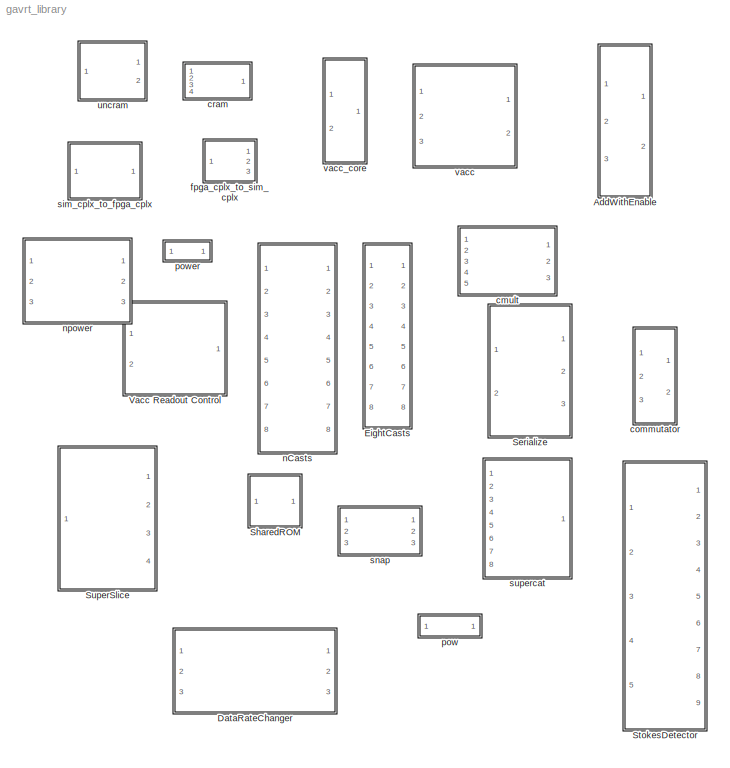
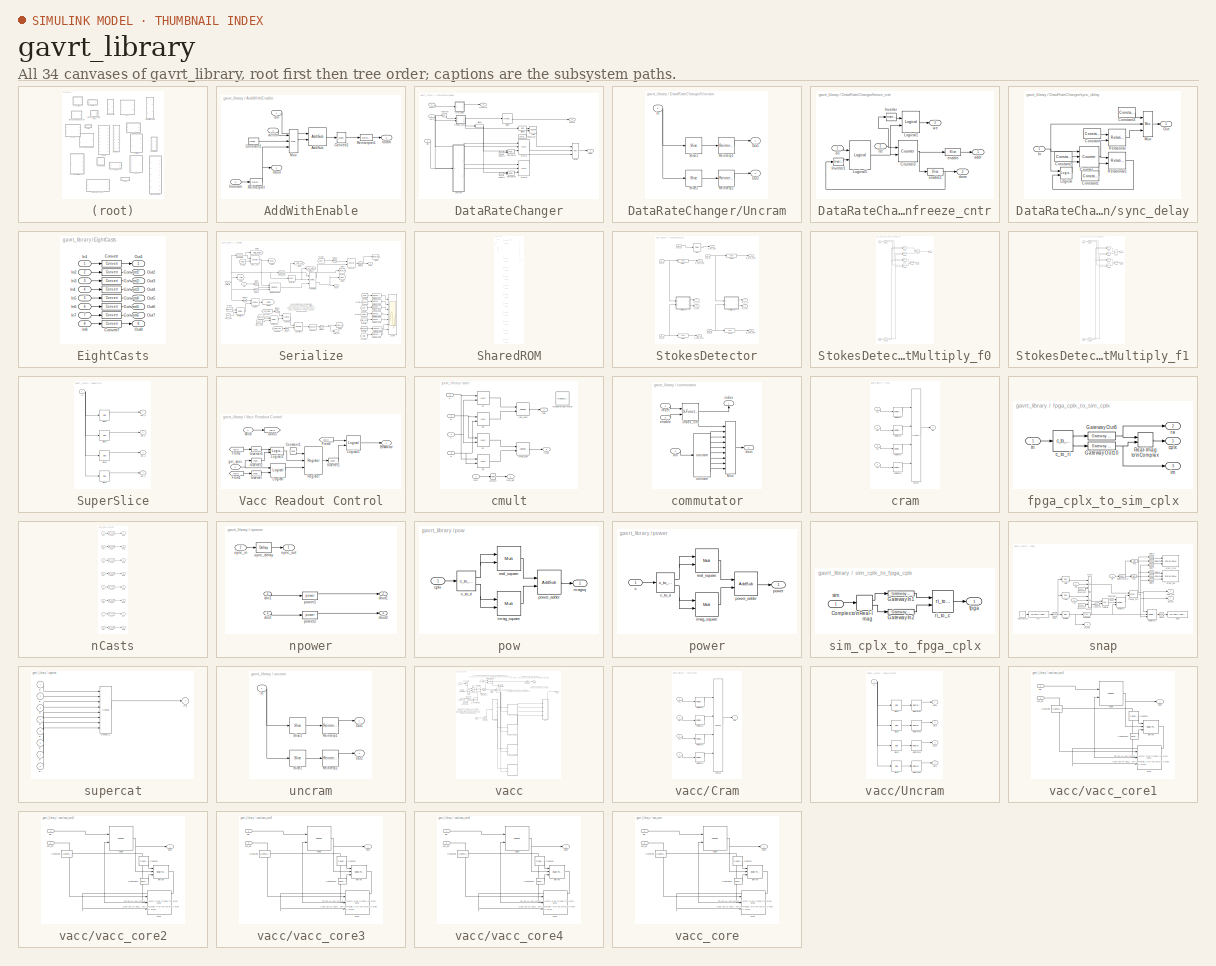
[diagram: thumbnail index - all 34 canvases of the model, root first then tree order]
MODEL gavrt_library
KIND library
BLOCK [SubSystem] AddWithEnable
  MaskCallbackString = ||
  MaskDescription = Adder with enable.\nUsed by the Addressable accumulator addracc.\ntoram = din + accen * fromram  (with latency add_latency)\nrdout is for debugging
  MaskEnableString = on,on,on
  MaskIconFrame = on
  MaskIconOpaque = on
  MaskIconRotate = none
  MaskIconUnits = autoscale
  MaskPromptString = Output bit width|Binary Point|Add Latency
  MaskStyleString = edit,edit,edit
  MaskTabNameString = ,,
  MaskToolTipString = on,on,on
  MaskTunableValueString = on,on,on
  MaskValueString = 18|17|1
  MaskVarAliasString = ,,
  MaskVariables = acc_width=@1;bin_pt=@2;add_latency=@3;
  MaskVisibilityString = on,on,on
  MinAlgLoopOccurrences = off
  Ports = [3, 2]
  RTWSystemCode = Auto
  TreatAsAtomicUnit = off
BLOCK [Reference] AddWithEnable/AddSub  REF=xbsIndex_r3/AddSub
  Ports = [2, 1]
  SourceBlock = xbsIndex_r3/AddSub
  SourceType = Xilinx Adder/Subtractor
  arith_type = Unsigned
  bin_pt = 2
  dbl_ovrd = off
  en = off
  explicit_period = off
  gen_core = off
  latency = add_latency
  mode = Addition
  n_bits = 8
  overflow = Wrap
  period = 1
  pipeline = on
  precision = Full
  quantization = Truncate
  show_param = on
  use_carryin = off
  use_carryout = off
  use_core = on
  use_rpm = on
  xl_area = [0, 0, 0, 0, 0, 0, 0]
  xl_use_area = off
BLOCK [Reference] AddWithEnable/Constant1  REF=xbsIndex_r3/Constant
  Ports = [0, 1]
  SourceBlock = xbsIndex_r3/Constant
  SourceType = Xilinx Constant Block
  arith_type = Signed  (2's comp)
  bin_pt = bin_pt
  carry = CIN
  const = 0
  dbl_ovrd = off
  equ = P=C
  explicit_period = on
  inp1 = P
  inp2 = PCIN>>17
  iostate = 0
  n_bits = acc_width
  opr = +
  opselect = C
  period = 1
BLOCK [Reference] AddWithEnable/Convert2  REF=xbsIndex_r3/Convert
  Ports = [1, 1]
  SourceBlock = xbsIndex_r3/Convert
  SourceType = Xilinx Converter Block
  arith_type = Signed  (2's comp)
  bin_pt = bin_pt
  dbl_ovrd = off
  explicit_period = off
  inserted_by_tool = off
  latency = 0
  n_bits = acc_width
  overflow = Wrap
  period = 1
  pipeline = off
  quantization = Truncate
  show_param = off
  xl_area = [0, 0, 0, 0, 0, 0, 0]
  xl_use_area = off
BLOCK [Reference] AddWithEnable/Mux  REF=xbsIndex_r3/Mux
  Ports = [3, 1]
  SourceBlock = xbsIndex_r3/Mux
  SourceType = Xilinx Multiplexer Block
  arith_type = Signed  (2's comp)
  bin_pt = 2
  dbl_ovrd = off
  en = off
  explicit_period = off
  gen_core = off
  inputs = 2
  latency = 0
  mux_type = off
  n_bits = 8
  overflow = Wrap
  period = 1
  precision = Full
  quantization = Truncate
  show_param = off
  use_rpm = off
  xl_area = [0, 0, 0, 0, 0, 0, 0]
  xl_use_area = off
BLOCK [Reference] AddWithEnable/Reinterpret  REF=xbsIndex_r3/Reinterpret
  Ports = [1, 1]
  SourceBlock = xbsIndex_r3/Reinterpret
  SourceType = Xilinx Type Reinterpreting Block
  arith_type = Signed  (2's comp)
  bin_pt = bin_pt
  force_arith_type = on
  force_bin_pt = on
  force_valid = on
BLOCK [Reference] AddWithEnable/Reinterpret1  REF=xbsIndex_r3/Reinterpret
  Ports = [1, 1]
  SourceBlock = xbsIndex_r3/Reinterpret
  SourceType = Xilinx Type Reinterpreting Block
  arith_type = Unsigned
  bin_pt = 0
  force_arith_type = on
  force_bin_pt = on
  force_valid = on
BLOCK [Inport] AddWithEnable/accen
  IconDisplay = Port number
  LatchInput = off
  Port = 2
BLOCK [Inport] AddWithEnable/din
  IconDisplay = Port number
  LatchInput = off
  Port = 1
BLOCK [Inport] AddWithEnable/fromram
  IconDisplay = Port number
  LatchInput = off
  Port = 3
BLOCK [Outport] AddWithEnable/rdout
  BusOutputAsStruct = off
  IconDisplay = Port number
  Port = 2
BLOCK [Outport] AddWithEnable/toram
  BusOutputAsStruct = off
  IconDisplay = Port number
BLOCK [SubSystem] DataRateChanger
  MaskCallbackString = |||||
  MaskDescription = Stores input data into a FIFO and then outputs the data at the specified data rate, cycling through inputs.\nThus if the input data looks like:\nx0 x1 x2 x3 ...\ny0 y1 y2 y3 ...\nAnd the output rate is 2^-1, the output will look like this:\nx0 x0 y0 y0 x1 x1 y1 y1 x2 x2 y2 y2...\nenIn (enable In) should be high for 2^Input length clocks while the input data is valid.\n*Currently enIn must be high ...<+263ch>
  MaskEnableString = on,on,on,on,on,on
  MaskIconFrame = on
  MaskIconOpaque = on
  MaskIconRotate = none
  MaskIconUnits = autoscale
  MaskInitialization = dataratechanger_init(gcb, 'input_length', input_length,...\n    'ninputs', ninputs, ...\n    'out_rate', out_rate,...\n    'in_bit_width', in_bit_width,...\n    'in_bin_pt', in_bin_pt,...\n    'arith_type',arith_type);
  MaskPromptString = Input Length (2^?)|Number of Simultaneous Inputs (2^?)|Output Rate (2^-?)|Input Bit Width|Input Binary Point|Arithmetic Type (0=Unsigned, 1=Signed)
  MaskStyleString = edit,edit,edit,edit,edit,edit
  MaskTabNameString = ,,,,,
  MaskToolTipString = on,on,on,on,on,on
  MaskTunableValueString = on,on,on,on,on,on
  MaskType = dataratechanger
  MaskValueString = 3|1|1|8|0|0
  MaskVarAliasString = ,,,,,
  MaskVariables = input_length=@1;ninputs=@2;out_rate=@3;in_bit_width=@4;in_bin_pt=@5;arith_type=@6;
  MaskVisibilityString = on,on,on,on,on,on
  MinAlgLoopOccurrences = off
  Ports = [3, 3]
  RTWSystemCode = Auto
  TreatAsAtomicUnit = off
  UserData = DataTag0
  UserDataPersistent = on
BLOCK [Reference] DataRateChanger/Add  REF=xbsIndex_r3/AddSub
  Ports = [2, 1]
  SourceBlock = xbsIndex_r3/AddSub
  SourceType = Xilinx Adder/Subtractor
  arith_type = Unsigned
  bin_pt = 0
  dbl_ovrd = off
  en = off
  explicit_period = off
  gen_core = off
  latency = 0
  mode = Addition
  n_bits = 1
  overflow = Wrap
  period = 1
  pipeline = off
  precision = User Defined
  quantization = Truncate
  show_param = off
  use_carryin = off
  use_carryout = off
  use_core = on
  use_rpm = on
  xl_area = [0, 0, 0, 0, 0, 0, 0]
  xl_use_area = off
BLOCK [Reference] DataRateChanger/Compare1  REF=xbsIndex_r3/Relational
  Ports = [2, 1]
  SourceBlock = xbsIndex_r3/Relational
  SourceType = Xilinx Relational Block
  dbl_ovrd = off
  en = off
  explicit_period = off
  latency = 0
  mode = a=b
  period = 1
  show_param = off
  xl_area = [0, 0, 0, 0, 0, 0, 0]
  xl_use_area = off
BLOCK [Reference] DataRateChanger/Compare2  REF=xbsIndex_r3/Relational
  Ports = [2, 1]
  SourceBlock = xbsIndex_r3/Relational
  SourceType = Xilinx Relational Block
  dbl_ovrd = off
  en = off
  explicit_period = off
  latency = 0
  mode = a=b
  period = 1
  show_param = off
  xl_area = [0, 0, 0, 0, 0, 0, 0]
  xl_use_area = off
BLOCK [Reference] DataRateChanger/ConsOne  REF=xbsIndex_r3/Constant
  Ports = [0, 1]
  SourceBlock = xbsIndex_r3/Constant
  SourceType = Xilinx Constant Block
  arith_type = Unsigned
  bin_pt = 0
  carry = CIN
  const = 1
  dbl_ovrd = off
  equ = P=C
  explicit_period = off
  inp1 = P
  inp2 = PCIN>>17
  iostate = 0
  n_bits = 1
  opr = +
  opselect = C
  period = 1
BLOCK [Reference] DataRateChanger/Const1  REF=xbsIndex_r3/Constant
  Ports = [0, 1]
  SourceBlock = xbsIndex_r3/Constant
  SourceType = Xilinx Constant Block
  arith_type = Unsigned
  bin_pt = 0
  carry = CIN
  const = 1
  dbl_ovrd = off
  equ = P=C
  explicit_period = off
  inp1 = P
  inp2 = PCIN>>17
  iostate = 0
  n_bits = 2
  opr = +
  opselect = C
  period = 1
BLOCK [Reference] DataRateChanger/Const2  REF=xbsIndex_r3/Constant
  Ports = [0, 1]
  SourceBlock = xbsIndex_r3/Constant
  SourceType = Xilinx Constant Block
  arith_type = Unsigned
  bin_pt = 0
  carry = CIN
  const = 3
  dbl_ovrd = off
  equ = P=C
  explicit_period = off
  inp1 = P
  inp2 = PCIN>>17
  iostate = 0
  n_bits = 2
  opr = +
  opselect = C
  period = 1
BLOCK [S-Function] DataRateChanger/Delay
  AncestorBlock = xbsIndex_r3/Delay
  FunctionName = xldelay
  MaskCallbackString = ||xlMagicCallback||||||xlShowIPCallback||
  MaskDescription = Delay line having  configurable length.\n\nHardware notes: A delay line is a chain, each link of which is an SRL16 followed by a flip-flop. If register retiming is enabled, the delay line is a chain of flip-flops.
  MaskDisplay = patch([0 iWidth iWidth 0],[0 0 iHeight iHeight] , bg);\npatch(logoX,logoY , fg);\ntext(iCx-6,iCy,'z');\ntext(iCx,iCy+4,str);\nport_label('input',enPortNum,enPortStr);\n;plot([0 0 iWidth iWidth 0], [0 iHeight iHeight 0 0]);\n
  MaskEnableString = on,on,on,on,on,on,on,on,on,on,on
  MaskHelp = eval('xlWeb(xlhtmldoclink(''Delay''))');
  MaskIconFrame = off
  MaskIconOpaque = on
  MaskIconRotate = none
  MaskIconUnits = autoscale
  MaskInitialization = rst = 0;\n[enPortNum,enPortStr,rstPortNum,rstPortStr] = xlport_en_rst(en,rst,2);\nstr = sprintf('-%d',latency);\n[designRoot, family, part, speed, package, simulinkPeriod, sysclkPeriod, dbl_ovrd, trimVbit] = xlSysgenSettings(gcb,1,1);\n[bg,fg] = xlcmap('XBlock',dbl_ovrd);\niPos = get_param(gcb,'Position');\niWidth=iPos(3)-iPos(1); iHeight=iPos(4)-iPos(2);\niCx=iWidth/2;\niCy=iHeight/2;\n[logoX, lo...<+316ch>
  MaskPromptString = Latency|Enable Register Retiming|Use Explicit Sample Period|Sample Period  (use -1 to inherit first known input period)|Provide Enable Port|Shift In Only Valid Data|Initialize with Zeros (otherwise Invalid)|Override with Doubles|---------------------- Show Implementation Parameters -----------------------------------------------------------------------------------|FPGA Area [Slices, FFs, BRAMs, LU...<+58ch>
  MaskSelfModifiable = on
  MaskStyleString = edit,checkbox,checkbox,edit,checkbox,checkbox,checkbox,checkbox,checkbox,edit,checkbox
  MaskTabNameString = ,,,,,,,,,,
  MaskToolTipString = on,on,on,on,on,on,on,on,on,on,on
  MaskTunableValueString = off,off,off,off,off,off,off,off,off,on,on
  MaskType = Xilinx Delay Block
  MaskValueString = 3|off|off|1|off|off|on|off|off|[0, 0, 0, 0, 0, 0, 0]|off
  MaskVarAliasString = ,,,,,,,,,,
  MaskVariables = latency=@1;reg_retiming=@2;explicit_period=@3;period=@4;en=@5;accept_only_valid=@6;init_zero=@7;dbl_ovrd=@8;show_param=@9;xl_area=@10;xl_use_area=@11;
  MaskVisibilityString = on,on,on,off,on,off,off,on,on,off,off
  Parameters = sfcn_mwsv__
  Ports = [1, 1]
BLOCK [Reference] DataRateChanger/FIFO1  REF=xbsIndex_r3/FIFO
  Ports = [3, 4]
  SourceBlock = xbsIndex_r3/FIFO
  SourceType = Xilinx Synchronous FIFO
  almost_empty_offset = 6
  almost_full_offset = 6
  dbl_ovrd = off
  depth = 16
  en = off
  explicit_period = off
  gen_core = off
  init_zero = on
  mem_type = Block RAM
  percent_nbits = 1
  period = 1
  rst = off
  show_param = off
  store_only_valid = on
  use_almost_empty = off
  use_almost_full = off
  xl_area = [0, 0, 0, 0, 0, 0, 0]
  xl_use_area = off
BLOCK [Reference] DataRateChanger/FIFO2  REF=xbsIndex_r3/FIFO
  Ports = [3, 4]
  SourceBlock = xbsIndex_r3/FIFO
  SourceType = Xilinx Synchronous FIFO
  almost_empty_offset = 6
  almost_full_offset = 6
  dbl_ovrd = off
  depth = 16
  en = off
  explicit_period = off
  gen_core = off
  init_zero = on
  mem_type = Block RAM
  percent_nbits = 1
  period = 1
  rst = off
  show_param = off
  store_only_valid = on
  use_almost_empty = off
  use_almost_full = off
  xl_area = [0, 0, 0, 0, 0, 0, 0]
  xl_use_area = off
BLOCK [Reference] DataRateChanger/Inverter  REF=xbsIndex_r3/Inverter
  Ports = [1, 1]
  SourceBlock = xbsIndex_r3/Inverter
  SourceType = Xilinx Inverter
  dbl_ovrd = off
  en = off
  explicit_period = off
  latency = 0
  period = 1
  show_param = off
  xl_area = [0, 0, 0, 0, 0, 0, 0]
  xl_use_area = off
BLOCK [Reference] DataRateChanger/Mux  REF=xbsIndex_r3/Mux
  Ports = [3, 1]
  SourceBlock = xbsIndex_r3/Mux
  SourceType = Xilinx Multiplexer Block
  arith_type = Signed  (2's comp)
  bin_pt = 2
  dbl_ovrd = off
  en = off
  explicit_period = off
  gen_core = off
  inputs = 2
  latency = 1
  mux_type = off
  n_bits = 8
  overflow = Wrap
  period = 1
  precision = Full
  quantization = Truncate
  show_param = off
  use_rpm = off
  xl_area = [0, 0, 0, 0, 0, 0, 0]
  xl_use_area = off
BLOCK [S-Function] DataRateChanger/Slice1
  AncestorBlock = xbsIndex_r3/Slice
  FunctionName = xlslice
  MaskCallbackString = xlslice_callback|||||||xlMagicCallback||
  MaskDescription = Bit slice extractor.  Extracts a given range of bits from each input sample and presents it at the output.  The output type is ordinarily unsigned with binary point at zero, but can be Boolean when the slice is one bit wide.\n\nHardware notes: In hardware this block costs nothing.
  MaskDisplay = patch([0 iWidth iWidth 0],[0 0 iHeight iHeight] , bg);\npatch(logoX,logoY , fg);\nport_label('output',1,'[a:b]');\n\n;plot([0 0 iWidth iWidth 0], [0 iHeight iHeight 0 0]);\n
  MaskEnableString = on,on,on,on,on,on,on,on,on,on
  MaskHelp = eval('xlWeb(xlhtmldoclink(''Slice''))');
  MaskIconFrame = off
  MaskIconOpaque = off
  MaskIconRotate = port
  MaskIconUnits = autoscale
  MaskInitialization = [designRoot, family, part, speed, package, simulinkPeriod, sysclkPeriod, dbl_ovrd, trimVbit] = xlSysgenSettings(gcb,1,1);\ndbl_ovrdStr = '';\n[bg,fg]=xlcmap('XBlock',dbl_ovrd);\niPos = get_param(gcb,'Position');\niWidth=iPos(3)-iPos(1); iHeight=iPos(4)-iPos(2);\niCx=iWidth/2;\niCy=iHeight/2;\n[logoX, logoY] = xlogo(iPos);\n\n\n% one time added for param list\nbo = boolean_output;\ndblOvrd = dbl_ov...<+169ch>
  MaskPromptString = Specify Range As|Width of Slice (number of bits)|Offset of Top Bit|Relative To|Offset of Bottom Bit|Relative To|Boolean Output|Use Explicit Sample Period|Sample Period|Override with Doubles
  MaskStyleString = popup(Two Bit Locations|Upper Bit Location + Width|Lower Bit Location + Width),edit,edit,popup(LSB of Input|Binary Point of Input|MSB of Input),edit,popup(LSB of Input|Binary Point of Input|MSB of Input),checkbox,checkbox,edit,checkbox
  MaskTabNameString = ,,,,,,,,,
  MaskToolTipString = on,on,on,on,on,on,on,on,on,on
  MaskTunableValueString = off,off,off,off,off,off,off,off,off,off
  MaskType = Xilinx Slice Block
  MaskValueString = Lower Bit Location + Width|2|-3|MSB of Input|0|LSB of Input|off|off|1|off
  MaskVarAliasString = ,,,,,,,,,
  MaskVariables = mode=@1;nbits=@2;bit1=@3;base1=@4;bit0=@5;base0=@6;boolean_output=@7;explicit_period=@8;period=@9;dbl_ovrd=@10;
  MaskVisibilityString = on,on,off,off,on,on,on,on,off,on
  Parameters = sfcn_mwsv__
  Ports = [1, 1]
BLOCK [Reference] DataRateChanger/Slice2  REF=xbsIndex_r3/Slice
  Ports = [1, 1]
  SourceBlock = xbsIndex_r3/Slice
  SourceType = Xilinx Slice Block
  base0 = LSB of Input
  base1 = MSB of Input
  bit0 = 1
  bit1 = 0
  boolean_output = off
  dbl_ovrd = off
  explicit_period = off
  mode = Lower Bit Location + Width
  nbits = 1
  period = 1
BLOCK [SubSystem] DataRateChanger/Uncram
  AncestorBlock = gavrt_library/uncram
  AttributesFormatString = UFix_8_0
  MaskCallbackString = |||
  MaskDescription = Takes a concatenated input and slices it up into even pieces and reinterprets them as signed fixed point numbers with a given binary point.
  MaskEnableString = on,on,on,on
  MaskIconFrame = on
  MaskIconOpaque = on
  MaskIconRotate = none
  MaskIconUnits = autoscale
  MaskInitialization = uncram_init(gcb, ...\n    'num_slice', num_slice, ...\n    'slice_width', slice_width, ...\n    'bin_pt', bin_pt, ...\n    'arith_type', arith_type);
  MaskPromptString = Number of slices|Slice Width|Output Binary Point|Output Arithmetic Type (0=Unsigned, 1=Signed)
  MaskSelfModifiable = on
  MaskStyleString = edit,edit,edit,edit
  MaskTabNameString = ,,,
  MaskToolTipString = on,on,on,on
  MaskTunableValueString = on,on,on,on
  MaskType = uncram
  MaskValueString = 2|8|0|0
  MaskVarAliasString = ,,,
  MaskVariables = num_slice=@1;slice_width=@2;bin_pt=@3;arith_type=@4;
  MaskVisibilityString = on,on,on,on
  MinAlgLoopOccurrences = off
  Ports = [1, 2]
  RTWSystemCode = Auto
  TreatAsAtomicUnit = off
  UserData = DataTag1
  UserDataPersistent = on
BLOCK [Inport] DataRateChanger/Uncram/In
  IconDisplay = Port number
  LatchInput = off
  Port = 1
BLOCK [Outport] DataRateChanger/Uncram/Out1
  BusOutputAsStruct = off
  IconDisplay = Port number
BLOCK [Outport] DataRateChanger/Uncram/Out2
  BusOutputAsStruct = off
  IconDisplay = Port number
  Port = 2
BLOCK [Reference] DataRateChanger/Uncram/Reinterp1  REF=xbsIndex_r3/Reinterpret
  Ports = [1, 1]
  SourceBlock = xbsIndex_r3/Reinterpret
  SourceType = Xilinx Type Reinterpreting Block
  arith_type = Unsigned
  bin_pt = 0
  force_arith_type = on
  force_bin_pt = on
  force_valid = on
BLOCK [Reference] DataRateChanger/Uncram/Reinterp2  REF=xbsIndex_r3/Reinterpret
  Ports = [1, 1]
  SourceBlock = xbsIndex_r3/Reinterpret
  SourceType = Xilinx Type Reinterpreting Block
  arith_type = Unsigned
  bin_pt = 0
  force_arith_type = on
  force_bin_pt = on
  force_valid = on
BLOCK [Reference] DataRateChanger/Uncram/Slice1  REF=xbsIndex_r3/Slice
  Ports = [1, 1]
  SourceBlock = xbsIndex_r3/Slice
  SourceType = Xilinx Slice Block
  base0 = LSB of Input
  base1 = MSB of Input
  bit0 = 0
  bit1 = 0
  boolean_output = off
  dbl_ovrd = off
  explicit_period = off
  mode = Upper Bit Location + Width
  nbits = 8
  period = 1
BLOCK [Reference] DataRateChanger/Uncram/Slice2  REF=xbsIndex_r3/Slice
  Ports = [1, 1]
  SourceBlock = xbsIndex_r3/Slice
  SourceType = Xilinx Slice Block
  base0 = LSB of Input
  base1 = MSB of Input
  bit0 = 0
  bit1 = -8
  boolean_output = off
  dbl_ovrd = off
  explicit_period = off
  mode = Upper Bit Location + Width
  nbits = 8
  period = 1
BLOCK [Inport] DataRateChanger/din
  IconDisplay = Port number
  LatchInput = off
  Port = 3
BLOCK [Outport] DataRateChanger/dout
  BusOutputAsStruct = off
  IconDisplay = Port number
  Port = 3
BLOCK [Inport] DataRateChanger/enIn
  IconDisplay = Port number
  LatchInput = off
  Port = 2
BLOCK [Outport] DataRateChanger/enOut
  BusOutputAsStruct = off
  IconDisplay = Port number
  Port = 2
BLOCK [SubSystem] DataRateChanger/freeze_cntr
  AncestorBlock = casper_library/Misc/freeze_cntr
  MaskDescription = A freeze counter is an enabled counter which holds its final value (regardless of enables)\nuntil it is reset.
  MaskEnableString = on
  MaskHelp = eval('xlWeb([getenv(''MLIB_ROOT''), ''<path>''])')
  MaskIconFrame = on
  MaskIconOpaque = on
  MaskIconRotate = none
  MaskIconUnits = autoscale
  MaskPromptString = Counter Length (2^?)
  MaskStyleString = edit
  MaskToolTipString = on
  MaskTunableValueString = on
  MaskType = freeze_cntr
  MaskValueString = 5
  MaskVariables = CounterBits=@1;
  MaskVisibilityString = on
  MinAlgLoopOccurrences = off
  Ports = [2, 3]
  RTWSystemCode = Auto
  TreatAsAtomicUnit = off
BLOCK [Reference] DataRateChanger/freeze_cntr/Counter3  REF=xbsIndex_r3/Counter
  Ports = [2, 1]
  SourceBlock = xbsIndex_r3/Counter
  SourceType = Xilinx Counter Block
  arith_type = Unsigned
  bin_pt = 0
  cnt_by_val = 1
  cnt_to = 1023
  cnt_type = Free Running
  dbl_ovrd = off
  en = on
  explicit_period = on
  gen_core = off
  load_pin = off
  n_bits = CounterBits + 1
  operation = Up
  period = 1
  rst = on
  show_param = off
  start_count = 0
  use_rpm = on
  xl_area = [0, 0, 0, 0, 0, 0, 0]
  xl_use_area = off
BLOCK [Reference] DataRateChanger/freeze_cntr/Inverter  REF=xbsIndex_r3/Inverter
  Ports = [1, 1]
  SourceBlock = xbsIndex_r3/Inverter
  SourceType = Xilinx Inverter
  dbl_ovrd = off
  en = off
  explicit_period = off
  latency = 0
  period = 1
  show_param = off
  xl_area = [0, 0, 0, 0, 0, 0, 0]
  xl_use_area = off
BLOCK [Reference] DataRateChanger/freeze_cntr/Inverter1  REF=xbsIndex_r3/Inverter
  Ports = [1, 1]
  SourceBlock = xbsIndex_r3/Inverter
  SourceType = Xilinx Inverter
  dbl_ovrd = off
  en = off
  explicit_period = off
  latency = 0
  period = 1
  show_param = off
  xl_area = [0, 0, 0, 0, 0, 0, 0]
  xl_use_area = off
BLOCK [Reference] DataRateChanger/freeze_cntr/Logical1  REF=xbsIndex_r3/Logical
  Ports = [2, 1]
  SourceBlock = xbsIndex_r3/Logical
  SourceType = Xilinx Logical Block
  align_bp = on
  arith_type = Unsigned
  bin_pt = 2
  dbl_ovrd = off
  en = off
  explicit_period = off
  inputs = 2
  latency = 0
  logical_function = AND
  n_bits = 8
  period = 1
  precision = Full
  show_param = off
  xl_area = [0, 0, 0, 0, 0, 0, 0]
  xl_use_area = off
BLOCK [Reference] DataRateChanger/freeze_cntr/Logical5  REF=xbsIndex_r3/Logical
  Ports = [2, 1]
  SourceBlock = xbsIndex_r3/Logical
  SourceType = Xilinx Logical Block
  align_bp = on
  arith_type = Unsigned
  bin_pt = 2
  dbl_ovrd = off
  en = off
  explicit_period = off
  inputs = 2
  latency = 0
  logical_function = AND
  n_bits = 8
  period = 1
  precision = Full
  show_param = off
  xl_area = [0, 0, 0, 0, 0, 0, 0]
  xl_use_area = off
BLOCK [Outport] DataRateChanger/freeze_cntr/addr
  BusOutputAsStruct = off
  IconDisplay = Port number
BLOCK [Outport] DataRateChanger/freeze_cntr/done
  BusOutputAsStruct = off
  IconDisplay = Port number
  Port = 3
BLOCK [Inport] DataRateChanger/freeze_cntr/en
  IconDisplay = Port number
  LatchInput = off
  Port = 1
BLOCK [Reference] DataRateChanger/freeze_cntr/enable  REF=xbsIndex_r3/Slice
  Ports = [1, 1]
  SourceBlock = xbsIndex_r3/Slice
  SourceType = Xilinx Slice Block
  base0 = LSB of Input
  base1 = LSB of Input
  bit0 = 0
  bit1 = 0
  boolean_output = off
  dbl_ovrd = off
  explicit_period = off
  mode = Lower Bit Location + Width
  nbits = CounterBits
  period = 1
BLOCK [Reference] DataRateChanger/freeze_cntr/enable1  REF=xbsIndex_r3/Slice
  Ports = [1, 1]
  SourceBlock = xbsIndex_r3/Slice
  SourceType = Xilinx Slice Block
  base0 = LSB of Input
  base1 = MSB of Input
  bit0 = 0
  bit1 = 0
  boolean_output = on
  dbl_ovrd = off
  explicit_period = off
  mode = Upper Bit Location + Width
  nbits = 1
  period = 1
BLOCK [Inport] DataRateChanger/freeze_cntr/rst
  IconDisplay = Port number
  LatchInput = off
  Port = 2
BLOCK [Outport] DataRateChanger/freeze_cntr/we
  BusOutputAsStruct = off
  IconDisplay = Port number
  Port = 2
BLOCK [Inport] DataRateChanger/syncIn
  IconDisplay = Port number
  LatchInput = off
  Port = 1
BLOCK [Outport] DataRateChanger/syncOut
  BusOutputAsStruct = off
  IconDisplay = Port number
BLOCK [SubSystem] DataRateChanger/sync_delay
  AncestorBlock = casper_library/Delays/sync_delay
  MaskDescription = Delay an infrequent boolean pulse by the specified number of clocks.
  MaskDisplay = fprintf('Z^-%d', DelayLen)
  MaskEnableString = on
  MaskHelp = eval('xlWeb([getenv(''MLIB_ROOT''), ''<path>''])')
  MaskIconFrame = on
  MaskIconOpaque = on
  MaskIconRotate = none
  MaskIconUnits = autoscale
  MaskInitialization = BitWidth = max(2, ceil(log2(DelayLen+1)));\nUseCounter = 1;\nif DelayLen == 0,\n	UseCounter = 0;\nend
  MaskPromptString = Delay Length:
  MaskSelfModifiable = on
  MaskStyleString = edit
  MaskToolTipString = on
  MaskTunableValueString = on
  MaskType = sync_delay
  MaskValueString = 11
  MaskVariables = DelayLen=@1;
  MaskVisibilityString = on
  MinAlgLoopOccurrences = off
  Ports = [1, 1]
  RTWSystemCode = Auto
  TreatAsAtomicUnit = off
BLOCK [Reference] DataRateChanger/sync_delay/Constant  REF=xbsIndex_r3/Constant
  Ports = [0, 1]
  SourceBlock = xbsIndex_r3/Constant
  SourceType = Xilinx Constant Block
  arith_type = Unsigned
  bin_pt = 0
  carry = CIN
  const = 1
  dbl_ovrd = off
  equ = P=C
  explicit_period = on
  inp1 = P
  inp2 = PCIN>>17
  iostate = 0
  n_bits = BitWidth
  opr = +
  opselect = C
  period = 1
BLOCK [Reference] DataRateChanger/sync_delay/Constant1  REF=xbsIndex_r3/Constant
  Ports = [0, 1]
  SourceBlock = xbsIndex_r3/Constant
  SourceType = Xilinx Constant Block
  arith_type = Unsigned
  bin_pt = 0
  carry = CIN
  const = 0
  dbl_ovrd = off
  equ = P=C
  explicit_period = on
  inp1 = P
  inp2 = PCIN>>17
  iostate = 0
  n_bits = BitWidth
  opr = +
  opselect = C
  period = 1
BLOCK [Reference] DataRateChanger/sync_delay/Constant2  REF=xbsIndex_r3/Constant
  Ports = [0, 1]
  SourceBlock = xbsIndex_r3/Constant
  SourceType = Xilinx Constant Block
  arith_type = Unsigned
  bin_pt = 0
  carry = CIN
  const = DelayLen
  dbl_ovrd = off
  equ = P=C
  explicit_period = on
  inp1 = P
  inp2 = PCIN>>17
  iostate = 0
  n_bits = BitWidth
  opr = +
  opselect = C
  period = 1
BLOCK [Reference] DataRateChanger/sync_delay/Constant3  REF=xbsIndex_r3/Constant
  Ports = [0, 1]
  SourceBlock = xbsIndex_r3/Constant
  SourceType = Xilinx Constant Block
  arith_type = Unsigned
  bin_pt = 0
  carry = CIN
  const = UseCounter
  dbl_ovrd = off
  equ = P=C
  explicit_period = on
  inp1 = P
  inp2 = PCIN>>17
  iostate = 0
  n_bits = 1
  opr = +
  opselect = C
  period = 1
BLOCK [Reference] DataRateChanger/sync_delay/Counter  REF=xbsIndex_r3/Counter
  Ports = [3, 1]
  SourceBlock = xbsIndex_r3/Counter
  SourceType = Xilinx Counter Block
  arith_type = Unsigned
  bin_pt = 0
  cnt_by_val = 1
  cnt_to = Inf
  cnt_type = Free Running
  dbl_ovrd = off
  en = on
  explicit_period = on
  gen_core = off
  load_pin = on
  n_bits = BitWidth
  operation = Down
  period = 1
  rst = off
  show_param = off
  start_count = 0
  use_rpm = on
  xl_area = [0, 0, 0, 0, 0, 0, 0]
  xl_use_area = off
BLOCK [Inport] DataRateChanger/sync_delay/In
  IconDisplay = Port number
  LatchInput = off
  Port = 1
BLOCK [Reference] DataRateChanger/sync_delay/Logical  REF=xbsIndex_r3/Logical
  Ports = [2, 1]
  SourceBlock = xbsIndex_r3/Logical
  SourceType = Xilinx Logical Block
  align_bp = on
  arith_type = Unsigned
  bin_pt = 2
  dbl_ovrd = off
  en = off
  explicit_period = on
  inputs = 2
  latency = 0
  logical_function = OR
  n_bits = 8
  period = 1
  precision = Full
  show_param = off
  xl_area = [0, 0, 0, 0, 0, 0, 0]
  xl_use_area = off
BLOCK [Reference] DataRateChanger/sync_delay/Mux  REF=xbsIndex_r3/Mux
  Ports = [3, 1]
  SourceBlock = xbsIndex_r3/Mux
  SourceType = Xilinx Multiplexer Block
  arith_type = Signed  (2's comp)
  bin_pt = 2
  dbl_ovrd = off
  en = off
  explicit_period = off
  gen_core = off
  inputs = 2
  latency = 0
  mux_type = off
  n_bits = 8
  overflow = Wrap
  period = 1
  precision = Full
  quantization = Truncate
  show_param = off
  use_rpm = off
  xl_area = [0, 0, 0, 0, 0, 0, 0]
  xl_use_area = off
BLOCK [Outport] DataRateChanger/sync_delay/Out
  BusOutputAsStruct = off
  IconDisplay = Port number
BLOCK [Reference] DataRateChanger/sync_delay/Relational  REF=xbsIndex_r3/Relational
  Ports = [2, 1]
  SourceBlock = xbsIndex_r3/Relational
  SourceType = Xilinx Relational Block
  dbl_ovrd = off
  en = off
  explicit_period = off
  latency = 0
  mode = a=b
  period = 1
  show_param = off
  xl_area = [0, 0, 0, 0, 0, 0, 0]
  xl_use_area = off
BLOCK [Reference] DataRateChanger/sync_delay/Relational1  REF=xbsIndex_r3/Relational
  Ports = [2, 1]
  SourceBlock = xbsIndex_r3/Relational
  SourceType = Xilinx Relational Block
  dbl_ovrd = off
  en = off
  explicit_period = on
  latency = 0
  mode = a!=b
  period = 1
  show_param = off
  xl_area = [0, 0, 0, 0, 0, 0, 0]
  xl_use_area = off
BLOCK [SubSystem] EightCasts
  MaskCallbackString = |
  MaskDescription = Eight casts to quickly connect ADC to FFT
  MaskEnableString = on,on
  MaskIconFrame = on
  MaskIconOpaque = on
  MaskIconRotate = none
  MaskIconUnits = autoscale
  MaskPromptString = Number of bits|Binary Point
  MaskStyleString = edit,edit
  MaskTabNameString = ,
  MaskToolTipString = on,on
  MaskTunableValueString = on,on
  MaskValueString = 0|0
  MaskVarAliasString = ,
  MaskVariables = nbits=@1;bin_pt=@2;
  MaskVisibilityString = on,on
  MinAlgLoopOccurrences = off
  Ports = [8, 8]
  RTWSystemCode = Auto
  TreatAsAtomicUnit = off
BLOCK [Reference] EightCasts/Convert  REF=xbsIndex_r3/Convert
  Ports = [1, 1]
  SourceBlock = xbsIndex_r3/Convert
  SourceType = Xilinx Converter Block
  arith_type = Signed  (2's comp)
  bin_pt = bin_pt
  dbl_ovrd = off
  explicit_period = off
  inserted_by_tool = off
  latency = 0
  n_bits = nbits
  overflow = Wrap
  period = 1
  pipeline = off
  quantization = Truncate
  show_param = off
  xl_area = [0, 0, 0, 0, 0, 0, 0]
  xl_use_area = off
BLOCK [Reference] EightCasts/Convert1  REF=xbsIndex_r3/Convert
  Ports = [1, 1]
  SourceBlock = xbsIndex_r3/Convert
  SourceType = Xilinx Converter Block
  arith_type = Signed  (2's comp)
  bin_pt = bin_pt
  dbl_ovrd = off
  explicit_period = off
  inserted_by_tool = off
  latency = 0
  n_bits = nbits
  overflow = Wrap
  period = 1
  pipeline = off
  quantization = Truncate
  show_param = off
  xl_area = [0, 0, 0, 0, 0, 0, 0]
  xl_use_area = off
BLOCK [Reference] EightCasts/Convert2  REF=xbsIndex_r3/Convert
  Ports = [1, 1]
  SourceBlock = xbsIndex_r3/Convert
  SourceType = Xilinx Converter Block
  arith_type = Signed  (2's comp)
  bin_pt = bin_pt
  dbl_ovrd = off
  explicit_period = off
  inserted_by_tool = off
  latency = 0
  n_bits = nbits
  overflow = Wrap
  period = 1
  pipeline = off
  quantization = Truncate
  show_param = off
  xl_area = [0, 0, 0, 0, 0, 0, 0]
  xl_use_area = off
BLOCK [Reference] EightCasts/Convert3  REF=xbsIndex_r3/Convert
  Ports = [1, 1]
  SourceBlock = xbsIndex_r3/Convert
  SourceType = Xilinx Converter Block
  arith_type = Signed  (2's comp)
  bin_pt = bin_pt
  dbl_ovrd = off
  explicit_period = off
  inserted_by_tool = off
  latency = 0
  n_bits = nbits
  overflow = Wrap
  period = 1
  pipeline = off
  quantization = Truncate
  show_param = off
  xl_area = [0, 0, 0, 0, 0, 0, 0]
  xl_use_area = off
BLOCK [Reference] EightCasts/Convert4  REF=xbsIndex_r3/Convert
  Ports = [1, 1]
  SourceBlock = xbsIndex_r3/Convert
  SourceType = Xilinx Converter Block
  arith_type = Signed  (2's comp)
  bin_pt = bin_pt
  dbl_ovrd = off
  explicit_period = off
  inserted_by_tool = off
  latency = 0
  n_bits = nbits
  overflow = Wrap
  period = 1
  pipeline = off
  quantization = Truncate
  show_param = off
  xl_area = [0, 0, 0, 0, 0, 0, 0]
  xl_use_area = off
BLOCK [Reference] EightCasts/Convert5  REF=xbsIndex_r3/Convert
  Ports = [1, 1]
  SourceBlock = xbsIndex_r3/Convert
  SourceType = Xilinx Converter Block
  arith_type = Signed  (2's comp)
  bin_pt = bin_pt
  dbl_ovrd = off
  explicit_period = off
  inserted_by_tool = off
  latency = 0
  n_bits = nbits
  overflow = Wrap
  period = 1
  pipeline = off
  quantization = Truncate
  show_param = off
  xl_area = [0, 0, 0, 0, 0, 0, 0]
  xl_use_area = off
BLOCK [Reference] EightCasts/Convert6  REF=xbsIndex_r3/Convert
  Ports = [1, 1]
  SourceBlock = xbsIndex_r3/Convert
  SourceType = Xilinx Converter Block
  arith_type = Signed  (2's comp)
  bin_pt = bin_pt
  dbl_ovrd = off
  explicit_period = off
  inserted_by_tool = off
  latency = 0
  n_bits = nbits
  overflow = Wrap
  period = 1
  pipeline = off
  quantization = Truncate
  show_param = off
  xl_area = [0, 0, 0, 0, 0, 0, 0]
  xl_use_area = off
BLOCK [Reference] EightCasts/Convert7  REF=xbsIndex_r3/Convert
  Ports = [1, 1]
  SourceBlock = xbsIndex_r3/Convert
  SourceType = Xilinx Converter Block
  arith_type = Signed  (2's comp)
  bin_pt = bin_pt
  dbl_ovrd = off
  explicit_period = off
  inserted_by_tool = off
  latency = 0
  n_bits = nbits
  overflow = Wrap
  period = 1
  pipeline = off
  quantization = Truncate
  show_param = off
  xl_area = [0, 0, 0, 0, 0, 0, 0]
  xl_use_area = off
BLOCK [Inport] EightCasts/In1
  IconDisplay = Port number
  LatchInput = off
  Port = 1
BLOCK [Inport] EightCasts/In2
  IconDisplay = Port number
  LatchInput = off
  Port = 2
BLOCK [Inport] EightCasts/In3
  IconDisplay = Port number
  LatchInput = off
  Port = 3
BLOCK [Inport] EightCasts/In4
  IconDisplay = Port number
  LatchInput = off
  Port = 4
BLOCK [Inport] EightCasts/In5
  IconDisplay = Port number
  LatchInput = off
  Port = 5
BLOCK [Inport] EightCasts/In6
  IconDisplay = Port number
  LatchInput = off
  Port = 6
BLOCK [Inport] EightCasts/In7
  IconDisplay = Port number
  LatchInput = off
  Port = 7
BLOCK [Inport] EightCasts/In8
  IconDisplay = Port number
  LatchInput = off
  Port = 8
BLOCK [Outport] EightCasts/Out1
  BusOutputAsStruct = off
  IconDisplay = Port number
BLOCK [Outport] EightCasts/Out2
  BusOutputAsStruct = off
  IconDisplay = Port number
  Port = 2
BLOCK [Outport] EightCasts/Out3
  BusOutputAsStruct = off
  IconDisplay = Port number
  Port = 3
BLOCK [Outport] EightCasts/Out4
  BusOutputAsStruct = off
  IconDisplay = Port number
  Port = 4
BLOCK [Outport] EightCasts/Out5
  BusOutputAsStruct = off
  IconDisplay = Port number
  Port = 5
BLOCK [Outport] EightCasts/Out6
  BusOutputAsStruct = off
  IconDisplay = Port number
  Port = 6
BLOCK [Outport] EightCasts/Out7
  BusOutputAsStruct = off
  IconDisplay = Port number
  Port = 7
BLOCK [Outport] EightCasts/Out8
  BusOutputAsStruct = off
  IconDisplay = Port number
  Port = 8
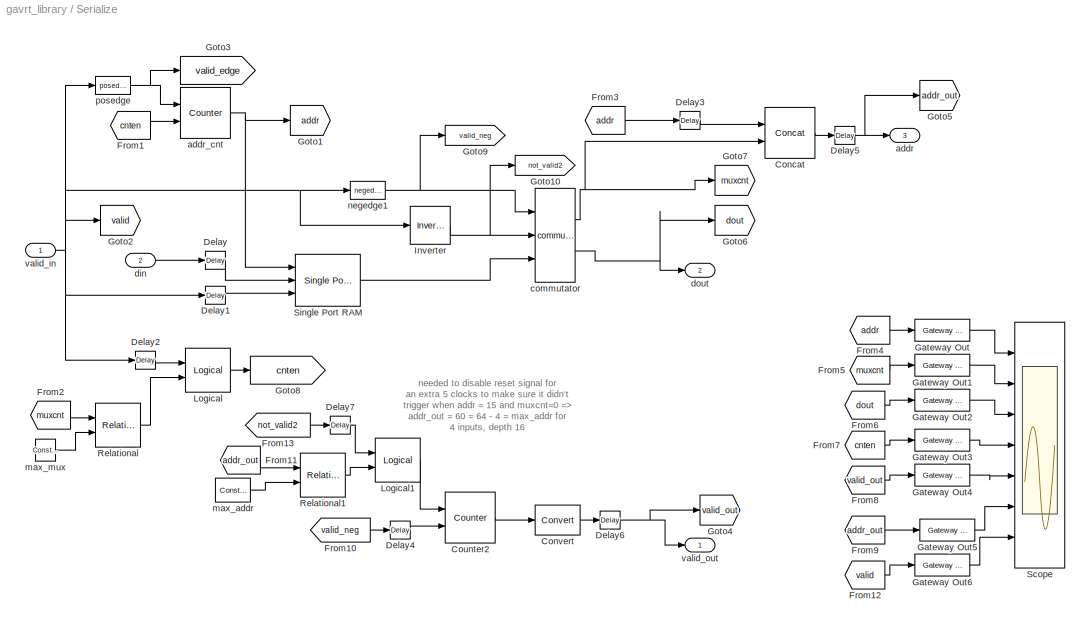
BLOCK [SubSystem] Serialize
  MaskCallbackString = |||
  MaskDescription = Takes concatenated parallel inputs and presents them one by one on dout. Designed to work with the Specacc block directly. valid_in should be high for 'depth' clocks while the data is present on din. After a short delay from when valid_in returns low, valid_out will go high and the first data will be present on dout and addr will be 0. addr increments for each subsequent output data.  dout(0) is t...<+232ch>
  MaskEnableString = on,on,on,on
  MaskIconFrame = on
  MaskIconOpaque = on
  MaskIconRotate = none
  MaskIconUnits = autoscale
  MaskInitialization = serialize_init(gcb, ...\n    'ninputs', ninputs, ...\n    'in_width', in_width, ...\n    'depth', depth, ...\n    'mux_latency', mux_latency);\n
  MaskPromptString = Number of simultaneous inputs|Input data bit width|Depth|Mux Latency
  MaskSelfModifiable = on
  MaskStyleString = edit,edit,edit,edit
  MaskTabNameString = ,,,
  MaskToolTipString = on,on,on,on
  MaskTunableValueString = on,on,on,on
  MaskType = serialize
  MaskValueString = 8|8|32|2
  MaskVarAliasString = ,,,
  MaskVariables = ninputs=@1;in_width=@2;depth=@3;mux_latency=@4;
  MaskVisibilityString = on,on,on,on
  MinAlgLoopOccurrences = off
  Ports = [2, 3]
  RTWSystemCode = Auto
  TreatAsAtomicUnit = off
  UserData = DataTag2
  UserDataPersistent = on
BLOCK [Reference] Serialize/Concat  REF=xbsIndex_r3/Concat
  Ports = [2, 1]
  SourceBlock = xbsIndex_r3/Concat
  SourceType = Xilinx Bus Concatenator
  dbl_ovrd = off
  explicit_period = off
  num_inputs = 2
  period = 1
BLOCK [Reference] Serialize/Convert  REF=xbsIndex_r3/Convert
  Ports = [1, 1]
  SourceBlock = xbsIndex_r3/Convert
  SourceType = Xilinx Converter Block
  arith_type = Boolean
  bin_pt = 6
  dbl_ovrd = off
  explicit_period = off
  inserted_by_tool = off
  latency = 0
  n_bits = 8
  overflow = Wrap
  period = 1
  pipeline = off
  quantization = Truncate
  show_param = off
  xl_area = [0, 0, 0, 0, 0, 0, 0]
  xl_use_area = off
BLOCK [Reference] Serialize/Counter2  REF=xbsIndex_r3/Counter
  Ports = [2, 1]
  SourceBlock = xbsIndex_r3/Counter
  SourceType = Xilinx Counter Block
  arith_type = Unsigned
  bin_pt = 0
  cnt_by_val = 1
  cnt_to = Inf
  cnt_type = Free Running
  dbl_ovrd = off
  en = on
  explicit_period = off
  gen_core = off
  load_pin = off
  n_bits = 1
  operation = Up
  period = 1
  rst = on
  show_param = off
  start_count = 0
  use_rpm = on
  xl_area = [0, 0, 0, 0, 0, 0, 0]
  xl_use_area = off
BLOCK [Reference] Serialize/Delay  REF=xbsIndex_r3/Delay
  Ports = [1, 1]
  SourceBlock = xbsIndex_r3/Delay
  SourceType = Xilinx Delay Block
  accept_only_valid = off
  dbl_ovrd = off
  en = off
  explicit_period = off
  init_zero = on
  latency = 1
  period = 1
  reg_retiming = off
  show_param = off
  xl_area = [0, 0, 0, 0, 0, 0, 0]
  xl_use_area = off
BLOCK [Reference] Serialize/Delay1  REF=xbsIndex_r3/Delay
  Ports = [1, 1]
  SourceBlock = xbsIndex_r3/Delay
  SourceType = Xilinx Delay Block
  accept_only_valid = off
  dbl_ovrd = off
  en = off
  explicit_period = off
  init_zero = on
  latency = 1
  period = 1
  reg_retiming = off
  show_param = off
  xl_area = [0, 0, 0, 0, 0, 0, 0]
  xl_use_area = off
BLOCK [Reference] Serialize/Delay2  REF=xbsIndex_r3/Delay
  Ports = [1, 1]
  SourceBlock = xbsIndex_r3/Delay
  SourceType = Xilinx Delay Block
  accept_only_valid = off
  dbl_ovrd = off
  en = off
  explicit_period = off
  init_zero = on
  latency = 1
  period = 1
  reg_retiming = off
  show_param = off
  xl_area = [0, 0, 0, 0, 0, 0, 0]
  xl_use_area = off
BLOCK [Reference] Serialize/Delay3  REF=xbsIndex_r3/Delay
  Ports = [1, 1]
  SourceBlock = xbsIndex_r3/Delay
  SourceType = Xilinx Delay Block
  accept_only_valid = off
  dbl_ovrd = off
  en = off
  explicit_period = off
  init_zero = on
  latency = 1
  period = 1
  reg_retiming = off
  show_param = off
  xl_area = [0, 0, 0, 0, 0, 0, 0]
  xl_use_area = off
BLOCK [Reference] Serialize/Delay4  REF=xbsIndex_r3/Delay
  Ports = [1, 1]
  SourceBlock = xbsIndex_r3/Delay
  SourceType = Xilinx Delay Block
  accept_only_valid = off
  dbl_ovrd = off
  en = off
  explicit_period = off
  init_zero = on
  latency = 1
  period = 1
  reg_retiming = off
  show_param = off
  xl_area = [0, 0, 0, 0, 0, 0, 0]
  xl_use_area = off
BLOCK [Reference] Serialize/Delay5  REF=xbsIndex_r3/Delay
  Ports = [1, 1]
  SourceBlock = xbsIndex_r3/Delay
  SourceType = Xilinx Delay Block
  accept_only_valid = off
  dbl_ovrd = off
  en = off
  explicit_period = off
  init_zero = on
  latency = 2
  period = 1
  reg_retiming = on
  show_param = off
  xl_area = [0, 0, 0, 0, 0, 0, 0]
  xl_use_area = off
BLOCK [Reference] Serialize/Delay6  REF=xbsIndex_r3/Delay
  Ports = [1, 1]
  SourceBlock = xbsIndex_r3/Delay
  SourceType = Xilinx Delay Block
  accept_only_valid = off
  dbl_ovrd = off
  en = off
  explicit_period = off
  init_zero = on
  latency = 2
  period = 1
  reg_retiming = on
  show_param = off
  xl_area = [0, 0, 0, 0, 0, 0, 0]
  xl_use_area = off
BLOCK [Reference] Serialize/Delay7  REF=xbsIndex_r3/Delay
  Ports = [1, 1]
  SourceBlock = xbsIndex_r3/Delay
  SourceType = Xilinx Delay Block
  accept_only_valid = off
  dbl_ovrd = off
  en = off
  explicit_period = off
  init_zero = on
  latency = 3
  period = 1
  reg_retiming = off
  show_param = off
  xl_area = [0, 0, 0, 0, 0, 0, 0]
  xl_use_area = off
BLOCK [From] Serialize/From1
  CloseFcn = tagdialog Close
  GotoTag = cnten
BLOCK [From] Serialize/From10
  CloseFcn = tagdialog Close
  GotoTag = valid_neg
BLOCK [From] Serialize/From11
  CloseFcn = tagdialog Close
  GotoTag = addr_out
BLOCK [From] Serialize/From12
  CloseFcn = tagdialog Close
  GotoTag = valid
BLOCK [From] Serialize/From13
  CloseFcn = tagdialog Close
  GotoTag = not_valid2
BLOCK [From] Serialize/From2
  CloseFcn = tagdialog Close
  GotoTag = muxcnt
BLOCK [From] Serialize/From3
  CloseFcn = tagdialog Close
  GotoTag = addr
BLOCK [From] Serialize/From4
  CloseFcn = tagdialog Close
  GotoTag = addr
BLOCK [From] Serialize/From5
  CloseFcn = tagdialog Close
  GotoTag = muxcnt
BLOCK [From] Serialize/From6
  CloseFcn = tagdialog Close
  GotoTag = dout
BLOCK [From] Serialize/From7
  CloseFcn = tagdialog Close
  GotoTag = cnten
BLOCK [From] Serialize/From8
  CloseFcn = tagdialog Close
  GotoTag = valid_out
BLOCK [From] Serialize/From9
  CloseFcn = tagdialog Close
  GotoTag = addr_out
BLOCK [Reference] Serialize/Gateway Out  REF=xbsIndex_r3/Gateway Out
  LOCs = {}
  Ports = [1, 1]
  SourceBlock = xbsIndex_r3/Gateway Out
  SourceType = Xilinx Gateway Out
  arith_type = Boolean
  bin_pt = 6
  hdl_port = off
  locs_specified = off
  nbits = 8
  needs_fixed_name = off
  output_type = Double
  overflow = Wrap
  quantization = Truncate
  show_param = off
  timing_constraint = None
  xl_area = [0, 0, 0, 0, 0, 0, 0]
  xl_use_area = off
BLOCK [Reference] Serialize/Gateway Out1  REF=xbsIndex_r3/Gateway Out
  LOCs = {}
  Ports = [1, 1]
  SourceBlock = xbsIndex_r3/Gateway Out
  SourceType = Xilinx Gateway Out
  arith_type = Boolean
  bin_pt = 6
  hdl_port = off
  locs_specified = off
  nbits = 8
  needs_fixed_name = off
  output_type = Double
  overflow = Wrap
  quantization = Truncate
  show_param = off
  timing_constraint = None
  xl_area = [0, 0, 0, 0, 0, 0, 0]
  xl_use_area = off
BLOCK [Reference] Serialize/Gateway Out2  REF=xbsIndex_r3/Gateway Out
  LOCs = {}
  Ports = [1, 1]
  SourceBlock = xbsIndex_r3/Gateway Out
  SourceType = Xilinx Gateway Out
  arith_type = Boolean
  bin_pt = 6
  hdl_port = off
  locs_specified = off
  nbits = 8
  needs_fixed_name = off
  output_type = Double
  overflow = Wrap
  quantization = Truncate
  show_param = off
  timing_constraint = None
  xl_area = [0, 0, 0, 0, 0, 0, 0]
  xl_use_area = off
BLOCK [Reference] Serialize/Gateway Out3  REF=xbsIndex_r3/Gateway Out
  LOCs = {}
  Ports = [1, 1]
  SourceBlock = xbsIndex_r3/Gateway Out
  SourceType = Xilinx Gateway Out
  arith_type = Boolean
  bin_pt = 6
  hdl_port = off
  locs_specified = off
  nbits = 8
  needs_fixed_name = off
  output_type = Double
  overflow = Wrap
  quantization = Truncate
  show_param = off
  timing_constraint = None
  xl_area = [0, 0, 0, 0, 0, 0, 0]
  xl_use_area = off
BLOCK [Reference] Serialize/Gateway Out4  REF=xbsIndex_r3/Gateway Out
  LOCs = {}
  Ports = [1, 1]
  SourceBlock = xbsIndex_r3/Gateway Out
  SourceType = Xilinx Gateway Out
  arith_type = Boolean
  bin_pt = 6
  hdl_port = off
  locs_specified = off
  nbits = 8
  needs_fixed_name = off
  output_type = Double
  overflow = Wrap
  quantization = Truncate
  show_param = off
  timing_constraint = None
  xl_area = [0, 0, 0, 0, 0, 0, 0]
  xl_use_area = off
BLOCK [Reference] Serialize/Gateway Out5  REF=xbsIndex_r3/Gateway Out
  LOCs = {}
  Ports = [1, 1]
  SourceBlock = xbsIndex_r3/Gateway Out
  SourceType = Xilinx Gateway Out
  arith_type = Boolean
  bin_pt = 6
  hdl_port = off
  locs_specified = off
  nbits = 8
  needs_fixed_name = off
  output_type = Double
  overflow = Wrap
  quantization = Truncate
  show_param = off
  timing_constraint = None
  xl_area = [0, 0, 0, 0, 0, 0, 0]
  xl_use_area = off
BLOCK [Reference] Serialize/Gateway Out6  REF=xbsIndex_r3/Gateway Out
  LOCs = {}
  Ports = [1, 1]
  SourceBlock = xbsIndex_r3/Gateway Out
  SourceType = Xilinx Gateway Out
  arith_type = Boolean
  bin_pt = 6
  hdl_port = off
  locs_specified = off
  nbits = 8
  needs_fixed_name = off
  output_type = Double
  overflow = Wrap
  quantization = Truncate
  show_param = off
  timing_constraint = None
  xl_area = [0, 0, 0, 0, 0, 0, 0]
  xl_use_area = off
BLOCK [Goto] Serialize/Goto1
  GotoTag = addr
  TagVisibility = local
BLOCK [Goto] Serialize/Goto10
  GotoTag = not_valid2
  TagVisibility = local
BLOCK [Goto] Serialize/Goto2
  GotoTag = valid
  TagVisibility = local
BLOCK [Goto] Serialize/Goto3
  GotoTag = valid_edge
  TagVisibility = local
BLOCK [Goto] Serialize/Goto4
  GotoTag = valid_out
  TagVisibility = local
BLOCK [Goto] Serialize/Goto5
  GotoTag = addr_out
  TagVisibility = local
BLOCK [Goto] Serialize/Goto6
  GotoTag = dout
  TagVisibility = local
BLOCK [Goto] Serialize/Goto7
  GotoTag = muxcnt
  TagVisibility = local
BLOCK [Goto] Serialize/Goto8
  GotoTag = cnten
  TagVisibility = local
BLOCK [Goto] Serialize/Goto9
  GotoTag = valid_neg
  TagVisibility = local
BLOCK [Reference] Serialize/Inverter  REF=xbsIndex_r3/Inverter
  Ports = [1, 1]
  SourceBlock = xbsIndex_r3/Inverter
  SourceType = Xilinx Inverter
  dbl_ovrd = off
  en = off
  explicit_period = off
  latency = 2
  period = 1
  show_param = off
  xl_area = [0, 0, 0, 0, 0, 0, 0]
  xl_use_area = off
BLOCK [Reference] Serialize/Logical  REF=xbsIndex_r3/Logical
  Ports = [2, 1]
  SourceBlock = xbsIndex_r3/Logical
  SourceType = Xilinx Logical Block
  align_bp = on
  arith_type = Unsigned
  bin_pt = 2
  dbl_ovrd = off
  en = off
  explicit_period = off
  inputs = 2
  latency = 0
  logical_function = OR
  n_bits = 8
  period = 1
  precision = Full
  show_param = off
  xl_area = [0, 0, 0, 0, 0, 0, 0]
  xl_use_area = off
BLOCK [Reference] Serialize/Logical1  REF=xbsIndex_r3/Logical
  Ports = [2, 1]
  SourceBlock = xbsIndex_r3/Logical
  SourceType = Xilinx Logical Block
  align_bp = on
  arith_type = Unsigned
  bin_pt = 2
  dbl_ovrd = off
  en = off
  explicit_period = off
  inputs = 2
  latency = 0
  logical_function = AND
  n_bits = 8
  period = 1
  precision = Full
  show_param = off
  xl_area = [0, 0, 0, 0, 0, 0, 0]
  xl_use_area = off
BLOCK [Reference] Serialize/Relational  REF=xbsIndex_r3/Relational
  Ports = [2, 1]
  SourceBlock = xbsIndex_r3/Relational
  SourceType = Xilinx Relational Block
  dbl_ovrd = off
  en = off
  explicit_period = off
  latency = 1
  mode = a=b
  period = 1
  show_param = off
  xl_area = [0, 0, 0, 0, 0, 0, 0]
  xl_use_area = off
BLOCK [Reference] Serialize/Relational1  REF=xbsIndex_r3/Relational
  Ports = [2, 1]
  SourceBlock = xbsIndex_r3/Relational
  SourceType = Xilinx Relational Block
  dbl_ovrd = off
  en = off
  explicit_period = off
  latency = 1
  mode = a=b
  period = 1
  show_param = off
  xl_area = [0, 0, 0, 0, 0, 0, 0]
  xl_use_area = off
BLOCK [Scope] Serialize/Scope
  DataFormat = StructureWithTime
  NumInputPorts = 7
  Ports = [7]
  TimeRange = 256
  YMax = 5~5~5~5~5~5~5
  YMin = -5~-5~-5~-5~-5~-5~-5
  ZoomMode = xonly
BLOCK [Reference] Serialize/Single Port RAM  REF=xbsIndex_r3/Single Port RAM
  Ports = [3, 1]
  SourceBlock = xbsIndex_r3/Single Port RAM
  SourceType = Xilinx Single Port Random Access Memory
  dbl_ovrd = off
  depth = 32
  distributed_mem = off
  en = off
  explicit_period = off
  gen_core = off
  initVector = sin(pi*(0:15)/16)
  init_reg = 0
  init_zero = on
  latency = 1
  period = 1
  rst = off
  show_param = off
  use_rpm = off
  write_mode = Read After Write
  xl_area = [0, 0, 0, 0, 0, 0, 0]
  xl_use_area = off
BLOCK [Outport] Serialize/addr
  BusOutputAsStruct = off
  IconDisplay = Port number
  Port = 3
BLOCK [Reference] Serialize/addr_cnt  REF=xbsIndex_r3/Counter
  Ports = [2, 1]
  SourceBlock = xbsIndex_r3/Counter
  SourceType = Xilinx Counter Block
  arith_type = Unsigned
  bin_pt = 0
  cnt_by_val = 1
  cnt_to = Inf
  cnt_type = Free Running
  dbl_ovrd = off
  en = on
  explicit_period = off
  gen_core = off
  load_pin = off
  n_bits = 5
  operation = Up
  period = 1
  rst = on
  show_param = off
  start_count = 0
  use_rpm = on
  xl_area = [0, 0, 0, 0, 0, 0, 0]
  xl_use_area = off
BLOCK [Reference] Serialize/commutator  REF=gavrt_library/commutator  (lib defined in mdl_32bd0963308d, mdl_3c21e696b527, +1 more)
  Ports = [3, 2]
  ShowPortLabels = on
  SourceBlock = gavrt_library/commutator
  SourceType = commutator
  UserData = DataTag3
  UserDataPersistent = on
  in_width = 8
  mux_latency = 2
  ninputs = 8
BLOCK [Inport] Serialize/din
  IconDisplay = Port number
  LatchInput = off
  Port = 2
BLOCK [Outport] Serialize/dout
  BusOutputAsStruct = off
  IconDisplay = Port number
  Port = 2
BLOCK [Reference] Serialize/max_addr  REF=xbsIndex_r3/Constant
  Ports = [0, 1]
  SourceBlock = xbsIndex_r3/Constant
  SourceType = Xilinx Constant Block
  arith_type = Unsigned
  bin_pt = 0
  carry = CIN
  const = 252
  dbl_ovrd = off
  equ = P=C
  explicit_period = on
  inp1 = P
  inp2 = PCIN>>17
  iostate = 0
  n_bits = 8
  opr = +
  opselect = C
  period = 1
BLOCK [Reference] Serialize/max_mux  REF=xbsIndex_r3/Constant
  Ports = [0, 1]
  SourceBlock = xbsIndex_r3/Constant
  SourceType = Xilinx Constant Block
  arith_type = Unsigned
  bin_pt = 0
  carry = CIN
  const = 5
  dbl_ovrd = off
  equ = P=C
  explicit_period = on
  inp1 = P
  inp2 = PCIN>>17
  iostate = 0
  n_bits = 3
  opr = +
  opselect = C
  period = 1
BLOCK [Reference] Serialize/negedge1  REF=casper_library/Misc/negedge  (lib defined in mdl_138b2fc3435f, mdl_4ed325b712b3, +2 more)
  Ports = [1, 1]
  ShowPortLabels = on
  SourceBlock = casper_library/Misc/negedge
  SourceType = negedge
  Tag = Rising Edge Detector
BLOCK [Reference] Serialize/posedge  REF=casper_library/Misc/posedge  (lib defined in mdl_138b2fc3435f, mdl_4ed325b712b3, +2 more)
  Ports = [1, 1]
  ShowPortLabels = on
  SourceBlock = casper_library/Misc/posedge
  SourceType = posedge
  Tag = Rising Edge Detector
BLOCK [Inport] Serialize/valid_in
  IconDisplay = Port number
  LatchInput = off
  Port = 1
BLOCK [Outport] Serialize/valid_out
  BusOutputAsStruct = off
  IconDisplay = Port number
BLOCK [SubSystem] SharedROM
  MaskCallbackString = |
  MaskEnableString = on,on
  MaskIconFrame = on
  MaskIconOpaque = on
  MaskIconRotate = none
  MaskIconUnits = autoscale
  MaskInitialization = sharedrom_init(gcb,...\n    'outwidth', outwidth,...\n    'depth', depth);
  MaskPromptString = Output Bit Width|Depth
  MaskStyleString = edit,edit
  MaskTabNameString = ,
  MaskToolTipString = on,on
  MaskTunableValueString = on,on
  MaskType = sharedrom
  MaskValueString = 327|8192
  MaskVarAliasString = ,
  MaskVariables = outwidth=@1;depth=@2;
  MaskVisibilityString = on,on
  MinAlgLoopOccurrences = off
  Ports = [1, 1]
  RTWSystemCode = Auto
  TreatAsAtomicUnit = off
  UserData = DataTag4
  UserDataPersistent = on
BLOCK [Reference] SharedROM/Concat  REF=xbsIndex_r3/Concat
  Ports = [11, 1]
  SourceBlock = xbsIndex_r3/Concat
  SourceType = Xilinx Bus Concatenator
  dbl_ovrd = off
  explicit_period = off
  num_inputs = 11
  period = 1
BLOCK [S-Function] SharedROM/Convert
  AncestorBlock = xbsIndex_r3/Convert
  FunctionName = xlconvert
  MaskCallbackString = xlconvertCallback||||||xlMagicCallback|||xlShowIPCallback||||
  MaskDescription = Type conversion block. The input is presented at the output after quantization and overflow effects.\n\nHardware notes: Additional hardware is used when rounding or saturation is selected and output width is less than the input width.
  MaskDisplay = patch([0 iWidth iWidth 0],[0 0 iHeight iHeight] , bg);\npatch(logoX,logoY , fg);\ntext(zstrx,zstry,zstr);\ntext(zstrx+5,zstry+5,zpstr);\nport_label('output',1,'cast');\nplot([0 0 iWidth iWidth 0], [0 iHeight iHeight 0 0]);\n
  MaskEnableString = on,on,on,on,on,on,on,on,on,on,on,on,on,on
  MaskHelp = eval('xlWeb(xlhtmldoclink(''Convert''))');
  MaskIconFrame = off
  MaskIconOpaque = off
  MaskIconRotate = none
  MaskIconUnits = autoscale
  MaskInitialization = [designRoot, family, part, speed, package, simulinkPeriod, sysclkPeriod, dbl_ovrd, trimVbit] = xlSysgenSettings(gcb,1,1);\nif (arith_type==1)\n  bool = 1;\nelse\n  bool = 0;\n  arith_type = arith_type-1;\nend\nzstr=''; zpstr='';\nif latency > 0\n  zstr = 'z';\n  zpstr = sprintf('-%d', latency);\nend\n[bg,fg] = xlcmap('XBlock',dbl_ovrd);\nif (inserted_by_tool)\n  bg = [1.00 0.50 0.25];\nend\niPos =...<+498ch>
  MaskPromptString = Output Type|Number of Bits|Binary Point|Quantization Behavior|Overflow Behavior|Latency|Use Explicit Sample Period|Sample Period|Override with Doubles|---------------------- Show Implementation Parameters -----------------------------------------------------------------------------------|Hidden Parameter:  inserted_by_tool|      Pipeline to Greatest Extent Possible|FPGA Area [Slices, FFs, BRAMs, L...<+59ch>
  MaskStyleString = popup(Boolean|Unsigned|Signed  (2's comp)),edit,edit,popup(Truncate|Round  (unbiased: +/- Inf)|Round  (unbiased: Even Values)),popup(Wrap|Saturate|Error),edit,checkbox,edit,checkbox,checkbox,checkbox,checkbox,edit,checkbox
  MaskTabNameString = ,,,,,,,,,,,,,
  MaskToolTipString = on,on,on,on,on,on,on,on,on,on,on,on,on,on
  MaskTunableValueString = off,off,off,off,off,off,off,off,off,off,off,off,on,on
  MaskType = Xilinx Converter Block
  MaskValueString = Unsigned|13|0|Truncate|Wrap|0|off|1|off|off|off|off|[0, 0, 0, 0, 0, 0, 0]|off
  MaskVarAliasString = ,,,,,,,,,,,,,
  MaskVariables = arith_type=@1;n_bits=@2;bin_pt=@3;quantization=@4;overflow=@5;latency=@6;explicit_period=@7;period=@8;dbl_ovrd=@9;show_param=@10;inserted_by_tool=@11;pipeline=@12;xl_area=@13;xl_use_area=@14;
  MaskVisibilityString = on,on,on,on,on,on,on,off,on,on,off,off,off,off
  Parameters = sfcn_mwsv__
  Ports = [1, 1]
BLOCK [Reference] SharedROM/SharedROM0  REF=xps_library/Shared BRAM  (lib defined in mdl_00b5cec29cd0, mdl_02ab6ecaa3d1, +5 more)
  Ports = [3, 1]
  ShowPortLabels = on
  SourceBlock = xps_library/Shared BRAM
  SourceType = Unknown
  Tag = xps:bram
  addr_width = 13
  arith_type = Unsigned
  data_bin_pt = 0
  data_width = 32
  init_vals = [1:2^11]
  sample_rate = 1
BLOCK [Reference] SharedROM/SharedROM1  REF=xps_library/Shared BRAM  (lib defined in mdl_00b5cec29cd0, mdl_02ab6ecaa3d1, +5 more)
  Ports = [3, 1]
  ShowPortLabels = on
  SourceBlock = xps_library/Shared BRAM
  SourceType = Unknown
  Tag = xps:bram
  addr_width = 13
  arith_type = Unsigned
  data_bin_pt = 0
  data_width = 32
  init_vals = [1:2^11]
  sample_rate = 1
BLOCK [Reference] SharedROM/SharedROM10  REF=xps_library/Shared BRAM  (lib defined in mdl_00b5cec29cd0, mdl_02ab6ecaa3d1, +5 more)
  Ports = [3, 1]
  ShowPortLabels = on
  SourceBlock = xps_library/Shared BRAM
  SourceType = Unknown
  Tag = xps:bram
  addr_width = 13
  arith_type = Unsigned
  data_bin_pt = 0
  data_width = 32
  init_vals = [1:2^11]
  sample_rate = 1
BLOCK [Reference] SharedROM/SharedROM2  REF=xps_library/Shared BRAM  (lib defined in mdl_00b5cec29cd0, mdl_02ab6ecaa3d1, +5 more)
  Ports = [3, 1]
  ShowPortLabels = on
  SourceBlock = xps_library/Shared BRAM
  SourceType = Unknown
  Tag = xps:bram
  addr_width = 13
  arith_type = Unsigned
  data_bin_pt = 0
  data_width = 32
  init_vals = [1:2^11]
  sample_rate = 1
BLOCK [Reference] SharedROM/SharedROM3  REF=xps_library/Shared BRAM  (lib defined in mdl_00b5cec29cd0, mdl_02ab6ecaa3d1, +5 more)
  Ports = [3, 1]
  ShowPortLabels = on
  SourceBlock = xps_library/Shared BRAM
  SourceType = Unknown
  Tag = xps:bram
  addr_width = 13
  arith_type = Unsigned
  data_bin_pt = 0
  data_width = 32
  init_vals = [1:2^11]
  sample_rate = 1
BLOCK [Reference] SharedROM/SharedROM4  REF=xps_library/Shared BRAM  (lib defined in mdl_00b5cec29cd0, mdl_02ab6ecaa3d1, +5 more)
  Ports = [3, 1]
  ShowPortLabels = on
  SourceBlock = xps_library/Shared BRAM
  SourceType = Unknown
  Tag = xps:bram
  addr_width = 13
  arith_type = Unsigned
  data_bin_pt = 0
  data_width = 32
  init_vals = [1:2^11]
  sample_rate = 1
BLOCK [Reference] SharedROM/SharedROM5  REF=xps_library/Shared BRAM  (lib defined in mdl_00b5cec29cd0, mdl_02ab6ecaa3d1, +5 more)
  Ports = [3, 1]
  ShowPortLabels = on
  SourceBlock = xps_library/Shared BRAM
  SourceType = Unknown
  Tag = xps:bram
  addr_width = 13
  arith_type = Unsigned
  data_bin_pt = 0
  data_width = 32
  init_vals = [1:2^11]
  sample_rate = 1
BLOCK [Reference] SharedROM/SharedROM6  REF=xps_library/Shared BRAM  (lib defined in mdl_00b5cec29cd0, mdl_02ab6ecaa3d1, +5 more)
  Ports = [3, 1]
  ShowPortLabels = on
  SourceBlock = xps_library/Shared BRAM
  SourceType = Unknown
  Tag = xps:bram
  addr_width = 13
  arith_type = Unsigned
  data_bin_pt = 0
  data_width = 32
  init_vals = [1:2^11]
  sample_rate = 1
BLOCK [Reference] SharedROM/SharedROM7  REF=xps_library/Shared BRAM  (lib defined in mdl_00b5cec29cd0, mdl_02ab6ecaa3d1, +5 more)
  Ports = [3, 1]
  ShowPortLabels = on
  SourceBlock = xps_library/Shared BRAM
  SourceType = Unknown
  Tag = xps:bram
  addr_width = 13
  arith_type = Unsigned
  data_bin_pt = 0
  data_width = 32
  init_vals = [1:2^11]
  sample_rate = 1
BLOCK [Reference] SharedROM/SharedROM8  REF=xps_library/Shared BRAM  (lib defined in mdl_00b5cec29cd0, mdl_02ab6ecaa3d1, +5 more)
  Ports = [3, 1]
  ShowPortLabels = on
  SourceBlock = xps_library/Shared BRAM
  SourceType = Unknown
  Tag = xps:bram
  addr_width = 13
  arith_type = Unsigned
  data_bin_pt = 0
  data_width = 32
  init_vals = [1:2^11]
  sample_rate = 1
BLOCK [Reference] SharedROM/SharedROM9  REF=xps_library/Shared BRAM  (lib defined in mdl_00b5cec29cd0, mdl_02ab6ecaa3d1, +5 more)
  Ports = [3, 1]
  ShowPortLabels = on
  SourceBlock = xps_library/Shared BRAM
  SourceType = Unknown
  Tag = xps:bram
  addr_width = 13
  arith_type = Unsigned
  data_bin_pt = 0
  data_width = 32
  init_vals = [1:2^11]
  sample_rate = 1
BLOCK [Reference] SharedROM/Slice  REF=xbsIndex_r3/Slice
  Ports = [1, 1]
  SourceBlock = xbsIndex_r3/Slice
  SourceType = Xilinx Slice Block
  base0 = LSB of Input
  base1 = MSB of Input
  bit0 = 0
  bit1 = 0
  boolean_output = off
  dbl_ovrd = off
  explicit_period = off
  mode = Lower Bit Location + Width
  nbits = 7
  period = 1
BLOCK [Inport] SharedROM/addr
  IconDisplay = Port number
  LatchInput = off
  Port = 1
BLOCK [Reference] SharedROM/dinz  REF=xbsIndex_r3/Constant
  Ports = [0, 1]
  SourceBlock = xbsIndex_r3/Constant
  SourceType = Xilinx Constant Block
  arith_type = Unsigned
  bin_pt = 0
  carry = CIN
  const = 0
  dbl_ovrd = off
  equ = P=C
  explicit_period = off
  inp1 = P
  inp2 = PCIN>>17
  iostate = 0
  n_bits = 32
  opr = +
  opselect = C
  period = 1
BLOCK [Outport] SharedROM/dout
  BusOutputAsStruct = off
  IconDisplay = Port number
BLOCK [Reference] SharedROM/wez  REF=xbsIndex_r3/Constant
  Ports = [0, 1]
  SourceBlock = xbsIndex_r3/Constant
  SourceType = Xilinx Constant Block
  arith_type = Boolean
  bin_pt = 0
  carry = CIN
  const = 0
  dbl_ovrd = off
  equ = P=C
  explicit_period = off
  inp1 = P
  inp2 = PCIN>>17
  iostate = 0
  n_bits = 1
  opr = +
  opselect = C
  period = 1
BLOCK [SubSystem] StokesDetector
  MaskCallbackString = ||
  MaskDescription = Compute cross products necessary for full stokes parameters
  MaskEnableString = on,on,on
  MaskIconFrame = on
  MaskIconOpaque = on
  MaskIconRotate = none
  MaskIconUnits = autoscale
  MaskPromptString = Bit Width|Add Latency|Mult Latency
  MaskStyleString = edit,edit,edit
  MaskTabNameString = ,,
  MaskToolTipString = on,on,on
  MaskTunableValueString = on,on,on
  MaskType = stokes
  MaskValueString = 18|2|3
  MaskVarAliasString = ,,
  MaskVariables = bit_width=@1;add_latency=@2;mult_latency=@3;
  MaskVisibilityString = on,on,on
  MinAlgLoopOccurrences = off
  Ports = [5, 9]
  RTWSystemCode = Auto
  TreatAsAtomicUnit = off
BLOCK [Reference] StokesDetector/Delay  REF=xbsIndex_r3/Delay
  Ports = [1, 1]
  SourceBlock = xbsIndex_r3/Delay
  SourceType = Xilinx Delay Block
  accept_only_valid = off
  dbl_ovrd = off
  en = off
  explicit_period = off
  init_zero = on
  latency = add_latency + mult_latency
  period = 1
  reg_retiming = off
  show_param = off
  xl_area = [0, 0, 0, 0, 0, 0, 0]
  xl_use_area = off
BLOCK [SubSystem] StokesDetector/XMultiply_f0
  MaskIconFrame = on
  MaskIconOpaque = on
  MaskIconRotate = none
  MaskIconUnits = autoscale
  MinAlgLoopOccurrences = off
  Ports = [2, 2]
  RTWSystemCode = Auto
  TreatAsAtomicUnit = off
BLOCK [Inport] StokesDetector/XMultiply_f0/Pol1
  IconDisplay = Port number
  LatchInput = off
  Port = 1
BLOCK [Inport] StokesDetector/XMultiply_f0/Pol2
  IconDisplay = Port number
  LatchInput = off
  Port = 2
BLOCK [Outport] StokesDetector/XMultiply_f0/X Imag
  BusOutputAsStruct = off
  IconDisplay = Port number
  Port = 2
BLOCK [Outport] StokesDetector/XMultiply_f0/X Real
  BusOutputAsStruct = off
  IconDisplay = Port number
BLOCK [Reference] StokesDetector/XMultiply_f0/add  REF=xbsIndex_r3/AddSub
  Ports = [2, 1]
  SourceBlock = xbsIndex_r3/AddSub
  SourceType = Xilinx Adder/Subtractor
  arith_type = Signed  (2's comp)
  bin_pt = 34
  dbl_ovrd = off
  en = off
  explicit_period = off
  gen_core = off
  latency = 2
  mode = Addition
  n_bits = 36
  overflow = Wrap
  period = 1
  pipeline = on
  precision = User Defined
  quantization = Truncate
  show_param = on
  use_carryin = off
  use_carryout = off
  use_core = on
  use_rpm = on
  xl_area = [0, 0, 0, 0, 0, 0, 0]
  xl_use_area = off
BLOCK [Reference] StokesDetector/XMultiply_f0/c_to_ri  REF=casper_library/Misc/c_to_ri  (lib defined in mdl_138b2fc3435f, mdl_4ed325b712b3, +2 more)
  AttributesFormatString = 18_17 r/i
  Ports = [1, 2]
  ShowPortLabels = on
  SourceBlock = casper_library/Misc/c_to_ri
  SourceType = c_to_ri
  UserData = DataTag5
  UserDataPersistent = on
  bin_pt = 17
  n_bits = 18
BLOCK [Reference] StokesDetector/XMultiply_f0/c_to_ri1  REF=casper_library/Misc/c_to_ri  (lib defined in mdl_138b2fc3435f, mdl_4ed325b712b3, +2 more)
  AttributesFormatString = 18_17 r/i
  Ports = [1, 2]
  ShowPortLabels = on
  SourceBlock = casper_library/Misc/c_to_ri
  SourceType = c_to_ri
  UserData = DataTag6
  UserDataPersistent = on
  bin_pt = 17
  n_bits = 18
BLOCK [Reference] StokesDetector/XMultiply_f0/mult1  REF=xbsIndex_r3/Mult
  Ports = [2, 1]
  SourceBlock = xbsIndex_r3/Mult
  SourceType = Xilinx Multiplier
  arith_type = Signed  (2's comp)
  bin_pt = 2
  dbl_ovrd = off
  en = off
  explicit_period = off
  gen_core = off
  latency = 3
  mult_type = Parallel
  n_bits = 8
  overflow = Wrap
  oversample = 2
  period = 1
  pipeline = on
  placement_style = Rectangular Shape
  precision = Full
  quantization = Truncate
  show_param = on
  use_embedded = on
  use_rpm = on
  xl_area = [0, 0, 0, 0, 0, 0, 0]
  xl_use_area = off
BLOCK [Reference] StokesDetector/XMultiply_f0/mult2  REF=xbsIndex_r3/Mult
  Ports = [2, 1]
  SourceBlock = xbsIndex_r3/Mult
  SourceType = Xilinx Multiplier
  arith_type = Signed  (2's comp)
  bin_pt = 2
  dbl_ovrd = off
  en = off
  explicit_period = off
  gen_core = off
  latency = 3
  mult_type = Parallel
  n_bits = 8
  overflow = Wrap
  oversample = 2
  period = 1
  pipeline = on
  placement_style = Rectangular Shape
  precision = Full
  quantization = Truncate
  show_param = on
  use_embedded = on
  use_rpm = on
  xl_area = [0, 0, 0, 0, 0, 0, 0]
  xl_use_area = off
BLOCK [Reference] StokesDetector/XMultiply_f0/mult3  REF=xbsIndex_r3/Mult
  Ports = [2, 1]
  SourceBlock = xbsIndex_r3/Mult
  SourceType = Xilinx Multiplier
  arith_type = Signed  (2's comp)
  bin_pt = 2
  dbl_ovrd = off
  en = off
  explicit_period = off
  gen_core = off
  latency = 3
  mult_type = Parallel
  n_bits = 8
  overflow = Wrap
  oversample = 2
  period = 1
  pipeline = on
  placement_style = Rectangular Shape
  precision = Full
  quantization = Truncate
  show_param = on
  use_embedded = on
  use_rpm = on
  xl_area = [0, 0, 0, 0, 0, 0, 0]
  xl_use_area = off
BLOCK [Reference] StokesDetector/XMultiply_f0/mult4  REF=xbsIndex_r3/Mult
  Ports = [2, 1]
  SourceBlock = xbsIndex_r3/Mult
  SourceType = Xilinx Multiplier
  arith_type = Signed  (2's comp)
  bin_pt = 2
  dbl_ovrd = off
  en = off
  explicit_period = off
  gen_core = off
  latency = 3
  mult_type = Parallel
  n_bits = 8
  overflow = Wrap
  oversample = 2
  period = 1
  pipeline = on
  placement_style = Rectangular Shape
  precision = Full
  quantization = Truncate
  show_param = on
  use_embedded = on
  use_rpm = on
  xl_area = [0, 0, 0, 0, 0, 0, 0]
  xl_use_area = off
BLOCK [Reference] StokesDetector/XMultiply_f0/sub  REF=xbsIndex_r3/AddSub
  Ports = [2, 1]
  SourceBlock = xbsIndex_r3/AddSub
  SourceType = Xilinx Adder/Subtractor
  arith_type = Signed  (2's comp)
  bin_pt = 34
  dbl_ovrd = off
  en = off
  explicit_period = off
  gen_core = off
  latency = 2
  mode = Subtraction
  n_bits = 36
  overflow = Wrap
  period = 1
  pipeline = on
  precision = User Defined
  quantization = Truncate
  show_param = on
  use_carryin = off
  use_carryout = off
  use_core = on
  use_rpm = on
  xl_area = [0, 0, 0, 0, 0, 0, 0]
  xl_use_area = off
BLOCK [SubSystem] StokesDetector/XMultiply_f1
  MaskIconFrame = on
  MaskIconOpaque = on
  MaskIconRotate = none
  MaskIconUnits = autoscale
  MinAlgLoopOccurrences = off
  Ports = [2, 2]
  RTWSystemCode = Auto
  TreatAsAtomicUnit = off
BLOCK [Inport] StokesDetector/XMultiply_f1/Pol1
  IconDisplay = Port number
  LatchInput = off
  Port = 1
BLOCK [Inport] StokesDetector/XMultiply_f1/Pol2
  IconDisplay = Port number
  LatchInput = off
  Port = 2
BLOCK [Outport] StokesDetector/XMultiply_f1/X Imag
  BusOutputAsStruct = off
  IconDisplay = Port number
  Port = 2
BLOCK [Outport] StokesDetector/XMultiply_f1/X Real
  BusOutputAsStruct = off
  IconDisplay = Port number
BLOCK [Reference] StokesDetector/XMultiply_f1/add  REF=xbsIndex_r3/AddSub
  Ports = [2, 1]
  SourceBlock = xbsIndex_r3/AddSub
  SourceType = Xilinx Adder/Subtractor
  arith_type = Signed  (2's comp)
  bin_pt = 2*bit_width - 2
  dbl_ovrd = off
  en = off
  explicit_period = off
  gen_core = off
  latency = add_latency
  mode = Addition
  n_bits = 2*bit_width
  overflow = Wrap
  period = 1
  pipeline = on
  precision = User Defined
  quantization = Truncate
  show_param = on
  use_carryin = off
  use_carryout = off
  use_core = on
  use_rpm = on
  xl_area = [0, 0, 0, 0, 0, 0, 0]
  xl_use_area = off
BLOCK [Reference] StokesDetector/XMultiply_f1/c_to_ri  REF=casper_library/Misc/c_to_ri  (lib defined in mdl_138b2fc3435f, mdl_4ed325b712b3, +2 more)
  AttributesFormatString = 18_17 r/i
  Ports = [1, 2]
  ShowPortLabels = on
  SourceBlock = casper_library/Misc/c_to_ri
  SourceType = c_to_ri
  UserData = DataTag7
  UserDataPersistent = on
  bin_pt = bit_width-1
  n_bits = bit_width
BLOCK [Reference] StokesDetector/XMultiply_f1/c_to_ri1  REF=casper_library/Misc/c_to_ri  (lib defined in mdl_138b2fc3435f, mdl_4ed325b712b3, +2 more)
  AttributesFormatString = 18_17 r/i
  Ports = [1, 2]
  ShowPortLabels = on
  SourceBlock = casper_library/Misc/c_to_ri
  SourceType = c_to_ri
  UserData = DataTag8
  UserDataPersistent = on
  bin_pt = bit_width -1
  n_bits = bit_width
BLOCK [Reference] StokesDetector/XMultiply_f1/mult1  REF=xbsIndex_r3/Mult
  Ports = [2, 1]
  SourceBlock = xbsIndex_r3/Mult
  SourceType = Xilinx Multiplier
  arith_type = Signed  (2's comp)
  bin_pt = 2
  dbl_ovrd = off
  en = off
  explicit_period = off
  gen_core = off
  latency = mult_latency
  mult_type = Parallel
  n_bits = 8
  overflow = Wrap
  oversample = 2
  period = 1
  pipeline = on
  placement_style = Rectangular Shape
  precision = Full
  quantization = Truncate
  show_param = on
  use_embedded = on
  use_rpm = on
  xl_area = [0, 0, 0, 0, 0, 0, 0]
  xl_use_area = off
BLOCK [Reference] StokesDetector/XMultiply_f1/mult2  REF=xbsIndex_r3/Mult
  Ports = [2, 1]
  SourceBlock = xbsIndex_r3/Mult
  SourceType = Xilinx Multiplier
  arith_type = Signed  (2's comp)
  bin_pt = 2
  dbl_ovrd = off
  en = off
  explicit_period = off
  gen_core = off
  latency = mult_latency
  mult_type = Parallel
  n_bits = 8
  overflow = Wrap
  oversample = 2
  period = 1
  pipeline = on
  placement_style = Rectangular Shape
  precision = Full
  quantization = Truncate
  show_param = on
  use_embedded = on
  use_rpm = on
  xl_area = [0, 0, 0, 0, 0, 0, 0]
  xl_use_area = off
BLOCK [Reference] StokesDetector/XMultiply_f1/mult3  REF=xbsIndex_r3/Mult
  Ports = [2, 1]
  SourceBlock = xbsIndex_r3/Mult
  SourceType = Xilinx Multiplier
  arith_type = Signed  (2's comp)
  bin_pt = 2
  dbl_ovrd = off
  en = off
  explicit_period = off
  gen_core = off
  latency = mult_latency
  mult_type = Parallel
  n_bits = 8
  overflow = Wrap
  oversample = 2
  period = 1
  pipeline = on
  placement_style = Rectangular Shape
  precision = Full
  quantization = Truncate
  show_param = on
  use_embedded = on
  use_rpm = on
  xl_area = [0, 0, 0, 0, 0, 0, 0]
  xl_use_area = off
BLOCK [Reference] StokesDetector/XMultiply_f1/mult4  REF=xbsIndex_r3/Mult
  Ports = [2, 1]
  SourceBlock = xbsIndex_r3/Mult
  SourceType = Xilinx Multiplier
  arith_type = Signed  (2's comp)
  bin_pt = 2
  dbl_ovrd = off
  en = off
  explicit_period = off
  gen_core = off
  latency = mult_latency
  mult_type = Parallel
  n_bits = 8
  overflow = Wrap
  oversample = 2
  period = 1
  pipeline = on
  placement_style = Rectangular Shape
  precision = Full
  quantization = Truncate
  show_param = on
  use_embedded = on
  use_rpm = on
  xl_area = [0, 0, 0, 0, 0, 0, 0]
  xl_use_area = off
BLOCK [Reference] StokesDetector/XMultiply_f1/sub  REF=xbsIndex_r3/AddSub
  Ports = [2, 1]
  SourceBlock = xbsIndex_r3/AddSub
  SourceType = Xilinx Adder/Subtractor
  arith_type = Signed  (2's comp)
  bin_pt = 2 * bit_width - 2
  dbl_ovrd = off
  en = off
  explicit_period = off
  gen_core = off
  latency = add_latency
  mode = Subtraction
  n_bits = 2 * bit_width
  overflow = Wrap
  period = 1
  pipeline = on
  precision = User Defined
  quantization = Truncate
  show_param = on
  use_carryin = off
  use_carryout = off
  use_core = on
  use_rpm = on
  xl_area = [0, 0, 0, 0, 0, 0, 0]
  xl_use_area = off
BLOCK [Outport] StokesDetector/f0_pol1_pow
  BusOutputAsStruct = off
  IconDisplay = Port number
  Port = 2
BLOCK [Outport] StokesDetector/f0_pol2_pow
  BusOutputAsStruct = off
  IconDisplay = Port number
  Port = 5
BLOCK [Outport] StokesDetector/f0_x_im
  BusOutputAsStruct = off
  IconDisplay = Port number
  Port = 4
BLOCK [Outport] StokesDetector/f0_x_re
  BusOutputAsStruct = off
  IconDisplay = Port number
  Port = 3
BLOCK [Outport] StokesDetector/f1_pol1_pow
  BusOutputAsStruct = off
  IconDisplay = Port number
  Port = 6
BLOCK [Outport] StokesDetector/f1_pol2_pow
  BusOutputAsStruct = off
  IconDisplay = Port number
  Port = 9
BLOCK [Outport] StokesDetector/f1_x_im
  BusOutputAsStruct = off
  IconDisplay = Port number
  Port = 8
BLOCK [Outport] StokesDetector/f1_x_re
  BusOutputAsStruct = off
  IconDisplay = Port number
  Port = 7
BLOCK [Inport] StokesDetector/pol1_f0
  IconDisplay = Port number
  LatchInput = off
  Port = 2
BLOCK [Inport] StokesDetector/pol1_f1
  IconDisplay = Port number
  LatchInput = off
  Port = 3
BLOCK [Inport] StokesDetector/pol2_f0
  IconDisplay = Port number
  LatchInput = off
  Port = 4
BLOCK [Inport] StokesDetector/pol2_f1
  IconDisplay = Port number
  LatchInput = off
  Port = 5
BLOCK [Reference] StokesDetector/pow  REF=gavrt_library/pow  (lib defined in mdl_32bd0963308d, mdl_3c21e696b527, +1 more)
  Ports = [1, 1]
  ShowPortLabels = on
  SourceBlock = gavrt_library/pow
  SourceType = Unknown
  add_latency = add_latency
  bit_width = bit_width
  mult_latency = mult_latency
BLOCK [Reference] StokesDetector/pow1  REF=gavrt_library/pow  (lib defined in mdl_32bd0963308d, mdl_3c21e696b527, +1 more)
  Ports = [1, 1]
  ShowPortLabels = on
  SourceBlock = gavrt_library/pow
  SourceType = Unknown
  add_latency = add_latency
  bit_width = bit_width
  mult_latency = mult_latency
BLOCK [Reference] StokesDetector/pow2  REF=gavrt_library/pow  (lib defined in mdl_32bd0963308d, mdl_3c21e696b527, +1 more)
  Ports = [1, 1]
  ShowPortLabels = on
  SourceBlock = gavrt_library/pow
  SourceType = Unknown
  add_latency = add_latency
  bit_width = bit_width
  mult_latency = mult_latency
BLOCK [Reference] StokesDetector/pow3  REF=gavrt_library/pow  (lib defined in mdl_32bd0963308d, mdl_3c21e696b527, +1 more)
  Ports = [1, 1]
  ShowPortLabels = on
  SourceBlock = gavrt_library/pow
  SourceType = Unknown
  add_latency = add_latency
  bit_width = bit_width
  mult_latency = mult_latency
BLOCK [Inport] StokesDetector/sync_in
  IconDisplay = Port number
  LatchInput = off
  Port = 1
BLOCK [Outport] StokesDetector/sync_out
  BusOutputAsStruct = off
  IconDisplay = Port number
BLOCK [SubSystem] SuperSlice
  MaskDescription = Slices the input word into consecutive outputs of arbitrary width.\nSlice pattern should be a vector with each entry representing the width of that particular slice. The first entry is the MSB slice and the last is the LSB slice.\nIf a slice is given width -1, that slice will have a boolean output.\nEx: -1*ones(1,32)  -- Slice a 32 bit word into seperate boolean flags\n[16, 8, -1*ones(1,8)] -- Sli...<+71ch>
  MaskEnableString = on
  MaskIconFrame = on
  MaskIconOpaque = on
  MaskIconRotate = none
  MaskIconUnits = autoscale
  MaskInitialization = superslice_init(gcb, 'slices', slices);
  MaskPromptString = Slice pattern
  MaskStyleString = edit
  MaskToolTipString = on
  MaskTunableValueString = off
  MaskType = superslice
  MaskValueString = -1*ones(1,4)
  MaskVariables = slices=&1;
  MaskVisibilityString = on
  MinAlgLoopOccurrences = off
  Ports = [1, 4]
  RTWSystemCode = Auto
  TreatAsAtomicUnit = off
  UserData = DataTag9
  UserDataPersistent = on
BLOCK [Inport] SuperSlice/In
  IconDisplay = Port number
  LatchInput = off
  Port = 1
BLOCK [Outport] SuperSlice/Out_0
  BusOutputAsStruct = off
  IconDisplay = Port number
  Port = 4
BLOCK [Outport] SuperSlice/Out_1
  BusOutputAsStruct = off
  IconDisplay = Port number
  Port = 3
BLOCK [Outport] SuperSlice/Out_2
  BusOutputAsStruct = off
  IconDisplay = Port number
  Port = 2
BLOCK [Outport] SuperSlice/Out_3
  BusOutputAsStruct = off
  IconDisplay = Port number
BLOCK [Reference] SuperSlice/Slice1  REF=xbsIndex_r3/Slice
  Ports = [1, 1]
  SourceBlock = xbsIndex_r3/Slice
  SourceType = Xilinx Slice Block
  base0 = LSB of Input
  base1 = MSB of Input
  bit0 = 0
  bit1 = -3
  boolean_output = on
  dbl_ovrd = off
  explicit_period = off
  mode = Upper Bit Location + Width
  nbits = 1
  period = 1
BLOCK [Reference] SuperSlice/Slice2  REF=xbsIndex_r3/Slice
  Ports = [1, 1]
  SourceBlock = xbsIndex_r3/Slice
  SourceType = Xilinx Slice Block
  base0 = LSB of Input
  base1 = MSB of Input
  bit0 = 0
  bit1 = -2
  boolean_output = on
  dbl_ovrd = off
  explicit_period = off
  mode = Upper Bit Location + Width
  nbits = 1
  period = 1
BLOCK [Reference] SuperSlice/Slice3  REF=xbsIndex_r3/Slice
  Ports = [1, 1]
  SourceBlock = xbsIndex_r3/Slice
  SourceType = Xilinx Slice Block
  base0 = LSB of Input
  base1 = MSB of Input
  bit0 = 0
  bit1 = -1
  boolean_output = on
  dbl_ovrd = off
  explicit_period = off
  mode = Upper Bit Location + Width
  nbits = 1
  period = 1
BLOCK [Reference] SuperSlice/Slice4  REF=xbsIndex_r3/Slice
  Ports = [1, 1]
  SourceBlock = xbsIndex_r3/Slice
  SourceType = Xilinx Slice Block
  base0 = LSB of Input
  base1 = MSB of Input
  bit0 = 0
  bit1 = 0
  boolean_output = on
  dbl_ovrd = off
  explicit_period = off
  mode = Upper Bit Location + Width
  nbits = 1
  period = 1
BLOCK [SubSystem] Vacc Readout Control
  MaskDescription = Designed for easily reading out vacc block with the PowerPC. Connect valid to the valid out of the vacc or serializer. Connect BRAM we to the we port of the Shared BRAM and make this bit available in a software register. Connect get_spec to a bit from a software register.\nTo read out an accumulation,\nset get_spec high\nwait for BRAM we to go low\nread valid accumulation from Shared BRAM\nset get...<+9ch>
  MaskIconFrame = on
  MaskIconOpaque = on
  MaskIconRotate = none
  MaskIconUnits = autoscale
  MinAlgLoopOccurrences = off
  Ports = [2, 1]
  RTWSystemCode = Auto
  TreatAsAtomicUnit = off
BLOCK [Outport] Vacc Readout Control/BRAM we
  BusOutputAsStruct = off
  IconDisplay = Port number
BLOCK [Reference] Vacc Readout Control/Constant1  REF=xbsIndex_r3/Constant
  Ports = [0, 1]
  SourceBlock = xbsIndex_r3/Constant
  SourceType = Xilinx Constant Block
  arith_type = Boolean
  bin_pt = 0
  carry = CIN
  const = 1
  dbl_ovrd = off
  equ = P=C
  explicit_period = on
  inp1 = P
  inp2 = PCIN>>17
  iostate = 0
  n_bits = 8
  opr = +
  opselect = C
  period = 1
BLOCK [From] Vacc Readout Control/From1
  CloseFcn = tagdialog Close
  GotoTag = valid
BLOCK [From] Vacc Readout Control/From2
  CloseFcn = tagdialog Close
  GotoTag = valid
BLOCK [From] Vacc Readout Control/From3
  CloseFcn = tagdialog Close
  GotoTag = valid
BLOCK [Goto] Vacc Readout Control/Goto5
  GotoTag = valid
  TagVisibility = local
BLOCK [Reference] Vacc Readout Control/Inverter  REF=xbsIndex_r3/Inverter
  Ports = [1, 1]
  SourceBlock = xbsIndex_r3/Inverter
  SourceType = Xilinx Inverter
  dbl_ovrd = off
  en = off
  explicit_period = off
  latency = 0
  period = 1
  show_param = off
  xl_area = [0, 0, 0, 0, 0, 0, 0]
  xl_use_area = off
BLOCK [Reference] Vacc Readout Control/Inverter1  REF=xbsIndex_r3/Inverter
  Ports = [1, 1]
  SourceBlock = xbsIndex_r3/Inverter
  SourceType = Xilinx Inverter
  dbl_ovrd = off
  en = off
  explicit_period = off
  latency = 0
  period = 1
  show_param = off
  xl_area = [0, 0, 0, 0, 0, 0, 0]
  xl_use_area = off
BLOCK [Reference] Vacc Readout Control/Inverter2  REF=xbsIndex_r3/Inverter
  Ports = [1, 1]
  SourceBlock = xbsIndex_r3/Inverter
  SourceType = Xilinx Inverter
  dbl_ovrd = off
  en = off
  explicit_period = off
  latency = 0
  period = 1
  show_param = off
  xl_area = [0, 0, 0, 0, 0, 0, 0]
  xl_use_area = off
BLOCK [Reference] Vacc Readout Control/Inverter3  REF=xbsIndex_r3/Inverter
  Ports = [1, 1]
  SourceBlock = xbsIndex_r3/Inverter
  SourceType = Xilinx Inverter
  dbl_ovrd = off
  en = off
  explicit_period = off
  latency = 0
  period = 1
  show_param = off
  xl_area = [0, 0, 0, 0, 0, 0, 0]
  xl_use_area = off
BLOCK [Reference] Vacc Readout Control/Logical  REF=xbsIndex_r3/Logical
  Ports = [2, 1]
  SourceBlock = xbsIndex_r3/Logical
  SourceType = Xilinx Logical Block
  align_bp = on
  arith_type = Unsigned
  bin_pt = 2
  dbl_ovrd = off
  en = off
  explicit_period = off
  inputs = 2
  latency = 0
  logical_function = AND
  n_bits = 8
  period = 1
  precision = Full
  show_param = off
  xl_area = [0, 0, 0, 0, 0, 0, 0]
  xl_use_area = off
BLOCK [Reference] Vacc Readout Control/Logical1  REF=xbsIndex_r3/Logical
  Ports = [2, 1]
  SourceBlock = xbsIndex_r3/Logical
  SourceType = Xilinx Logical Block
  align_bp = on
  arith_type = Unsigned
  bin_pt = 2
  dbl_ovrd = off
  en = off
  explicit_period = off
  inputs = 2
  latency = 0
  logical_function = AND
  n_bits = 8
  period = 1
  precision = Full
  show_param = off
  xl_area = [0, 0, 0, 0, 0, 0, 0]
  xl_use_area = off
BLOCK [Reference] Vacc Readout Control/Logical2  REF=xbsIndex_r3/Logical
  Ports = [2, 1]
  SourceBlock = xbsIndex_r3/Logical
  SourceType = Xilinx Logical Block
  align_bp = on
  arith_type = Unsigned
  bin_pt = 2
  dbl_ovrd = off
  en = off
  explicit_period = off
  inputs = 2
  latency = 0
  logical_function = AND
  n_bits = 8
  period = 1
  precision = Full
  show_param = off
  xl_area = [0, 0, 0, 0, 0, 0, 0]
  xl_use_area = off
BLOCK [Reference] Vacc Readout Control/Register  REF=xbsIndex_r3/Register
  Ports = [3, 1]
  SourceBlock = xbsIndex_r3/Register
  SourceType = Xilinx Register Block
  dbl_ovrd = off
  en = on
  explicit_period = off
  init = 0
  out_en = off
  period = 1
  reg_only_valid = off
  rst = on
  show_param = off
  xl_area = [0, 0, 0, 0, 0, 0, 0]
  xl_use_area = off
BLOCK [Inport] Vacc Readout Control/get_spec
  IconDisplay = Port number
  LatchInput = off
  Port = 2
BLOCK [Inport] Vacc Readout Control/valid
  IconDisplay = Port number
  LatchInput = off
  Port = 1
BLOCK [SubSystem] cmult
  MaskCallbackString = |
  MaskDescription = Perform a complex multiplication (a+bi)(c-di)=(ac-bd)+(ad+bc)i. Implements the logic in embedded multipliers.
  MaskEnableString = on,on
  MaskIconFrame = on
  MaskIconOpaque = on
  MaskIconRotate = none
  MaskIconUnits = autoscale
  MaskPromptString = Mult Latency|Add Latency
  MaskStyleString = edit,edit
  MaskTabNameString = ,
  MaskToolTipString = on,on
  MaskTunableValueString = on,on
  MaskType = cmult_em
  MaskValueString = 4|3
  MaskVarAliasString = ,
  MaskVariables = mult_latency=@1;add_latency=@2;
  MaskVisibilityString = on,on
  MinAlgLoopOccurrences = off
  Ports = [5, 3]
  RTWSystemCode = Auto
  TreatAsAtomicUnit = off
BLOCK [Reference] cmult/Delay7  REF=xbsIndex_r3/Delay
  Ports = [1, 1]
  SourceBlock = xbsIndex_r3/Delay
  SourceType = Xilinx Delay Block
  accept_only_valid = off
  dbl_ovrd = off
  en = off
  explicit_period = off
  init_zero = on
  latency = add_latency+mult_latency
  period = 1
  reg_retiming = off
  show_param = off
  xl_area = [0, 0, 0, 0, 0, 0, 0]
  xl_use_area = off
BLOCK [Reference] cmult/Resource Estimator  REF=xbsIndex_r3/Resource Estimator
  AttributesFormatString = Resource\\nEstimator
  Ports = []
  ShowPortLabels = on
  SourceBlock = xbsIndex_r3/Resource Estimator
  SourceType = Xilinx Resource Estimator Block
  Tag = resEstTag
  mrp_directory = <path>
  simulink_period = 1
  xl_estimator_area = [26 18 0 48 0 4 0]
  xl_use_estimator_area = off
BLOCK [Inport] cmult/a
  IconDisplay = Port number
  LatchInput = off
  Port = 2
BLOCK [Reference] cmult/ac  REF=xbsIndex_r3/Mult
  Ports = [2, 1]
  SourceBlock = xbsIndex_r3/Mult
  SourceType = Xilinx Multiplier
  arith_type = Signed  (2's comp)
  bin_pt = 2
  dbl_ovrd = off
  en = off
  explicit_period = off
  gen_core = off
  latency = mult_latency
  mult_type = Parallel
  n_bits = 8
  overflow = Wrap
  oversample = 2
  period = 1
  pipeline = on
  placement_style = Rectangular Shape
  precision = Full
  quantization = Truncate
  show_param = on
  use_embedded = on
  use_rpm = on
  xl_area = [4 0 0 8 0 1 0]
  xl_use_area = off
BLOCK [Reference] cmult/ad  REF=xbsIndex_r3/Mult
  Ports = [2, 1]
  SourceBlock = xbsIndex_r3/Mult
  SourceType = Xilinx Multiplier
  arith_type = Signed  (2's comp)
  bin_pt = 2
  dbl_ovrd = off
  en = off
  explicit_period = off
  gen_core = off
  latency = mult_latency
  mult_type = Parallel
  n_bits = 8
  overflow = Wrap
  oversample = 2
  period = 1
  pipeline = on
  placement_style = Rectangular Shape
  precision = Full
  quantization = Truncate
  show_param = on
  use_embedded = on
  use_rpm = on
  xl_area = [4 0 0 8 0 1 0]
  xl_use_area = off
BLOCK [Inport] cmult/b
  IconDisplay = Port number
  LatchInput = off
  Port = 3
BLOCK [Reference] cmult/bc  REF=xbsIndex_r3/Mult
  Ports = [2, 1]
  SourceBlock = xbsIndex_r3/Mult
  SourceType = Xilinx Multiplier
  arith_type = Signed  (2's comp)
  bin_pt = 2
  dbl_ovrd = off
  en = off
  explicit_period = off
  gen_core = off
  latency = mult_latency
  mult_type = Parallel
  n_bits = 8
  overflow = Wrap
  oversample = 2
  period = 1
  pipeline = on
  placement_style = Rectangular Shape
  precision = Full
  quantization = Truncate
  show_param = on
  use_embedded = on
  use_rpm = on
  xl_area = [4 0 0 8 0 1 0]
  xl_use_area = off
BLOCK [Reference] cmult/bd  REF=xbsIndex_r3/Mult
  Ports = [2, 1]
  SourceBlock = xbsIndex_r3/Mult
  SourceType = Xilinx Multiplier
  arith_type = Signed  (2's comp)
  bin_pt = 2
  dbl_ovrd = off
  en = off
  explicit_period = off
  gen_core = off
  latency = mult_latency
  mult_type = Parallel
  n_bits = 8
  overflow = Wrap
  oversample = 2
  period = 1
  pipeline = on
  placement_style = Rectangular Shape
  precision = Full
  quantization = Truncate
  show_param = on
  use_embedded = on
  use_rpm = on
  xl_area = [4 0 0 8 0 1 0]
  xl_use_area = off
BLOCK [Inport] cmult/c
  IconDisplay = Port number
  LatchInput = off
  Port = 4
BLOCK [Inport] cmult/d
  IconDisplay = Port number
  LatchInput = off
  Port = 5
BLOCK [Outport] cmult/imag
  BusOutputAsStruct = off
  IconDisplay = Port number
  Port = 3
BLOCK [Reference] cmult/imag_sum  REF=xbsIndex_r3/AddSub
  Ports = [2, 1]
  SourceBlock = xbsIndex_r3/AddSub
  SourceType = Xilinx Adder/Subtractor
  arith_type = Unsigned
  bin_pt = 2
  dbl_ovrd = off
  en = off
  explicit_period = off
  gen_core = off
  latency = add_latency
  mode = Addition
  n_bits = 8
  overflow = Wrap
  period = 1
  pipeline = on
  precision = Full
  quantization = Truncate
  show_param = on
  use_carryin = off
  use_carryout = off
  use_core = on
  use_rpm = on
  xl_area = [5 9 0 8 0 0 0]
  xl_use_area = off
BLOCK [Outport] cmult/real
  BusOutputAsStruct = off
  IconDisplay = Port number
  Port = 2
BLOCK [Reference] cmult/real_sum  REF=xbsIndex_r3/AddSub
  Ports = [2, 1]
  SourceBlock = xbsIndex_r3/AddSub
  SourceType = Xilinx Adder/Subtractor
  arith_type = Unsigned
  bin_pt = 2
  dbl_ovrd = off
  en = off
  explicit_period = off
  gen_core = off
  latency = add_latency
  mode = Subtraction
  n_bits = 8
  overflow = Wrap
  period = 1
  pipeline = on
  precision = Full
  quantization = Truncate
  show_param = on
  use_carryin = off
  use_carryout = off
  use_core = on
  use_rpm = on
  xl_area = [5 9 0 8 0 0 0]
  xl_use_area = off
BLOCK [Inport] cmult/sync
  IconDisplay = Port number
  LatchInput = off
  Port = 1
BLOCK [Outport] cmult/sync_out
  BusOutputAsStruct = off
  IconDisplay = Port number
BLOCK [SubSystem] commutator
  MaskCallbackString = ||
  MaskDescription = Used by the Serialize block.\ndin is concatenated parallel inputs. dout commutates through din from MSB to LSB.
  MaskEnableString = on,on,on
  MaskIconFrame = on
  MaskIconOpaque = on
  MaskIconRotate = none
  MaskIconUnits = autoscale
  MaskInitialization = commutator_init(gcb, ...\n    'ninputs', ninputs, ...\n    'in_width', in_width, ...\n    'mux_latency', mux_latency);
  MaskPromptString = Number of inputs|Input width|Mux Latency
  MaskSelfModifiable = on
  MaskStyleString = edit,edit,edit
  MaskTabNameString = ,,
  MaskToolTipString = on,on,on
  MaskTunableValueString = on,on,on
  MaskType = commutator
  MaskValueString = 8|32|2
  MaskVarAliasString = ,,
  MaskVariables = ninputs=@1;in_width=@2;mux_latency=&3;
  MaskVisibilityString = on,on,on
  MinAlgLoopOccurrences = off
  Ports = [3, 2]
  RTWSystemCode = Auto
  TreatAsAtomicUnit = off
  UserData = DataTag10
  UserDataPersistent = on
BLOCK [S-Function] commutator/Mux
  AncestorBlock = xbsIndex_r3/Mux
  FunctionName = xlmux
  MaskCallbackString = |xlMagicCallback|||||||xlMagicCallback||||xlShowIPCallback|||||
  MaskDescription = Bus Multiplexer.  Binary points are aligned automatically.\n\nHardware notes: A multiplexer using tristate buffers requires fewer lookup tables but is slower.
  MaskDisplay = patch([0 iWidth iWidth 0],[0 1/7*iHeight 6/7*iHeight iHeight] , bg);\npatch(logoX,logoY, fg);\nplot([0 iWidth iWidth 0 0],[0 1/7*iHeight 6/7*iHeight iHeight 0] );\ntext(iCx-5,iCy-5,zstr);\ntext(iCx,iCy,zpstr);\nport_label('input',1,'sel');\nport_label('input',dprt(1),dstr0);\nport_label('input',dprt(2),dstr1);\nport_label('input',dprt(2),dstr1);\nport_label('input',dprt(3),dstr2);\nport_label('inp...<+1114ch>
  MaskEnableString = on,on,on,on,on,on,on,on,on,on,on,on,on,on,on,on,on,on
  MaskHelp = eval('xlWeb(xlhtmldoclink(''Mux''))');
  MaskIconFrame = off
  MaskIconOpaque = off
  MaskIconRotate = port
  MaskIconUnits = autoscale
  MaskInitialization = [designRoot, family, part, speed, package, simulinkPeriod, sysclkPeriod, dbl_ovrd, trimVbit] = xlSysgenSettings(gcb,1,1);\nnum_inputs = inputs+1;\n[bg,fg] = xlcmap('XBlock',dbl_ovrd);\nzstr='';\nzpstr='';\nif latency > 0\n  zstr = 'z';\n  zpstr = sprintf('-%d', latency);\nend\n\ndprt = [2:inputs+2 2+zeros(1,32-inputs)];\ndstr0 = 'd0';\ndstr1 = 'd1';\ndstr2='';dstr3='';dstr4='';dstr5='';dstr6='';ds...<+1966ch>
  MaskPromptString = Number of Inputs|Precision|Arithmetic Type|Number of Bits|Binary Point|Quantization|Overflow|Latency|Use Explicit Sample Period|Sample Period  (use -1 to inherit first known input period)|Provide Enable Port|Override with Doubles|---------------------- Show Implementation Parameters -----------------------------------------------------------------------------------|Use Tristate Buffers|Use Placeme...<+129ch>
  MaskSelfModifiable = on
  MaskStyleString = popup(2|3|4|5|6|7|8|9|10|11|12|13|14|15|16|17|18|19|20|21|22|23|24|25|26|27|28|29|30|31|32),popup(Full|User Defined),popup(Unsigned|Signed  (2's comp)),edit,edit,popup(Truncate|Round  (unbiased: +/- Inf)),popup(Wrap|Saturate|Flag as Error),edit,checkbox,edit,checkbox,checkbox,checkbox,checkbox,checkbox,checkbox,edit,checkbox
  MaskTabNameString = ,,,,,,,,,,,,,,,,,
  MaskToolTipString = on,on,on,on,on,on,on,on,on,on,on,on,on,on,on,on,on,on
  MaskTunableValueString = off,off,off,off,off,off,off,off,off,off,off,off,off,off,off,off,on,on
  MaskType = Xilinx Multiplexer Block
  MaskValueString = 8|Full|Signed  (2's comp)|8|2|Truncate|Wrap|2|off|1|off|off|off|off|off|off|[0, 0, 0, 0, 0, 0, 0]|off
  MaskVarAliasString = ,,,,,,,,,,,,,,,,,
  MaskVariables = inputs=@1;precision=@2;arith_type=@3;n_bits=@4;bin_pt=@5;quantization=@6;overflow=@7;latency=@8;explicit_period=@9;period=@10;en=@11;dbl_ovrd=@12;show_param=@13;mux_type=@14;use_rpm=@15;gen_core=@16;xl_area=@17;xl_use_area=@18;
  MaskVisibilityString = on,on,off,off,off,off,off,on,on,off,on,on,on,off,off,off,off,off
  Parameters = sfcn_mwsv__
  Ports = [9, 1]
BLOCK [Inport] commutator/din
  IconDisplay = Port number
  LatchInput = off
  Port = 3
BLOCK [Outport] commutator/dout
  BusOutputAsStruct = off
  IconDisplay = Port number
  Port = 2
BLOCK [Inport] commutator/enable
  IconDisplay = Port number
  LatchInput = off
  Port = 2
BLOCK [Outport] commutator/index
  BusOutputAsStruct = off
  IconDisplay = Port number
BLOCK [S-Function] commutator/index_cnt
  AncestorBlock = xbsIndex_r3/Counter
  FunctionName = xlcounter
  MaskCallbackString = xlcounterCallback|||||||xlcounterCallback|xlcounterCallback||xlcounterCallback|xlcounterCallback|xlcounterCallback||xlShowIPCallback||||
  MaskDescription = Configurable up, down and up/down counter.\n\nHardware notes: Free running counters are the least expensive in hardware.  A count limited counter is implemented by combining a counter with a comparator.
  MaskDisplay = patch([0 iWidth iWidth 0],[0 0 iHeight iHeight] , bg);\npatch(logoX,logoY , fg);\nport_label('output',1,'out');\nport_label(upDir,upPNum,upStr);\nport_label(dinDir,dinPNum,dinStr);\nport_label(loadDir,loadPNum,loadStr);\nport_label(portDir,rstPortNum,rstPortStr);\nport_label(portDir,enPortNum,enPortStr);\nplot([0 0 iWidth iWidth 0], [0 iHeight iHeight 0 0]);\n
  MaskEnableString = on,on,on,on,on,on,on,on,on,on,on,on,on,on,on,on,on,on,on
  MaskHelp = eval('xlWeb(xlhtmldoclink(''Counter''))');
  MaskIconFrame = off
  MaskIconOpaque = on
  MaskIconRotate = none
  MaskIconUnits = autoscale
  MaskInitialization = if ((rst==1) | (en==1) | (operation == 3) | ( (cnt_type == 2)&(load_pin == 1)))\n  explicitClk = explicit_period;\nelse\n  explicitClk =1;\nend\nnuminputs = 0;\nupDir = 'output';\nupPNum = 1;\nupStr = '';\nloadDir = 'output';\nloadPNum = 1;\nloadStr = '';\ndinDir = 'output';\ndinPNum = 1;\ndinStr = '';\nif (operation == 3)\n   numinputs = numinputs + 1;\n   upDir = 'input';\n  upPNum = numinputs;\...<+1004ch>
  MaskPromptString = Counter Type|Number of Bits|Binary Point Position|Arithmetic Type|Initial Value|Count To Value|Step|Count Direction|Use Explicit Sample Period|Sample Period|Provide Load Port|Provide Reset Port|Provide Enable Port|Override with Doubles|---------------------- Show Implementation Parameters -----------------------------------------------------------------------------------|Use Placement Information ...<+114ch>
  MaskSelfModifiable = on
  MaskStyleString = popup(Count Limited|Free Running),edit,edit,popup(Unsigned|Signed  (2's comp)),edit,edit,edit,popup(Up|Down|Up/Down),checkbox,edit,checkbox,checkbox,checkbox,checkbox,checkbox,checkbox,checkbox,edit,checkbox
  MaskTabNameString = ,,,,,,,,,,,,,,,,,,
  MaskToolTipString = on,on,on,on,on,on,on,on,on,on,on,on,on,on,on,on,on,on,on
  MaskTunableValueString = off,off,off,off,off,off,off,off,off,off,off,off,off,off,off,off,off,on,on
  MaskType = Xilinx Counter Block
  MaskValueString = Free Running|3|0|Unsigned|0|Inf|1|Up|off|1|off|on|on|off|off|on|off|[0, 0, 0, 0, 0, 0, 0]|off
  MaskVarAliasString = ,,,,,,,,,,,,,,,,,,
  MaskVariables = cnt_type=@1;n_bits=@2;bin_pt=@3;arith_type=@4;start_count=@5;cnt_to=@6;cnt_by_val=@7;operation=@8;explicit_period=@9;period=@10;load_pin=@11;rst=@12;en=@13;dbl_ovrd=@14;show_param=@15;use_rpm=@16;gen_core=@17;xl_area=@18;xl_use_area=@19;
  MaskVisibilityString = on,on,on,on,on,off,on,on,on,off,on,on,on,on,on,off,off,off,off
  Parameters = sfcn_mwsv__
  Ports = [2, 1]
BLOCK [Inport] commutator/reset
  IconDisplay = Port number
  LatchInput = off
  Port = 1
BLOCK [Reference] commutator/uncram  REF=gavrt_library/uncram  (lib defined in mdl_32bd0963308d, mdl_3c21e696b527, +1 more)
  AttributesFormatString = slice width=32, bin_pt=0
  Ports = [1, 8]
  ShowPortLabels = on
  SourceBlock = gavrt_library/uncram
  SourceType = uncram
  UserData = DataTag11
  UserDataPersistent = on
  arith_type = 0
  bin_pt = 0
  num_slice = 8
  slice_width = 32
BLOCK [SubSystem] cram
  MaskDescription = Concatenates inputs together after forcing binary point to zero.
  MaskEnableString = on
  MaskIconFrame = on
  MaskIconOpaque = on
  MaskIconRotate = none
  MaskIconUnits = autoscale
  MaskInitialization = cram_init(gcb, ...\n    'num_slice', num_slice);
  MaskPromptString = Number of slices
  MaskSelfModifiable = on
  MaskStyleString = edit
  MaskToolTipString = on
  MaskTunableValueString = on
  MaskType = cram
  MaskValueString = 4
  MaskVariables = num_slice=@1;
  MaskVisibilityString = on
  MinAlgLoopOccurrences = off
  Ports = [4, 1]
  RTWSystemCode = Auto
  TreatAsAtomicUnit = off
  UserData = DataTag12
  UserDataPersistent = on
BLOCK [S-Function] cram/Concat
  AncestorBlock = xbsIndex_r3/Concat
  FunctionName = xlconcat
  MaskCallbackString = |xlMagicCallback||
  MaskDescription = Concatenates two or more inputs.  Inputs must be unsigned with binary point at zero.
  MaskDisplay = patch([0 iWidth iWidth 0],[0 0 iHeight iHeight] , bg);\npatch(logoX,logoY, fg);\nport_label('input',1,'hi');\nport_label('input',num_inputs+1,'lo');\nport_label('output',1,'cat');\n;plot([0 0 iWidth iWidth 0], [0 iHeight iHeight 0 0]);\n
  MaskEnableString = on,on,on,on
  MaskHelp = eval('xlWeb(xlhtmldoclink(''Concat''))');
  MaskIconFrame = off
  MaskIconOpaque = off
  MaskIconRotate = none
  MaskIconUnits = autoscale
  MaskInitialization = [designRoot, family, part, speed, package, simulinkPeriod, sysclkPeriod, dbl_ovrd, trimVbit] = xlSysgenSettings(gcb,1,1);\n[bg,fg] = xlcmap('XBlock',dbl_ovrd);\niPos = get_param(gcb,'Position');\niWidth=iPos(3)-iPos(1); iHeight=iPos(4)-iPos(2);\niCx=iWidth/2;\niCy=iHeight/2;\n[logoX, logoY] = xlogo(iPos);\n\n\n\n\n% one time added for param list\nnumInputs = num_inputs + 1;\nprecision0 = 1;\nlaten...<+154ch>
  MaskPromptString = Number of Inputs|Use Explicit Sample Period|Sample Period  (use -1 to inherit first known input period)|Override with Doubles
  MaskSelfModifiable = on
  MaskStyleString = popup(2|3|4|5|6|7|8|9|10|11|12|13|14|15|16),checkbox,edit,checkbox
  MaskTabNameString = ,,,
  MaskToolTipString = on,on,on,on
  MaskTunableValueString = off,off,off,off
  MaskType = Xilinx Bus Concatenator
  MaskValueString = 4|off|1|off
  MaskVarAliasString = ,,,
  MaskVariables = num_inputs=@1;explicit_period=@2;period=@3;dbl_ovrd=@4;
  MaskVisibilityString = on,on,off,on
  Parameters = sfcn_mwsv__
  Ports = [4, 1]
BLOCK [Inport] cram/In1
  IconDisplay = Port number
  LatchInput = off
  Port = 1
BLOCK [Inport] cram/In2
  IconDisplay = Port number
  LatchInput = off
  Port = 2
BLOCK [Inport] cram/In3
  IconDisplay = Port number
  LatchInput = off
  Port = 3
BLOCK [Inport] cram/In4
  IconDisplay = Port number
  LatchInput = off
  Port = 4
BLOCK [Outport] cram/Out
  BusOutputAsStruct = off
  IconDisplay = Port number
BLOCK [Reference] cram/Reinterp1  REF=xbsIndex_r3/Reinterpret
  Ports = [1, 1]
  SourceBlock = xbsIndex_r3/Reinterpret
  SourceType = Xilinx Type Reinterpreting Block
  arith_type = Unsigned
  bin_pt = 0
  force_arith_type = on
  force_bin_pt = on
  force_valid = on
BLOCK [Reference] cram/Reinterp2  REF=xbsIndex_r3/Reinterpret
  Ports = [1, 1]
  SourceBlock = xbsIndex_r3/Reinterpret
  SourceType = Xilinx Type Reinterpreting Block
  arith_type = Unsigned
  bin_pt = 0
  force_arith_type = on
  force_bin_pt = on
  force_valid = on
BLOCK [Reference] cram/Reinterp3  REF=xbsIndex_r3/Reinterpret
  Ports = [1, 1]
  SourceBlock = xbsIndex_r3/Reinterpret
  SourceType = Xilinx Type Reinterpreting Block
  arith_type = Unsigned
  bin_pt = 0
  force_arith_type = on
  force_bin_pt = on
  force_valid = on
BLOCK [Reference] cram/Reinterp4  REF=xbsIndex_r3/Reinterpret
  Ports = [1, 1]
  SourceBlock = xbsIndex_r3/Reinterpret
  SourceType = Xilinx Type Reinterpreting Block
  arith_type = Unsigned
  bin_pt = 0
  force_arith_type = on
  force_bin_pt = on
  force_valid = on
BLOCK [SubSystem] fpga_cplx_to_sim_cplx
  AttributesFormatString = 18_17 bit
  MaskDescription = Converts a Casper complex to a Simulink complex
  MaskEnableString = on
  MaskIconFrame = on
  MaskIconOpaque = on
  MaskIconRotate = none
  MaskIconUnits = autoscale
  MaskInitialization = set_param(gcb, 'AttributesFormatString', sprintf('%d_%d bit',width,width-1));
  MaskPromptString = Data Width
  MaskStyleString = edit
  MaskToolTipString = on
  MaskTunableValueString = on
  MaskValueString = 18
  MaskVariables = width=@1;
  MaskVisibilityString = on
  MinAlgLoopOccurrences = off
  Ports = [1, 3]
  RTWSystemCode = Auto
  TreatAsAtomicUnit = off
BLOCK [Reference] fpga_cplx_to_sim_cplx/Gateway Out10  REF=xbsIndex_r3/Gateway Out
  LOCs = {}
  Ports = [1, 1]
  SourceBlock = xbsIndex_r3/Gateway Out
  SourceType = Xilinx Gateway Out
  arith_type = Boolean
  bin_pt = 6
  hdl_port = on
  locs_specified = off
  nbits = 8
  needs_fixed_name = off
  output_type = Double
  overflow = Wrap
  quantization = Truncate
  show_param = off
  timing_constraint = None
  xl_area = [0, 0, 0, 0, 0, 0, 0]
  xl_use_area = off
BLOCK [Reference] fpga_cplx_to_sim_cplx/Gateway Out6  REF=xbsIndex_r3/Gateway Out
  LOCs = {}
  Ports = [1, 1]
  SourceBlock = xbsIndex_r3/Gateway Out
  SourceType = Xilinx Gateway Out
  arith_type = Boolean
  bin_pt = 6
  hdl_port = on
  locs_specified = off
  nbits = 8
  needs_fixed_name = off
  output_type = Double
  overflow = Wrap
  quantization = Truncate
  show_param = off
  timing_constraint = None
  xl_area = [0, 0, 0, 0, 0, 0, 0]
  xl_use_area = off
BLOCK [RealImagToComplex] fpga_cplx_to_sim_cplx/Real-Imag to\nComplex
  Ports = [2, 1]
BLOCK [Reference] fpga_cplx_to_sim_cplx/c_to_ri  REF=casper_library/Misc/c_to_ri  (lib defined in mdl_138b2fc3435f, mdl_4ed325b712b3, +2 more)
  AttributesFormatString = 49_56 r/i48_55 r/i
  Ports = [1, 2]
  ShowPortLabels = on
  SourceBlock = casper_library/Misc/c_to_ri
  SourceType = c_to_ri
  UserData = DataTag13
  UserDataPersistent = on
  bin_pt = width-1
  n_bits = width
BLOCK [Outport] fpga_cplx_to_sim_cplx/cplx
  BusOutputAsStruct = off
  IconDisplay = Port number
BLOCK [Outport] fpga_cplx_to_sim_cplx/im
  BusOutputAsStruct = off
  IconDisplay = Port number
  Port = 3
BLOCK [Inport] fpga_cplx_to_sim_cplx/in
  IconDisplay = Port number
  LatchInput = off
  Port = 1
BLOCK [Outport] fpga_cplx_to_sim_cplx/re
  BusOutputAsStruct = off
  IconDisplay = Port number
  Port = 2
BLOCK [SubSystem] nCasts
  MaskCallbackString = |||
  MaskEnableString = on,on,on,on
  MaskIconFrame = on
  MaskIconOpaque = on
  MaskIconRotate = none
  MaskIconUnits = autoscale
  MaskInitialization = ncasts_init(gcb, ...\n    'ncasts', ncasts, ...\n    'arith_type', arith_type, ...\n    'nbits', nbits, ...\n    'bin_pt', bin_pt);
  MaskPromptString = Number of Casts|Arithmetic Type (0=Unsigned, 1=Signed, 2=Boolean)|Output Bit Width|Binary Point
  MaskStyleString = edit,edit,edit,edit
  MaskTabNameString = ,,,
  MaskToolTipString = on,on,on,on
  MaskTunableValueString = on,on,on,on
  MaskType = ncasts
  MaskValueString = 8|0|8|3
  MaskVarAliasString = ,,,
  MaskVariables = ncasts=@1;arith_type=@2;nbits=@3;bin_pt=@4;
  MaskVisibilityString = on,on,on,on
  MinAlgLoopOccurrences = off
  Ports = [8, 8]
  RTWSystemCode = Auto
  TreatAsAtomicUnit = off
  UserData = DataTag14
  UserDataPersistent = on
BLOCK [Reference] nCasts/Cast1  REF=xbsIndex_r3/Convert
  Ports = [1, 1]
  SourceBlock = xbsIndex_r3/Convert
  SourceType = Xilinx Converter Block
  arith_type = Unsigned
  bin_pt = 3
  dbl_ovrd = off
  explicit_period = off
  inserted_by_tool = off
  latency = 0
  n_bits = 8
  overflow = Wrap
  period = 1
  pipeline = off
  quantization = Truncate
  show_param = off
  xl_area = [0, 0, 0, 0, 0, 0, 0]
  xl_use_area = off
BLOCK [Reference] nCasts/Cast2  REF=xbsIndex_r3/Convert
  Ports = [1, 1]
  SourceBlock = xbsIndex_r3/Convert
  SourceType = Xilinx Converter Block
  arith_type = Unsigned
  bin_pt = 3
  dbl_ovrd = off
  explicit_period = off
  inserted_by_tool = off
  latency = 0
  n_bits = 8
  overflow = Wrap
  period = 1
  pipeline = off
  quantization = Truncate
  show_param = off
  xl_area = [0, 0, 0, 0, 0, 0, 0]
  xl_use_area = off
BLOCK [Reference] nCasts/Cast3  REF=xbsIndex_r3/Convert
  Ports = [1, 1]
  SourceBlock = xbsIndex_r3/Convert
  SourceType = Xilinx Converter Block
  arith_type = Unsigned
  bin_pt = 3
  dbl_ovrd = off
  explicit_period = off
  inserted_by_tool = off
  latency = 0
  n_bits = 8
  overflow = Wrap
  period = 1
  pipeline = off
  quantization = Truncate
  show_param = off
  xl_area = [0, 0, 0, 0, 0, 0, 0]
  xl_use_area = off
BLOCK [Reference] nCasts/Cast4  REF=xbsIndex_r3/Convert
  Ports = [1, 1]
  SourceBlock = xbsIndex_r3/Convert
  SourceType = Xilinx Converter Block
  arith_type = Unsigned
  bin_pt = 3
  dbl_ovrd = off
  explicit_period = off
  inserted_by_tool = off
  latency = 0
  n_bits = 8
  overflow = Wrap
  period = 1
  pipeline = off
  quantization = Truncate
  show_param = off
  xl_area = [0, 0, 0, 0, 0, 0, 0]
  xl_use_area = off
BLOCK [Reference] nCasts/Cast5  REF=xbsIndex_r3/Convert
  Ports = [1, 1]
  SourceBlock = xbsIndex_r3/Convert
  SourceType = Xilinx Converter Block
  arith_type = Unsigned
  bin_pt = 3
  dbl_ovrd = off
  explicit_period = off
  inserted_by_tool = off
  latency = 0
  n_bits = 8
  overflow = Wrap
  period = 1
  pipeline = off
  quantization = Truncate
  show_param = off
  xl_area = [0, 0, 0, 0, 0, 0, 0]
  xl_use_area = off
BLOCK [Reference] nCasts/Cast6  REF=xbsIndex_r3/Convert
  Ports = [1, 1]
  SourceBlock = xbsIndex_r3/Convert
  SourceType = Xilinx Converter Block
  arith_type = Unsigned
  bin_pt = 3
  dbl_ovrd = off
  explicit_period = off
  inserted_by_tool = off
  latency = 0
  n_bits = 8
  overflow = Wrap
  period = 1
  pipeline = off
  quantization = Truncate
  show_param = off
  xl_area = [0, 0, 0, 0, 0, 0, 0]
  xl_use_area = off
BLOCK [Reference] nCasts/Cast7  REF=xbsIndex_r3/Convert
  Ports = [1, 1]
  SourceBlock = xbsIndex_r3/Convert
  SourceType = Xilinx Converter Block
  arith_type = Unsigned
  bin_pt = 3
  dbl_ovrd = off
  explicit_period = off
  inserted_by_tool = off
  latency = 0
  n_bits = 8
  overflow = Wrap
  period = 1
  pipeline = off
  quantization = Truncate
  show_param = off
  xl_area = [0, 0, 0, 0, 0, 0, 0]
  xl_use_area = off
BLOCK [Reference] nCasts/Cast8  REF=xbsIndex_r3/Convert
  Ports = [1, 1]
  SourceBlock = xbsIndex_r3/Convert
  SourceType = Xilinx Converter Block
  arith_type = Unsigned
  bin_pt = 3
  dbl_ovrd = off
  explicit_period = off
  inserted_by_tool = off
  latency = 0
  n_bits = 8
  overflow = Wrap
  period = 1
  pipeline = off
  quantization = Truncate
  show_param = off
  xl_area = [0, 0, 0, 0, 0, 0, 0]
  xl_use_area = off
BLOCK [Inport] nCasts/In1
  IconDisplay = Port number
  LatchInput = off
  Port = 1
BLOCK [Inport] nCasts/In2
  IconDisplay = Port number
  LatchInput = off
  Port = 2
BLOCK [Inport] nCasts/In3
  IconDisplay = Port number
  LatchInput = off
  Port = 3
BLOCK [Inport] nCasts/In4
  IconDisplay = Port number
  LatchInput = off
  Port = 4
BLOCK [Inport] nCasts/In5
  IconDisplay = Port number
  LatchInput = off
  Port = 5
BLOCK [Inport] nCasts/In6
  IconDisplay = Port number
  LatchInput = off
  Port = 6
BLOCK [Inport] nCasts/In7
  IconDisplay = Port number
  LatchInput = off
  Port = 7
BLOCK [Inport] nCasts/In8
  IconDisplay = Port number
  LatchInput = off
  Port = 8
BLOCK [Outport] nCasts/Out1
  BusOutputAsStruct = off
  IconDisplay = Port number
BLOCK [Outport] nCasts/Out2
  BusOutputAsStruct = off
  IconDisplay = Port number
  Port = 2
BLOCK [Outport] nCasts/Out3
  BusOutputAsStruct = off
  IconDisplay = Port number
  Port = 3
BLOCK [Outport] nCasts/Out4
  BusOutputAsStruct = off
  IconDisplay = Port number
  Port = 4
BLOCK [Outport] nCasts/Out5
  BusOutputAsStruct = off
  IconDisplay = Port number
  Port = 5
BLOCK [Outport] nCasts/Out6
  BusOutputAsStruct = off
  IconDisplay = Port number
  Port = 6
BLOCK [Outport] nCasts/Out7
  BusOutputAsStruct = off
  IconDisplay = Port number
  Port = 7
BLOCK [Outport] nCasts/Out8
  BusOutputAsStruct = off
  IconDisplay = Port number
  Port = 8
BLOCK [SubSystem] npower
  AttributesFormatString = latency=5
  MaskCallbackString = |||
  MaskEnableString = on,on,on,on
  MaskIconFrame = on
  MaskIconOpaque = on
  MaskIconRotate = none
  MaskIconUnits = autoscale
  MaskInitialization = npower_init(gcb, ...\n    'n_inputs', n_inputs, ...\n    'in_width', in_width, ...\n    'add_latency', add_latency, ...\n    'mult_latency', mult_latency)
  MaskPromptString = Number of inputs|Input Bit Width|Add Latency|Mult Latency
  MaskStyleString = edit,edit,edit,edit
  MaskTabNameString = ,,,
  MaskToolTipString = on,on,on,on
  MaskTunableValueString = on,on,on,on
  MaskType = npower
  MaskValueString = 2|18|2|3
  MaskVarAliasString = ,,,
  MaskVariables = n_inputs=@1;in_width=@2;add_latency=@3;mult_latency=@4;
  MaskVisibilityString = on,on,on,on
  MinAlgLoopOccurrences = off
  Ports = [3, 3]
  RTWSystemCode = Auto
  TreatAsAtomicUnit = off
  UserData = DataTag15
  UserDataPersistent = on
BLOCK [Inport] npower/din1
  IconDisplay = Port number
  LatchInput = off
  Port = 2
BLOCK [Inport] npower/din2
  IconDisplay = Port number
  LatchInput = off
  Port = 3
BLOCK [Outport] npower/dout1
  BusOutputAsStruct = off
  IconDisplay = Port number
  Port = 2
BLOCK [Outport] npower/dout2
  BusOutputAsStruct = off
  IconDisplay = Port number
  Port = 3
BLOCK [Reference] npower/power1  REF=gavrt_library/power  (lib defined in mdl_32bd0963308d, mdl_3c21e696b527, +1 more)
  BitWidth = 18
  Ports = [1, 1]
  ShowPortLabels = on
  SourceBlock = gavrt_library/power
  add_latency = 2
  mult_latency = 3
BLOCK [Reference] npower/power2  REF=gavrt_library/power  (lib defined in mdl_32bd0963308d, mdl_3c21e696b527, +1 more)
  BitWidth = 18
  Ports = [1, 1]
  ShowPortLabels = on
  SourceBlock = gavrt_library/power
  add_latency = 2
  mult_latency = 3
BLOCK [Reference] npower/sync_delay  REF=xbsIndex_r3/Delay
  Ports = [1, 1]
  SourceBlock = xbsIndex_r3/Delay
  SourceType = Xilinx Delay Block
  accept_only_valid = off
  dbl_ovrd = off
  en = off
  explicit_period = off
  init_zero = on
  latency = 5
  period = 1
  reg_retiming = off
  show_param = off
  xl_area = [0, 0, 0, 0, 0, 0, 0]
  xl_use_area = off
BLOCK [Inport] npower/sync_in
  IconDisplay = Port number
  LatchInput = off
  Port = 1
BLOCK [Outport] npower/sync_out
  BusOutputAsStruct = off
  IconDisplay = Port number
BLOCK [SubSystem] pow
  MaskCallbackString = ||
  MaskEnableString = on,on,on
  MaskIconFrame = on
  MaskIconOpaque = on
  MaskIconRotate = none
  MaskIconUnits = autoscale
  MaskPromptString = Bit Width|Add Latency|Mult Latency
  MaskStyleString = edit,edit,edit
  MaskTabNameString = ,,
  MaskToolTipString = on,on,on
  MaskTunableValueString = on,on,on
  MaskValueString = 18|2|3
  MaskVarAliasString = ,,
  MaskVariables = bit_width=@1;add_latency=@2;mult_latency=@3;
  MaskVisibilityString = on,on,on
  MinAlgLoopOccurrences = off
  Ports = [1, 1]
  RTWSystemCode = Auto
  TreatAsAtomicUnit = off
BLOCK [Reference] pow/c_to_ri  REF=casper_library/Misc/c_to_ri  (lib defined in mdl_138b2fc3435f, mdl_4ed325b712b3, +2 more)
  AttributesFormatString = 18_17 r/i
  Ports = [1, 2]
  ShowPortLabels = on
  SourceBlock = casper_library/Misc/c_to_ri
  SourceType = c_to_ri
  UserData = DataTag16
  UserDataPersistent = on
  bin_pt = bit_width - 1
  n_bits = bit_width
BLOCK [Inport] pow/cplx
  IconDisplay = Port number
  LatchInput = off
  Port = 1
BLOCK [Reference] pow/imag_square  REF=xbsIndex_r3/Mult
  Ports = [2, 1]
  SourceBlock = xbsIndex_r3/Mult
  SourceType = Xilinx Multiplier
  arith_type = Signed  (2's comp)
  bin_pt = 2
  dbl_ovrd = off
  en = off
  explicit_period = off
  gen_core = off
  latency = mult_latency
  mult_type = Parallel
  n_bits = 8
  overflow = Wrap
  oversample = 2
  period = 1
  pipeline = on
  placement_style = Rectangular Shape
  precision = Full
  quantization = Truncate
  show_param = on
  use_embedded = on
  use_rpm = on
  xl_area = [0, 0, 0, 0, 0, 0, 0]
  xl_use_area = off
BLOCK [Outport] pow/magsq
  BusOutputAsStruct = off
  IconDisplay = Port number
BLOCK [Reference] pow/power_adder  REF=xbsIndex_r3/AddSub
  Ports = [2, 1]
  SourceBlock = xbsIndex_r3/AddSub
  SourceType = Xilinx Adder/Subtractor
  arith_type = Unsigned
  bin_pt = bit_width * 2 - 1
  dbl_ovrd = off
  en = off
  explicit_period = off
  gen_core = off
  latency = add_latency
  mode = Addition
  n_bits = bit_width * 2
  overflow = Wrap
  period = 1
  pipeline = off
  precision = User Defined
  quantization = Truncate
  show_param = off
  use_carryin = off
  use_carryout = off
  use_core = on
  use_rpm = on
  xl_area = [0, 0, 0, 0, 0, 0, 0]
  xl_use_area = off
BLOCK [Reference] pow/real_square  REF=xbsIndex_r3/Mult
  Ports = [2, 1]
  SourceBlock = xbsIndex_r3/Mult
  SourceType = Xilinx Multiplier
  arith_type = Signed  (2's comp)
  bin_pt = 2
  dbl_ovrd = off
  en = off
  explicit_period = off
  gen_core = off
  latency = mult_latency
  mult_type = Parallel
  n_bits = 8
  overflow = Wrap
  oversample = 2
  period = 1
  pipeline = on
  placement_style = Rectangular Shape
  precision = Full
  quantization = Truncate
  show_param = on
  use_embedded = on
  use_rpm = on
  xl_area = [0, 0, 0, 0, 0, 0, 0]
  xl_use_area = off
BLOCK [SubSystem] power
  MaskCallbackString = ||
  MaskEnableString = on,on,on
  MaskIconFrame = on
  MaskIconOpaque = on
  MaskIconRotate = none
  MaskIconUnits = autoscale
  MaskPromptString = Bit Width|Add Latency|Mult Latency
  MaskSelfModifiable = on
  MaskStyleString = edit,edit,edit
  MaskTabNameString = ,,
  MaskToolTipString = on,on,on
  MaskTunableValueString = on,on,on
  MaskValueString = 18|2|3
  MaskVarAliasString = ,,
  MaskVariables = BitWidth=@1;add_latency=@2;mult_latency=@3;
  MaskVisibilityString = on,on,on
  MinAlgLoopOccurrences = off
  Ports = [1, 1]
  RTWSystemCode = Auto
  TreatAsAtomicUnit = off
BLOCK [Inport] power/c
  IconDisplay = Port number
  LatchInput = off
  Port = 1
BLOCK [Reference] power/c_to_ri  REF=casper_library/Misc/c_to_ri  (lib defined in mdl_138b2fc3435f, mdl_4ed325b712b3, +2 more)
  AttributesFormatString = 18_17 r/i
  Ports = [1, 2]
  ShowPortLabels = on
  SourceBlock = casper_library/Misc/c_to_ri
  SourceType = c_to_ri
  UserData = DataTag17
  UserDataPersistent = on
  bin_pt = BitWidth-1
  n_bits = BitWidth
BLOCK [Reference] power/imag_square  REF=xbsIndex_r3/Mult
  Ports = [2, 1]
  SourceBlock = xbsIndex_r3/Mult
  SourceType = Xilinx Multiplier
  arith_type = Signed  (2's comp)
  bin_pt = 2
  dbl_ovrd = off
  en = off
  explicit_period = off
  gen_core = off
  latency = mult_latency
  mult_type = Parallel
  n_bits = 8
  overflow = Wrap
  oversample = 2
  period = 1
  pipeline = on
  placement_style = Rectangular Shape
  precision = Full
  quantization = Truncate
  show_param = on
  use_embedded = on
  use_rpm = on
  xl_area = [0, 0, 0, 0, 0, 0, 0]
  xl_use_area = off
BLOCK [Outport] power/power
  BusOutputAsStruct = off
  IconDisplay = Port number
BLOCK [Reference] power/power_adder  REF=xbsIndex_r3/AddSub
  Ports = [2, 1]
  SourceBlock = xbsIndex_r3/AddSub
  SourceType = Xilinx Adder/Subtractor
  arith_type = Unsigned
  bin_pt = 2*BitWidth-1
  dbl_ovrd = off
  en = off
  explicit_period = off
  gen_core = off
  latency = add_latency
  mode = Addition
  n_bits = 2*BitWidth
  overflow = Wrap
  period = 1
  pipeline = off
  precision = User Defined
  quantization = Truncate
  show_param = off
  use_carryin = off
  use_carryout = off
  use_core = on
  use_rpm = on
  xl_area = [0, 0, 0, 0, 0, 0, 0]
  xl_use_area = off
BLOCK [Reference] power/real_square  REF=xbsIndex_r3/Mult
  Ports = [2, 1]
  SourceBlock = xbsIndex_r3/Mult
  SourceType = Xilinx Multiplier
  arith_type = Signed  (2's comp)
  bin_pt = 2
  dbl_ovrd = off
  en = off
  explicit_period = off
  gen_core = off
  latency = mult_latency
  mult_type = Parallel
  n_bits = 8
  overflow = Wrap
  oversample = 2
  period = 1
  pipeline = on
  placement_style = Rectangular Shape
  precision = Full
  quantization = Truncate
  show_param = on
  use_embedded = on
  use_rpm = on
  xl_area = [0, 0, 0, 0, 0, 0, 0]
  xl_use_area = off
BLOCK [SubSystem] sim_cplx_to_fpga_cplx
  AttributesFormatString = 18_17 bit
  MaskDescription = Converts a Simulink complex to fixed point and concatenates it to a Casper complex.\nOutput is two Fix_width_(width-1) numbers concatenated.
  MaskEnableString = on
  MaskIconFrame = on
  MaskIconOpaque = on
  MaskIconRotate = none
  MaskIconUnits = autoscale
  MaskInitialization = set_param(gcb, 'AttributesFormatString', sprintf('%d_%d bit',width,width-1));
  MaskPromptString = Data Width
  MaskStyleString = edit
  MaskToolTipString = on
  MaskTunableValueString = on
  MaskValueString = 18
  MaskVariables = width=@1;
  MaskVisibilityString = on
  MinAlgLoopOccurrences = off
  Ports = [1, 1]
  RTWSystemCode = Auto
  TreatAsAtomicUnit = off
BLOCK [ComplexToRealImag] sim_cplx_to_fpga_cplx/Complex to\nReal-Imag
  Output = Real and imag
  Ports = [1, 2]
BLOCK [Reference] sim_cplx_to_fpga_cplx/Gateway In1  REF=xbsIndex_r3/Gateway In
  LOCs = {}
  Ports = [1, 1]
  SourceBlock = xbsIndex_r3/Gateway In
  SourceType = Xilinx Gateway In
  arith_type = Signed  (2's comp)
  bin_pt = width-1
  dbl_ovrd = off
  locs_specified = off
  n_bits = width
  needs_fixed_name = off
  overflow = Wrap
  period = 1
  quantization = Truncate
  show_param = off
  timing_constraint = None
  xl_area = [0, 0, 0, 0, 0, 0, 0]
  xl_use_area = off
BLOCK [Reference] sim_cplx_to_fpga_cplx/Gateway In2  REF=xbsIndex_r3/Gateway In
  LOCs = {}
  Ports = [1, 1]
  SourceBlock = xbsIndex_r3/Gateway In
  SourceType = Xilinx Gateway In
  arith_type = Signed  (2's comp)
  bin_pt = width-1
  dbl_ovrd = off
  locs_specified = off
  n_bits = width
  needs_fixed_name = off
  overflow = Wrap
  period = 1
  quantization = Truncate
  show_param = off
  timing_constraint = None
  xl_area = [0, 0, 0, 0, 0, 0, 0]
  xl_use_area = off
BLOCK [Outport] sim_cplx_to_fpga_cplx/fpga
  BusOutputAsStruct = off
  IconDisplay = Port number
BLOCK [Reference] sim_cplx_to_fpga_cplx/ri_to_c  REF=casper_library/Misc/ri_to_c  (lib defined in mdl_138b2fc3435f, mdl_4ed325b712b3, +2 more)
  Ports = [2, 1]
  ShowPortLabels = on
  SourceBlock = casper_library/Misc/ri_to_c
  SourceType = ri_to_c
  UserData = DataTag18
  UserDataPersistent = on
BLOCK [Inport] sim_cplx_to_fpga_cplx/sim
  IconDisplay = Port number
  LatchInput = off
  Port = 1
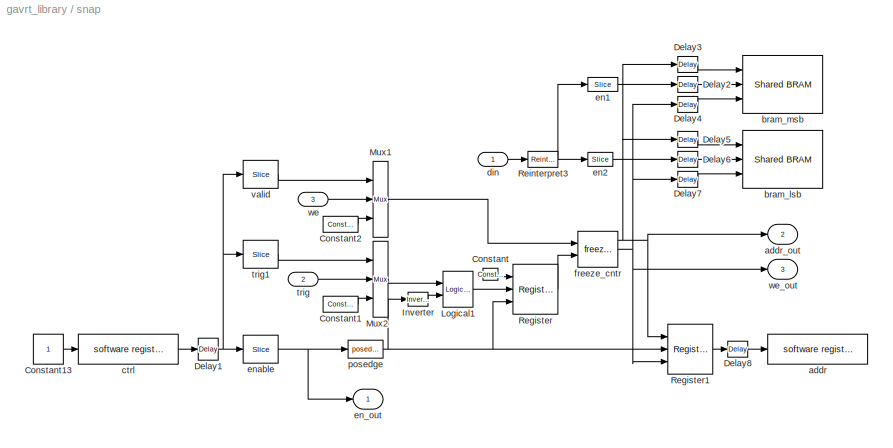
BLOCK [SubSystem] snap
  MaskCallbackString = |
  MaskDescription = The <i>snap</i> block provides a packaged solution to capturing data from\nthe FPGA fabric and making it accessible from the CPU.  The block comes in\n2 flavors: <i>snap</i> (which captures to a 32 bit wide Shared BRAM), and\n<i>snap64</i> (which captures to 2x32 bit wide Shared BRAMs to effect a\n64 bit capture).\nen_out provides access to the ctrl[en] bit\naddr_out and we_out can be used to cont...<+254ch>
  MaskEnableString = on,on
  MaskHelp = eval('xlWeb([getenv(''MLIB_ROOT''), ''<path>''])')
  MaskIconFrame = on
  MaskIconOpaque = on
  MaskIconRotate = none
  MaskIconUnits = autoscale
  MaskPromptString = No. of samples(2^?)|Register Latency
  MaskStyleString = edit,edit
  MaskTabNameString = ,
  MaskToolTipString = on,on
  MaskTunableValueString = on,on
  MaskType = snap64
  MaskValueString = 13|4
  MaskVarAliasString = ,
  MaskVariables = nsamples=@1;latency=@2;
  MaskVisibilityString = on,on
  MinAlgLoopOccurrences = off
  Ports = [3, 3]
  RTWSystemCode = Auto
  TreatAsAtomicUnit = off
BLOCK [Reference] snap/Constant  REF=xbsIndex_r3/Constant
  Ports = [0, 1]
  SourceBlock = xbsIndex_r3/Constant
  SourceType = Xilinx Constant Block
  arith_type = Boolean
  bin_pt = 0
  carry = CIN
  const = 1
  dbl_ovrd = off
  equ = P=C
  explicit_period = on
  inp1 = P
  inp2 = PCIN>>17
  iostate = 0
  n_bits = 1
  opr = +
  opselect = C
  period = 1
BLOCK [Reference] snap/Constant1  REF=xbsIndex_r3/Constant
  Ports = [0, 1]
  SourceBlock = xbsIndex_r3/Constant
  SourceType = Xilinx Constant Block
  arith_type = Boolean
  bin_pt = 0
  carry = CIN
  const = 1
  dbl_ovrd = off
  equ = P=C
  explicit_period = on
  inp1 = P
  inp2 = PCIN>>17
  iostate = 0
  n_bits = 1
  opr = +
  opselect = C
  period = 1
BLOCK [Constant] snap/Constant13
BLOCK [Reference] snap/Constant2  REF=xbsIndex_r3/Constant
  Ports = [0, 1]
  SourceBlock = xbsIndex_r3/Constant
  SourceType = Xilinx Constant Block
  arith_type = Boolean
  bin_pt = 0
  carry = CIN
  const = 1
  dbl_ovrd = off
  equ = P=C
  explicit_period = on
  inp1 = P
  inp2 = PCIN>>17
  iostate = 0
  n_bits = 1
  opr = +
  opselect = C
  period = 1
BLOCK [Reference] snap/Delay1  REF=xbsIndex_r3/Delay
  Ports = [1, 1]
  SourceBlock = xbsIndex_r3/Delay
  SourceType = Xilinx Delay Block
  accept_only_valid = off
  dbl_ovrd = off
  en = off
  explicit_period = off
  init_zero = on
  latency = latency
  period = 1
  reg_retiming = on
  show_param = off
  xl_area = [0, 0, 0, 0, 0, 0, 0]
  xl_use_area = off
BLOCK [Reference] snap/Delay2  REF=xbsIndex_r3/Delay
  Ports = [1, 1]
  SourceBlock = xbsIndex_r3/Delay
  SourceType = Xilinx Delay Block
  accept_only_valid = off
  dbl_ovrd = off
  en = off
  explicit_period = off
  init_zero = on
  latency = latency
  period = 1
  reg_retiming = on
  show_param = off
  xl_area = [0, 0, 0, 0, 0, 0, 0]
  xl_use_area = off
BLOCK [Reference] snap/Delay3  REF=xbsIndex_r3/Delay
  Ports = [1, 1]
  SourceBlock = xbsIndex_r3/Delay
  SourceType = Xilinx Delay Block
  accept_only_valid = off
  dbl_ovrd = off
  en = off
  explicit_period = off
  init_zero = on
  latency = latency
  period = 1
  reg_retiming = on
  show_param = off
  xl_area = [0, 0, 0, 0, 0, 0, 0]
  xl_use_area = off
BLOCK [Reference] snap/Delay4  REF=xbsIndex_r3/Delay
  Ports = [1, 1]
  SourceBlock = xbsIndex_r3/Delay
  SourceType = Xilinx Delay Block
  accept_only_valid = off
  dbl_ovrd = off
  en = off
  explicit_period = off
  init_zero = on
  latency = latency
  period = 1
  reg_retiming = on
  show_param = off
  xl_area = [0, 0, 0, 0, 0, 0, 0]
  xl_use_area = off
BLOCK [Reference] snap/Delay5  REF=xbsIndex_r3/Delay
  Ports = [1, 1]
  SourceBlock = xbsIndex_r3/Delay
  SourceType = Xilinx Delay Block
  accept_only_valid = off
  dbl_ovrd = off
  en = off
  explicit_period = off
  init_zero = on
  latency = latency
  period = 1
  reg_retiming = on
  show_param = off
  xl_area = [0, 0, 0, 0, 0, 0, 0]
  xl_use_area = off
BLOCK [Reference] snap/Delay6  REF=xbsIndex_r3/Delay
  Ports = [1, 1]
  SourceBlock = xbsIndex_r3/Delay
  SourceType = Xilinx Delay Block
  accept_only_valid = off
  dbl_ovrd = off
  en = off
  explicit_period = off
  init_zero = on
  latency = latency
  period = 1
  reg_retiming = on
  show_param = off
  xl_area = [0, 0, 0, 0, 0, 0, 0]
  xl_use_area = off
BLOCK [Reference] snap/Delay7  REF=xbsIndex_r3/Delay
  Ports = [1, 1]
  SourceBlock = xbsIndex_r3/Delay
  SourceType = Xilinx Delay Block
  accept_only_valid = off
  dbl_ovrd = off
  en = off
  explicit_period = off
  init_zero = on
  latency = latency
  period = 1
  reg_retiming = on
  show_param = off
  xl_area = [0, 0, 0, 0, 0, 0, 0]
  xl_use_area = off
BLOCK [Reference] snap/Delay8  REF=xbsIndex_r3/Delay
  Ports = [1, 1]
  SourceBlock = xbsIndex_r3/Delay
  SourceType = Xilinx Delay Block
  accept_only_valid = off
  dbl_ovrd = off
  en = off
  explicit_period = off
  init_zero = on
  latency = latency
  period = 1
  reg_retiming = on
  show_param = off
  xl_area = [0, 0, 0, 0, 0, 0, 0]
  xl_use_area = off
BLOCK [Reference] snap/Inverter  REF=xbsIndex_r3/Inverter
  Ports = [1, 1]
  SourceBlock = xbsIndex_r3/Inverter
  SourceType = Xilinx Inverter
  dbl_ovrd = off
  en = off
  explicit_period = off
  latency = 0
  period = 1
  show_param = off
  xl_area = [0, 0, 0, 0, 0, 0, 0]
  xl_use_area = off
BLOCK [Reference] snap/Logical1  REF=xbsIndex_r3/Logical
  Ports = [2, 1]
  SourceBlock = xbsIndex_r3/Logical
  SourceType = Xilinx Logical Block
  align_bp = on
  arith_type = Unsigned
  bin_pt = 2
  dbl_ovrd = off
  en = off
  explicit_period = off
  inputs = 2
  latency = 0
  logical_function = AND
  n_bits = 8
  period = 1
  precision = Full
  show_param = off
  xl_area = [0, 0, 0, 0, 0, 0, 0]
  xl_use_area = off
BLOCK [Reference] snap/Mux1  REF=xbsIndex_r3/Mux
  Ports = [3, 1]
  SourceBlock = xbsIndex_r3/Mux
  SourceType = Xilinx Multiplexer Block
  arith_type = Signed  (2's comp)
  bin_pt = 2
  dbl_ovrd = off
  en = off
  explicit_period = off
  gen_core = off
  inputs = 2
  latency = 0
  mux_type = off
  n_bits = 8
  overflow = Wrap
  period = 1
  precision = Full
  quantization = Truncate
  show_param = off
  use_rpm = off
  xl_area = [0, 0, 0, 0, 0, 0, 0]
  xl_use_area = off
BLOCK [Reference] snap/Mux2  REF=xbsIndex_r3/Mux
  Ports = [3, 1]
  SourceBlock = xbsIndex_r3/Mux
  SourceType = Xilinx Multiplexer Block
  arith_type = Signed  (2's comp)
  bin_pt = 2
  dbl_ovrd = off
  en = off
  explicit_period = off
  gen_core = off
  inputs = 2
  latency = 0
  mux_type = off
  n_bits = 8
  overflow = Wrap
  period = 1
  precision = Full
  quantization = Truncate
  show_param = off
  use_rpm = off
  xl_area = [0, 0, 0, 0, 0, 0, 0]
  xl_use_area = off
BLOCK [Reference] snap/Register  REF=xbsIndex_r3/Register
  Ports = [3, 1]
  SourceBlock = xbsIndex_r3/Register
  SourceType = Xilinx Register Block
  dbl_ovrd = off
  en = on
  explicit_period = off
  init = 0
  out_en = off
  period = 1
  reg_only_valid = off
  rst = on
  show_param = off
  xl_area = [0, 0, 0, 0, 0, 0, 0]
  xl_use_area = off
BLOCK [Reference] snap/Register1  REF=xbsIndex_r3/Register
  Ports = [3, 1]
  SourceBlock = xbsIndex_r3/Register
  SourceType = Xilinx Register Block
  dbl_ovrd = off
  en = on
  explicit_period = off
  init = 0
  out_en = off
  period = 1
  reg_only_valid = off
  rst = on
  show_param = off
  xl_area = [0, 0, 0, 0, 0, 0, 0]
  xl_use_area = off
BLOCK [Reference] snap/Reinterpret3  REF=xbsIndex_r3/Reinterpret
  Ports = [1, 1]
  SourceBlock = xbsIndex_r3/Reinterpret
  SourceType = Xilinx Type Reinterpreting Block
  arith_type = Unsigned
  bin_pt = 0
  force_arith_type = on
  force_bin_pt = on
  force_valid = on
BLOCK [Reference] snap/addr  REF=xps_library/software register  (lib defined in mdl_00b5cec29cd0, mdl_02ab6ecaa3d1, +5 more)
  Ports = [1, 1]
  ShowPortLabels = on
  SourceBlock = xps_library/software register
  SourceType = Unknown
  Tag = xps:sw_reg
  arith_type = Unsigned
  bin_pt = 0
  bitwidth = 32
  gw_name = iq_snap_snap_addr_user_data_in
  io_dir = To Processor
  sample_period = 1
BLOCK [Outport] snap/addr_out
  BusOutputAsStruct = off
  IconDisplay = Port number
  Port = 2
BLOCK [Reference] snap/bram_lsb  REF=xps_library/Shared BRAM  (lib defined in mdl_00b5cec29cd0, mdl_02ab6ecaa3d1, +5 more)
  Ports = [3, 1]
  ShowPortLabels = on
  SourceBlock = xps_library/Shared BRAM
  SourceType = Unknown
  Tag = xps:bram
  addr_width = nsamples
  arith_type = Unsigned
  data_bin_pt = 0
  data_width = 32
  init_vals = 0
  sample_rate = 1
BLOCK [Reference] snap/bram_msb  REF=xps_library/Shared BRAM  (lib defined in mdl_00b5cec29cd0, mdl_02ab6ecaa3d1, +5 more)
  Ports = [3, 1]
  ShowPortLabels = on
  SourceBlock = xps_library/Shared BRAM
  SourceType = Unknown
  Tag = xps:bram
  addr_width = nsamples
  arith_type = Unsigned
  data_bin_pt = 0
  data_width = 32
  init_vals = 0
  sample_rate = 1
BLOCK [Reference] snap/ctrl  REF=xps_library/software register  (lib defined in mdl_00b5cec29cd0, mdl_02ab6ecaa3d1, +5 more)
  Ports = [1, 1]
  ShowPortLabels = on
  SourceBlock = xps_library/software register
  SourceType = Unknown
  Tag = xps:sw_reg
  arith_type = Unsigned
  bin_pt = 0
  bitwidth = 32
  gw_name = iq_snap_snap_ctrl_user_data_out
  io_dir = From Processor
  sample_period = 1
BLOCK [Inport] snap/din
  IconDisplay = Port number
  LatchInput = off
  Port = 1
BLOCK [Reference] snap/en1  REF=xbsIndex_r3/Slice
  Ports = [1, 1]
  SourceBlock = xbsIndex_r3/Slice
  SourceType = Xilinx Slice Block
  base0 = LSB of Input
  base1 = LSB of Input
  bit0 = 32
  bit1 = 0
  boolean_output = off
  dbl_ovrd = off
  explicit_period = off
  mode = Lower Bit Location + Width
  nbits = 32
  period = 1
BLOCK [Reference] snap/en2  REF=xbsIndex_r3/Slice
  Ports = [1, 1]
  SourceBlock = xbsIndex_r3/Slice
  SourceType = Xilinx Slice Block
  base0 = LSB of Input
  base1 = LSB of Input
  bit0 = 0
  bit1 = 0
  boolean_output = off
  dbl_ovrd = off
  explicit_period = off
  mode = Lower Bit Location + Width
  nbits = 32
  period = 1
BLOCK [Outport] snap/en_out
  BusOutputAsStruct = off
  IconDisplay = Port number
BLOCK [Reference] snap/enable  REF=xbsIndex_r3/Slice
  Ports = [1, 1]
  SourceBlock = xbsIndex_r3/Slice
  SourceType = Xilinx Slice Block
  base0 = LSB of Input
  base1 = LSB of Input
  bit0 = 0
  bit1 = 0
  boolean_output = on
  dbl_ovrd = off
  explicit_period = off
  mode = Lower Bit Location + Width
  nbits = 1
  period = 1
BLOCK [Reference] snap/freeze_cntr  REF=casper_library/Misc/freeze_cntr  (lib defined in mdl_138b2fc3435f, mdl_4ed325b712b3, +2 more)
  CounterBits = nsamples
  Ports = [2, 3]
  ShowPortLabels = on
  SourceBlock = casper_library/Misc/freeze_cntr
  SourceType = freeze_cntr
BLOCK [Reference] snap/posedge  REF=casper_library/Misc/posedge  (lib defined in mdl_138b2fc3435f, mdl_4ed325b712b3, +2 more)
  Ports = [1, 1]
  ShowPortLabels = on
  SourceBlock = casper_library/Misc/posedge
  SourceType = posedge
  Tag = Rising Edge Detector
BLOCK [Inport] snap/trig
  IconDisplay = Port number
  LatchInput = off
  Port = 2
BLOCK [Reference] snap/trig1  REF=xbsIndex_r3/Slice
  Ports = [1, 1]
  SourceBlock = xbsIndex_r3/Slice
  SourceType = Xilinx Slice Block
  base0 = LSB of Input
  base1 = LSB of Input
  bit0 = 1
  bit1 = 0
  boolean_output = on
  dbl_ovrd = off
  explicit_period = off
  mode = Lower Bit Location + Width
  nbits = 1
  period = 1
BLOCK [Reference] snap/valid  REF=xbsIndex_r3/Slice
  Ports = [1, 1]
  SourceBlock = xbsIndex_r3/Slice
  SourceType = Xilinx Slice Block
  base0 = LSB of Input
  base1 = LSB of Input
  bit0 = 2
  bit1 = 0
  boolean_output = on
  dbl_ovrd = off
  explicit_period = off
  mode = Lower Bit Location + Width
  nbits = 1
  period = 1
BLOCK [Inport] snap/we
  IconDisplay = Port number
  LatchInput = off
  Port = 3
BLOCK [Outport] snap/we_out
  BusOutputAsStruct = off
  IconDisplay = Port number
  Port = 3
BLOCK [SubSystem] supercat
  MaskEnableString = on
  MaskIconFrame = on
  MaskIconOpaque = on
  MaskIconRotate = none
  MaskIconUnits = autoscale
  MaskInitialization = supercat_init(gcb, 'n', n);
  MaskPromptString = Number of Inputs
  MaskStyleString = edit
  MaskToolTipString = on
  MaskTunableValueString = on
  MaskType = supercat
  MaskValueString = 8
  MaskVariables = n=@1;
  MaskVisibilityString = on
  MinAlgLoopOccurrences = off
  Ports = [8, 1]
  RTWSystemCode = Auto
  TreatAsAtomicUnit = off
  UserData = DataTag19
  UserDataPersistent = on
BLOCK [Reference] supercat/Concat_1  REF=xbsIndex_r3/Concat
  Ports = [8, 1]
  SourceBlock = xbsIndex_r3/Concat
  SourceType = Xilinx Bus Concatenator
  dbl_ovrd = off
  explicit_period = off
  num_inputs = 8
  period = 1
BLOCK [Outport] supercat/Out
  BusOutputAsStruct = off
  IconDisplay = Port number
BLOCK [Inport] supercat/i1
  IconDisplay = Port number
  LatchInput = off
  Port = 1
BLOCK [Inport] supercat/i2
  IconDisplay = Port number
  LatchInput = off
  Port = 2
BLOCK [Inport] supercat/i3
  IconDisplay = Port number
  LatchInput = off
  Port = 3
BLOCK [Inport] supercat/i4
  IconDisplay = Port number
  LatchInput = off
  Port = 4
BLOCK [Inport] supercat/i5
  IconDisplay = Port number
  LatchInput = off
  Port = 5
BLOCK [Inport] supercat/i6
  IconDisplay = Port number
  LatchInput = off
  Port = 6
BLOCK [Inport] supercat/i7
  IconDisplay = Port number
  LatchInput = off
  Port = 7
BLOCK [Inport] supercat/i8
  IconDisplay = Port number
  LatchInput = off
  Port = 8
BLOCK [SubSystem] uncram
  AttributesFormatString = Fix_18_17
  MaskCallbackString = |||
  MaskDescription = Takes a concatenated input and slices it up into even pieces and reinterprets them as signed fixed point numbers with a given binary point.
  MaskEnableString = on,on,on,on
  MaskIconFrame = on
  MaskIconOpaque = on
  MaskIconRotate = none
  MaskIconUnits = autoscale
  MaskInitialization = uncram_init(gcb, ...\n    'num_slice', num_slice, ...\n    'slice_width', slice_width, ...\n    'bin_pt', bin_pt, ...\n    'arith_type', arith_type);
  MaskPromptString = Number of slices|Slice Width|Output Binary Point|Output Arithmetic Type (0=Unsigned, 1=Signed)
  MaskSelfModifiable = on
  MaskStyleString = edit,edit,edit,edit
  MaskTabNameString = ,,,
  MaskToolTipString = on,on,on,on
  MaskTunableValueString = on,on,on,on
  MaskType = uncram
  MaskValueString = 2|18|17|1
  MaskVarAliasString = ,,,
  MaskVariables = num_slice=@1;slice_width=@2;bin_pt=@3;arith_type=@4;
  MaskVisibilityString = on,on,on,on
  MinAlgLoopOccurrences = off
  Ports = [1, 2]
  RTWSystemCode = Auto
  TreatAsAtomicUnit = off
  UserData = DataTag20
  UserDataPersistent = on
BLOCK [Inport] uncram/In
  IconDisplay = Port number
  LatchInput = off
  Port = 1
BLOCK [Outport] uncram/Out1
  BusOutputAsStruct = off
  IconDisplay = Port number
BLOCK [Outport] uncram/Out2
  BusOutputAsStruct = off
  IconDisplay = Port number
  Port = 2
BLOCK [Reference] uncram/Reinterp1  REF=xbsIndex_r3/Reinterpret
  Ports = [1, 1]
  SourceBlock = xbsIndex_r3/Reinterpret
  SourceType = Xilinx Type Reinterpreting Block
  arith_type = Signed  (2's comp)
  bin_pt = 17
  force_arith_type = on
  force_bin_pt = on
  force_valid = on
BLOCK [Reference] uncram/Reinterp2  REF=xbsIndex_r3/Reinterpret
  Ports = [1, 1]
  SourceBlock = xbsIndex_r3/Reinterpret
  SourceType = Xilinx Type Reinterpreting Block
  arith_type = Signed  (2's comp)
  bin_pt = 17
  force_arith_type = on
  force_bin_pt = on
  force_valid = on
BLOCK [Reference] uncram/Slice1  REF=xbsIndex_r3/Slice
  Ports = [1, 1]
  SourceBlock = xbsIndex_r3/Slice
  SourceType = Xilinx Slice Block
  base0 = LSB of Input
  base1 = MSB of Input
  bit0 = 0
  bit1 = 0
  boolean_output = off
  dbl_ovrd = off
  explicit_period = off
  mode = Upper Bit Location + Width
  nbits = 18
  period = 1
BLOCK [Reference] uncram/Slice2  REF=xbsIndex_r3/Slice
  Ports = [1, 1]
  SourceBlock = xbsIndex_r3/Slice
  SourceType = Xilinx Slice Block
  base0 = LSB of Input
  base1 = MSB of Input
  bit0 = 0
  bit1 = -18
  boolean_output = off
  dbl_ovrd = off
  explicit_period = off
  mode = Upper Bit Location + Width
  nbits = 18
  period = 1
BLOCK [SubSystem] vacc
  AttributesFormatString = vector length=256, inputs=4\nmax accumulations=2^16
  MaskCallbackString = |||||||||||
  MaskDescription = Sync is expected the clock before the first data to be accumulated.\nUse the Cram block to feed din for multiple simultaneous inputs.\nacc_len is the number of vectors to sum.\nvalid is high while a valid accumulation is being clocked out on dout.\nIf only one sync pulse is provided, valid accumulations will repeatedly appear on dout as they become available.\nUndesired behavior may occur if acc_l...<+279ch>
  MaskEnableString = on,on,on,on,on,on,on,on,on,on,on,on
  MaskIconFrame = on
  MaskIconOpaque = on
  MaskIconRotate = none
  MaskIconUnits = autoscale
  MaskInitialization = vacc_init(gcb, ...\n    'veclen', veclen, ...\n    'ninputs', ninputs, ...\n    'max_accum', max_accum, ...\n    'arith_type', arith_type, ...\n    'in_bit_width', in_bit_width, ...\n    'in_bin_pt', in_bin_pt, ...\n    'out_bit_width', out_bit_width, ...\n    'out_bin_pt', out_bin_pt, ...\n    'register_din', register_din, ...\n    'add_latency', add_latency, ...\n    'bram_latency', bram_latency...<+39ch>
  MaskPromptString = Vector Length (2^?)|Number of Simultaneous Vectors|Maximum # Accumulations (2^?)|Arithmetic Type (0=Unsigned, 1=Signed)|Input Bit Width|Input Binary Point|Output Bit Width|Output Binary Point|Register Input Data  (1 = Enable Register Retiming on input delay)|Add Latency|BRAM Latency|Mux Latency
  MaskStyleString = edit,edit,edit,edit,edit,edit,edit,edit,edit,edit,edit,edit
  MaskTabNameString = ,,,,,,,,,,,
  MaskToolTipString = on,on,on,on,on,on,on,on,on,on,on,on
  MaskTunableValueString = on,on,on,on,on,on,on,on,on,on,on,on
  MaskType = vacc
  MaskValueString = 8|4|16|0|32|31|48|31|0|2|2|1
  MaskVarAliasString = ,,,,,,,,,,,
  MaskVariables = veclen=@1;ninputs=@2;max_accum=@3;arith_type=@4;in_bit_width=@5;in_bin_pt=@6;out_bit_width=@7;out_bin_pt=@8;register_din=@9;add_latency=@10;bram_latency=@11;mux_latency=@12;
  MaskVisibilityString = on,on,on,on,on,on,on,on,on,on,on,on
  MinAlgLoopOccurrences = off
  Ports = [3, 2]
  RTWSystemCode = Auto
  TreatAsAtomicUnit = off
  UserData = DataTag21
  UserDataPersistent = on
BLOCK [Reference] vacc/AND  REF=xbsIndex_r3/Logical
  Ports = [2, 1]
  SourceBlock = xbsIndex_r3/Logical
  SourceType = Xilinx Logical Block
  align_bp = on
  arith_type = Unsigned
  bin_pt = 2
  dbl_ovrd = off
  en = off
  explicit_period = off
  inputs = 2
  latency = 0
  logical_function = AND
  n_bits = 8
  period = 1
  precision = Full
  show_param = off
  xl_area = [0, 0, 0, 0, 0, 0, 0]
  xl_use_area = off
BLOCK [Reference] vacc/AccEnCompare  REF=xbsIndex_r3/Relational
  Ports = [2, 1]
  SourceBlock = xbsIndex_r3/Relational
  SourceType = Xilinx Relational Block
  dbl_ovrd = off
  en = off
  explicit_period = off
  latency = 1
  mode = a!=b
  period = 1
  show_param = off
  xl_area = [0, 0, 0, 0, 0, 0, 0]
  xl_use_area = off
BLOCK [Reference] vacc/Counter  REF=xbsIndex_r3/Counter
  Ports = [1, 1]
  SourceBlock = xbsIndex_r3/Counter
  SourceType = Xilinx Counter Block
  arith_type = Unsigned
  bin_pt = 0
  cnt_by_val = 1
  cnt_to = Inf
  cnt_type = Free Running
  dbl_ovrd = off
  en = off
  explicit_period = on
  gen_core = off
  load_pin = off
  n_bits = 24
  operation = Up
  period = 1
  rst = on
  show_param = off
  start_count = 0
  use_rpm = on
  xl_area = [0, 0, 0, 0, 0, 0, 0]
  xl_use_area = off
BLOCK [SubSystem] vacc/Cram
  AncestorBlock = gavrt_library/cram
  MaskDescription = Concatenates inputs together after forcing binary point to zero.
  MaskEnableString = on
  MaskIconFrame = on
  MaskIconOpaque = on
  MaskIconRotate = none
  MaskIconUnits = autoscale
  MaskInitialization = cram_init(gcb, ...\n    'num_slice', num_slice);
  MaskPromptString = Number of slices
  MaskSelfModifiable = on
  MaskStyleString = edit
  MaskToolTipString = on
  MaskTunableValueString = on
  MaskType = cram
  MaskValueString = 4
  MaskVariables = num_slice=@1;
  MaskVisibilityString = on
  MinAlgLoopOccurrences = off
  Ports = [4, 1]
  RTWSystemCode = Auto
  TreatAsAtomicUnit = off
  UserData = DataTag22
  UserDataPersistent = on
BLOCK [Reference] vacc/Cram/Concat  REF=xbsIndex_r3/Concat
  Ports = [4, 1]
  SourceBlock = xbsIndex_r3/Concat
  SourceType = Xilinx Bus Concatenator
  dbl_ovrd = off
  explicit_period = off
  num_inputs = 4
  period = 1
BLOCK [Inport] vacc/Cram/In1
  IconDisplay = Port number
  LatchInput = off
  Port = 1
BLOCK [Inport] vacc/Cram/In2
  IconDisplay = Port number
  LatchInput = off
  Port = 2
BLOCK [Inport] vacc/Cram/In3
  IconDisplay = Port number
  LatchInput = off
  Port = 3
BLOCK [Inport] vacc/Cram/In4
  IconDisplay = Port number
  LatchInput = off
  Port = 4
BLOCK [Outport] vacc/Cram/Out
  BusOutputAsStruct = off
  IconDisplay = Port number
BLOCK [Reference] vacc/Cram/Reinterp1  REF=xbsIndex_r3/Reinterpret
  Ports = [1, 1]
  SourceBlock = xbsIndex_r3/Reinterpret
  SourceType = Xilinx Type Reinterpreting Block
  arith_type = Unsigned
  bin_pt = 0
  force_arith_type = on
  force_bin_pt = on
  force_valid = on
BLOCK [Reference] vacc/Cram/Reinterp2  REF=xbsIndex_r3/Reinterpret
  Ports = [1, 1]
  SourceBlock = xbsIndex_r3/Reinterpret
  SourceType = Xilinx Type Reinterpreting Block
  arith_type = Unsigned
  bin_pt = 0
  force_arith_type = on
  force_bin_pt = on
  force_valid = on
BLOCK [Reference] vacc/Cram/Reinterp3  REF=xbsIndex_r3/Reinterpret
  Ports = [1, 1]
  SourceBlock = xbsIndex_r3/Reinterpret
  SourceType = Xilinx Type Reinterpreting Block
  arith_type = Unsigned
  bin_pt = 0
  force_arith_type = on
  force_bin_pt = on
  force_valid = on
BLOCK [Reference] vacc/Cram/Reinterp4  REF=xbsIndex_r3/Reinterpret
  Ports = [1, 1]
  SourceBlock = xbsIndex_r3/Reinterpret
  SourceType = Xilinx Type Reinterpreting Block
  arith_type = Unsigned
  bin_pt = 0
  force_arith_type = on
  force_bin_pt = on
  force_valid = on
BLOCK [Reference] vacc/DinDelay  REF=xbsIndex_r3/Delay
  Ports = [1, 1]
  SourceBlock = xbsIndex_r3/Delay
  SourceType = Xilinx Delay Block
  accept_only_valid = off
  dbl_ovrd = off
  en = off
  explicit_period = off
  init_zero = on
  latency = 2
  period = 1
  reg_retiming = off
  show_param = off
  xl_area = [0, 0, 0, 0, 0, 0, 0]
  xl_use_area = off
BLOCK [From] vacc/FromCount
  CloseFcn = tagdialog Close
  GotoTag = count
BLOCK [From] vacc/FromValid
  CloseFcn = tagdialog Close
  GotoTag = valid
BLOCK [Goto] vacc/GotoCount
  GotoTag = count
  TagVisibility = local
BLOCK [Goto] vacc/GotoValid
  GotoTag = valid
  TagVisibility = local
BLOCK [Reference] vacc/OR  REF=xbsIndex_r3/Logical
  Ports = [2, 1]
  SourceBlock = xbsIndex_r3/Logical
  SourceType = Xilinx Logical Block
  align_bp = on
  arith_type = Unsigned
  bin_pt = 2
  dbl_ovrd = off
  en = off
  explicit_period = off
  inputs = 2
  latency = 0
  logical_function = OR
  n_bits = 8
  period = 1
  precision = Full
  show_param = off
  xl_area = [0, 0, 0, 0, 0, 0, 0]
  xl_use_area = off
BLOCK [Reference] vacc/Slice  REF=xbsIndex_r3/Slice
  Ports = [1, 1]
  SourceBlock = xbsIndex_r3/Slice
  SourceType = Xilinx Slice Block
  base0 = LSB of Input
  base1 = MSB of Input
  bit0 = 0
  bit1 = 0
  boolean_output = off
  dbl_ovrd = off
  explicit_period = off
  mode = Upper Bit Location + Width
  nbits = 16
  period = 1
BLOCK [Reference] vacc/SliceLow  REF=xbsIndex_r3/Slice
  Ports = [1, 1]
  SourceBlock = xbsIndex_r3/Slice
  SourceType = Xilinx Slice Block
  base0 = LSB of Input
  base1 = MSB of Input
  bit0 = 0
  bit1 = 0
  boolean_output = off
  dbl_ovrd = off
  explicit_period = off
  mode = Lower Bit Location + Width
  nbits = 8
  period = 1
BLOCK [Reference] vacc/SyncCompare  REF=xbsIndex_r3/Relational
  Ports = [2, 1]
  SourceBlock = xbsIndex_r3/Relational
  SourceType = Xilinx Relational Block
  dbl_ovrd = off
  en = off
  explicit_period = off
  latency = 1
  mode = a=b
  period = 1
  show_param = off
  xl_area = [0, 0, 0, 0, 0, 0, 0]
  xl_use_area = off
BLOCK [Reference] vacc/SyncConst  REF=xbsIndex_r3/Constant
  Ports = [0, 1]
  SourceBlock = xbsIndex_r3/Constant
  SourceType = Xilinx Constant Block
  arith_type = Unsigned
  bin_pt = 0
  carry = CIN
  const = 254
  dbl_ovrd = off
  equ = P=C
  explicit_period = on
  inp1 = P
  inp2 = PCIN>>17
  iostate = 0
  n_bits = 8
  opr = +
  opselect = C
  period = 1
BLOCK [Reference] vacc/SyncDelay  REF=xbsIndex_r3/Delay
  Ports = [1, 1]
  SourceBlock = xbsIndex_r3/Delay
  SourceType = Xilinx Delay Block
  accept_only_valid = off
  dbl_ovrd = off
  en = off
  explicit_period = off
  init_zero = on
  latency = 0
  period = 1
  reg_retiming = off
  show_param = off
  xl_area = [0, 0, 0, 0, 0, 0, 0]
  xl_use_area = off
BLOCK [SubSystem] vacc/Uncram
  AncestorBlock = gavrt_library/uncram
  AttributesFormatString = UFix_32_31
  MaskCallbackString = |||
  MaskDescription = Takes a concatenated input and slices it up into even pieces and reinterprets them as signed fixed point numbers with a given binary point.
  MaskEnableString = on,on,on,on
  MaskIconFrame = on
  MaskIconOpaque = on
  MaskIconRotate = none
  MaskIconUnits = autoscale
  MaskInitialization = uncram_init(gcb, ...\n    'num_slice', num_slice, ...\n    'slice_width', slice_width, ...\n    'bin_pt', bin_pt, ...\n    'arith_type', arith_type);
  MaskPromptString = Number of slices|Slice Width|Output Binary Point|Output Arithmetic Type (0=Unsigned, 1=Signed, 2=Boolean)
  MaskSelfModifiable = on
  MaskStyleString = edit,edit,edit,edit
  MaskTabNameString = ,,,
  MaskToolTipString = on,on,on,on
  MaskTunableValueString = on,on,on,on
  MaskType = uncram
  MaskValueString = 4|32|31|0
  MaskVarAliasString = ,,,
  MaskVariables = num_slice=@1;slice_width=@2;bin_pt=@3;arith_type=@4;
  MaskVisibilityString = on,on,on,on
  MinAlgLoopOccurrences = off
  Ports = [1, 4]
  RTWSystemCode = Auto
  TreatAsAtomicUnit = off
  UserData = DataTag23
  UserDataPersistent = on
BLOCK [Inport] vacc/Uncram/In
  IconDisplay = Port number
  LatchInput = off
  Port = 1
BLOCK [Outport] vacc/Uncram/Out1
  BusOutputAsStruct = off
  IconDisplay = Port number
BLOCK [Outport] vacc/Uncram/Out2
  IconDisplay = Port number
  Port = 2
BLOCK [Outport] vacc/Uncram/Out3
  IconDisplay = Port number
  Port = 3
BLOCK [Outport] vacc/Uncram/Out4
  IconDisplay = Port number
  Port = 4
BLOCK [Reference] vacc/Uncram/Reinterp1  REF=xbsIndex_r3/Reinterpret
  Ports = [1, 1]
  SourceBlock = xbsIndex_r3/Reinterpret
  SourceType = Xilinx Type Reinterpreting Block
  arith_type = Unsigned
  bin_pt = 31
  force_arith_type = on
  force_bin_pt = on
  force_valid = on
BLOCK [Reference] vacc/Uncram/Reinterp2  REF=xbsIndex_r3/Reinterpret
  Ports = [1, 1]
  SourceBlock = xbsIndex_r3/Reinterpret
  SourceType = Xilinx Type Reinterpreting Block
  arith_type = Unsigned
  bin_pt = 31
  force_arith_type = on
  force_bin_pt = on
  force_valid = on
BLOCK [Reference] vacc/Uncram/Reinterp3  REF=xbsIndex_r3/Reinterpret
  Ports = [1, 1]
  SourceBlock = xbsIndex_r3/Reinterpret
  SourceType = Xilinx Type Reinterpreting Block
  arith_type = Unsigned
  bin_pt = 31
  force_arith_type = on
  force_bin_pt = on
  force_valid = on
BLOCK [Reference] vacc/Uncram/Reinterp4  REF=xbsIndex_r3/Reinterpret
  Ports = [1, 1]
  SourceBlock = xbsIndex_r3/Reinterpret
  SourceType = Xilinx Type Reinterpreting Block
  arith_type = Unsigned
  bin_pt = 31
  force_arith_type = on
  force_bin_pt = on
  force_valid = on
BLOCK [Reference] vacc/Uncram/Slice1  REF=xbsIndex_r3/Slice
  Ports = [1, 1]
  SourceBlock = xbsIndex_r3/Slice
  SourceType = Xilinx Slice Block
  base0 = LSB of Input
  base1 = MSB of Input
  bit0 = 0
  bit1 = 0
  boolean_output = off
  dbl_ovrd = off
  explicit_period = off
  mode = Upper Bit Location + Width
  nbits = 32
  period = 1
BLOCK [Reference] vacc/Uncram/Slice2  REF=xbsIndex_r3/Slice
  Ports = [1, 1]
  SourceBlock = xbsIndex_r3/Slice
  SourceType = Xilinx Slice Block
  base0 = LSB of Input
  base1 = MSB of Input
  bit0 = 0
  bit1 = -32
  boolean_output = off
  dbl_ovrd = off
  explicit_period = off
  mode = Upper Bit Location + Width
  nbits = 32
  period = 1
BLOCK [Reference] vacc/Uncram/Slice3  REF=xbsIndex_r3/Slice
  Ports = [1, 1]
  SourceBlock = xbsIndex_r3/Slice
  SourceType = Xilinx Slice Block
  base0 = LSB of Input
  base1 = MSB of Input
  bit0 = 0
  bit1 = -64
  boolean_output = off
  dbl_ovrd = off
  explicit_period = off
  mode = Upper Bit Location + Width
  nbits = 32
  period = 1
BLOCK [Reference] vacc/Uncram/Slice4  REF=xbsIndex_r3/Slice
  Ports = [1, 1]
  SourceBlock = xbsIndex_r3/Slice
  SourceType = Xilinx Slice Block
  base0 = LSB of Input
  base1 = MSB of Input
  bit0 = 0
  bit1 = -96
  boolean_output = off
  dbl_ovrd = off
  explicit_period = off
  mode = Upper Bit Location + Width
  nbits = 32
  period = 1
BLOCK [Reference] vacc/ValidCompare  REF=xbsIndex_r3/Relational
  Ports = [2, 1]
  SourceBlock = xbsIndex_r3/Relational
  SourceType = Xilinx Relational Block
  dbl_ovrd = off
  en = off
  explicit_period = off
  latency = 1
  mode = a=b
  period = 1
  show_param = off
  xl_area = [0, 0, 0, 0, 0, 0, 0]
  xl_use_area = off
BLOCK [Reference] vacc/ValidDelay  REF=xbsIndex_r3/Delay
  Ports = [1, 1]
  SourceBlock = xbsIndex_r3/Delay
  SourceType = Xilinx Delay Block
  accept_only_valid = off
  dbl_ovrd = off
  en = off
  explicit_period = off
  init_zero = on
  latency = 3
  period = 1
  reg_retiming = off
  show_param = off
  xl_area = [0, 0, 0, 0, 0, 0, 0]
  xl_use_area = off
BLOCK [Reference] vacc/Zero  REF=xbsIndex_r3/Constant
  Ports = [0, 1]
  SourceBlock = xbsIndex_r3/Constant
  SourceType = Xilinx Constant Block
  arith_type = Unsigned
  bin_pt = 0
  carry = CIN
  const = 0
  dbl_ovrd = off
  equ = P=C
  explicit_period = on
  inp1 = P
  inp2 = PCIN>>17
  iostate = 0
  n_bits = 8
  opr = +
  opselect = C
  period = 1
BLOCK [Inport] vacc/acc_len
  IconDisplay = Port number
  LatchInput = off
  Port = 3
BLOCK [Inport] vacc/din
  IconDisplay = Port number
  LatchInput = off
  Port = 2
BLOCK [Outport] vacc/dout
  BusOutputAsStruct = off
  IconDisplay = Port number
  Port = 2
BLOCK [Inport] vacc/sync
  IconDisplay = Port number
  LatchInput = off
  Port = 1
BLOCK [SubSystem] vacc/vacc_core1
  AncestorBlock = gavrt_library/vacc_core
  MaskCallbackString = ||||||
  MaskDescription = Currently only Signed arithmetic supported\nacc_en = 0 --> Load a vector (start a new accumulation)\nacc_en = 1 --> Accumulate
  MaskEnableString = on,on,on,on,on,on,on
  MaskIconFrame = on
  MaskIconOpaque = on
  MaskIconRotate = none
  MaskIconUnits = autoscale
  MaskInitialization = vacc_core_init(gcb, ...\n    'veclen', veclen, ...\n    'arith_type', arith_type, ...\n    'out_bit_width', out_bit_width, ...\n    'out_bin_pt', out_bin_pt, ...\n    'add_latency', add_latency, ...\n    'bram_latency', bram_latency, ...\n    'mux_latency', mux_latency);  <repeated x5 — deduplicated; at blocks: vacc_core1, vacc_core2, vacc_core3, vacc_core4, vacc_core>
  MaskPromptString = Vector Length|Arithmetic Type (0=Unsigned, 1=Signed)|Output Bit Width|Output Binary Point|Add Latency|BRAM Latency|Mux Latency
  MaskStyleString = edit,edit,edit,edit,edit,edit,edit
  MaskTabNameString = ,,,,,,
  MaskToolTipString = on,on,on,on,on,on,on
  MaskTunableValueString = on,on,on,on,on,on,on
  MaskType = vacc_core
  MaskValueString = 256|0|48|31|2|2|1
  MaskVarAliasString = ,,,,,,
  MaskVariables = veclen=@1;arith_type=@2;out_bit_width=@3;out_bin_pt=@4;add_latency=@5;bram_latency=@6;mux_latency=@7;
  MaskVisibilityString = on,on,on,on,on,on,on
  MinAlgLoopOccurrences = off
  Ports = [2, 1]
  RTWSystemCode = Auto
  TreatAsAtomicUnit = off
  UserData = DataTag24
  UserDataPersistent = on
BLOCK [Reference] vacc/vacc_core1/Adder  REF=xbsIndex_r3/AddSub
  Ports = [2, 1]
  SourceBlock = xbsIndex_r3/AddSub
  SourceType = Xilinx Adder/Subtractor
  arith_type = Unsigned
  bin_pt = 31
  dbl_ovrd = off
  en = off
  explicit_period = on
  gen_core = off
  latency = 2
  mode = Addition
  n_bits = 13
  overflow = Wrap
  period = 1
  pipeline = on
  precision = User Defined
  quantization = Truncate
  show_param = on
  use_carryin = off
  use_carryout = off
  use_core = on
  use_rpm = on
  xl_area = [0, 0, 0, 0, 0, 0, 0]
  xl_use_area = off
BLOCK [Reference] vacc/vacc_core1/BRAM  REF=xbsIndex_r3/Single Port RAM
  Ports = [3, 1]
  SourceBlock = xbsIndex_r3/Single Port RAM
  SourceType = Xilinx Single Port Random Access Memory
  dbl_ovrd = off
  depth = 16
  distributed_mem = off
  en = off
  explicit_period = off
  gen_core = off
  initVector = 0
  init_reg = 0
  init_zero = on
  latency = 2
  period = 1
  rst = off
  show_param = off
  use_rpm = off
  write_mode = Read Before Write
  xl_area = [0, 0, 0, 0, 0, 0, 0]
  xl_use_area = off
BLOCK [Reference] vacc/vacc_core1/Constant  REF=xbsIndex_r3/Constant
  Ports = [0, 1]
  SourceBlock = xbsIndex_r3/Constant
  SourceType = Xilinx Constant Block
  arith_type = Unsigned
  bin_pt = 0
  carry = CIN
  const = 0
  dbl_ovrd = off
  equ = P=C
  explicit_period = off
  inp1 = P
  inp2 = PCIN>>17
  iostate = 0
  n_bits = 1
  opr = +
  opselect = C
  period = 1
BLOCK [Reference] vacc/vacc_core1/Constant2  REF=xbsIndex_r3/Constant
  Ports = [0, 1]
  SourceBlock = xbsIndex_r3/Constant
  SourceType = Xilinx Constant Block
  arith_type = Boolean
  bin_pt = 0
  carry = CIN
  const = 1
  dbl_ovrd = off
  equ = P=C
  explicit_period = on
  inp1 = P
  inp2 = PCIN>>17
  iostate = 0
  n_bits = 1
  opr = +
  opselect = C
  period = 1
BLOCK [Reference] vacc/vacc_core1/Counter  REF=xbsIndex_r3/Counter
  Ports = [0, 1]
  SourceBlock = xbsIndex_r3/Counter
  SourceType = Xilinx Counter Block
  arith_type = Unsigned
  bin_pt = 0
  cnt_by_val = 1
  cnt_to = 10
  cnt_type = Count Limited
  dbl_ovrd = off
  en = off
  explicit_period = off
  gen_core = on
  load_pin = off
  n_bits = 4
  operation = Up
  period = 1
  rst = off
  show_param = off
  start_count = 0
  use_rpm = off
  xl_area = [0, 0, 0, 0, 0, 0, 0]
  xl_use_area = off
BLOCK [Reference] vacc/vacc_core1/Mux  REF=xbsIndex_r3/Mux
  Ports = [3, 1]
  SourceBlock = xbsIndex_r3/Mux
  SourceType = Xilinx Multiplexer Block
  arith_type = Signed  (2's comp)
  bin_pt = 2
  dbl_ovrd = off
  en = off
  explicit_period = off
  gen_core = off
  inputs = 2
  latency = 1
  mux_type = off
  n_bits = 8
  overflow = Wrap
  period = 1
  precision = Full
  quantization = Truncate
  show_param = on
  use_rpm = on
  xl_area = [0, 0, 0, 0, 0, 0, 0]
  xl_use_area = off
BLOCK [Inport] vacc/vacc_core1/acc_en
  IconDisplay = Port number
  LatchInput = off
  Port = 2
BLOCK [Inport] vacc/vacc_core1/din
  IconDisplay = Port number
  LatchInput = off
  Port = 1
BLOCK [Outport] vacc/vacc_core1/dout
  BusOutputAsStruct = off
  IconDisplay = Port number
BLOCK [SubSystem] vacc/vacc_core2
  AncestorBlock = gavrt_library/vacc_core
  MaskCallbackString = ||||||
  MaskDescription = Currently only Signed arithmetic supported\nacc_en = 0 --> Load a vector (start a new accumulation)\nacc_en = 1 --> Accumulate
  MaskEnableString = on,on,on,on,on,on,on
  MaskIconFrame = on
  MaskIconOpaque = on
  MaskIconRotate = none
  MaskIconUnits = autoscale
  MaskPromptString = Vector Length|Arithmetic Type (0=Unsigned, 1=Signed)|Output Bit Width|Output Binary Point|Add Latency|BRAM Latency|Mux Latency
  MaskStyleString = edit,edit,edit,edit,edit,edit,edit
  MaskTabNameString = ,,,,,,
  MaskToolTipString = on,on,on,on,on,on,on
  MaskTunableValueString = on,on,on,on,on,on,on
  MaskType = vacc_core
  MaskValueString = 256|0|48|31|2|2|1
  MaskVarAliasString = ,,,,,,
  MaskVariables = veclen=@1;arith_type=@2;out_bit_width=@3;out_bin_pt=@4;add_latency=@5;bram_latency=@6;mux_latency=@7;
  MaskVisibilityString = on,on,on,on,on,on,on
  MinAlgLoopOccurrences = off
  Ports = [2, 1]
  RTWSystemCode = Auto
  TreatAsAtomicUnit = off
  UserData = DataTag25
  UserDataPersistent = on
BLOCK [Reference] vacc/vacc_core2/Adder  REF=xbsIndex_r3/AddSub
  Ports = [2, 1]
  SourceBlock = xbsIndex_r3/AddSub
  SourceType = Xilinx Adder/Subtractor
  arith_type = Unsigned
  bin_pt = 31
  dbl_ovrd = off
  en = off
  explicit_period = on
  gen_core = off
  latency = 2
  mode = Addition
  n_bits = 14
  overflow = Wrap
  period = 1
  pipeline = on
  precision = User Defined
  quantization = Truncate
  show_param = on
  use_carryin = off
  use_carryout = off
  use_core = on
  use_rpm = on
  xl_area = [0, 0, 0, 0, 0, 0, 0]
  xl_use_area = off
BLOCK [Reference] vacc/vacc_core2/BRAM  REF=xbsIndex_r3/Single Port RAM
  Ports = [3, 1]
  SourceBlock = xbsIndex_r3/Single Port RAM
  SourceType = Xilinx Single Port Random Access Memory
  dbl_ovrd = off
  depth = 16
  distributed_mem = off
  en = off
  explicit_period = off
  gen_core = off
  initVector = 0
  init_reg = 0
  init_zero = on
  latency = 2
  period = 1
  rst = off
  show_param = off
  use_rpm = off
  write_mode = Read Before Write
  xl_area = [0, 0, 0, 0, 0, 0, 0]
  xl_use_area = off
BLOCK [Reference] vacc/vacc_core2/Constant  REF=xbsIndex_r3/Constant
  Ports = [0, 1]
  SourceBlock = xbsIndex_r3/Constant
  SourceType = Xilinx Constant Block
  arith_type = Unsigned
  bin_pt = 0
  carry = CIN
  const = 0
  dbl_ovrd = off
  equ = P=C
  explicit_period = off
  inp1 = P
  inp2 = PCIN>>17
  iostate = 0
  n_bits = 1
  opr = +
  opselect = C
  period = 1
BLOCK [Reference] vacc/vacc_core2/Constant2  REF=xbsIndex_r3/Constant
  Ports = [0, 1]
  SourceBlock = xbsIndex_r3/Constant
  SourceType = Xilinx Constant Block
  arith_type = Boolean
  bin_pt = 0
  carry = CIN
  const = 1
  dbl_ovrd = off
  equ = P=C
  explicit_period = on
  inp1 = P
  inp2 = PCIN>>17
  iostate = 0
  n_bits = 1
  opr = +
  opselect = C
  period = 1
BLOCK [Reference] vacc/vacc_core2/Counter  REF=xbsIndex_r3/Counter
  Ports = [0, 1]
  SourceBlock = xbsIndex_r3/Counter
  SourceType = Xilinx Counter Block
  arith_type = Unsigned
  bin_pt = 0
  cnt_by_val = 1
  cnt_to = 10
  cnt_type = Count Limited
  dbl_ovrd = off
  en = off
  explicit_period = off
  gen_core = on
  load_pin = off
  n_bits = 4
  operation = Up
  period = 1
  rst = off
  show_param = off
  start_count = 0
  use_rpm = off
  xl_area = [0, 0, 0, 0, 0, 0, 0]
  xl_use_area = off
BLOCK [Reference] vacc/vacc_core2/Mux  REF=xbsIndex_r3/Mux
  Ports = [3, 1]
  SourceBlock = xbsIndex_r3/Mux
  SourceType = Xilinx Multiplexer Block
  arith_type = Signed  (2's comp)
  bin_pt = 2
  dbl_ovrd = off
  en = off
  explicit_period = off
  gen_core = off
  inputs = 2
  latency = 1
  mux_type = off
  n_bits = 8
  overflow = Wrap
  period = 1
  precision = Full
  quantization = Truncate
  show_param = on
  use_rpm = on
  xl_area = [0, 0, 0, 0, 0, 0, 0]
  xl_use_area = off
BLOCK [Inport] vacc/vacc_core2/acc_en
  IconDisplay = Port number
  LatchInput = off
  Port = 2
BLOCK [Inport] vacc/vacc_core2/din
  IconDisplay = Port number
  LatchInput = off
  Port = 1
BLOCK [Outport] vacc/vacc_core2/dout
  BusOutputAsStruct = off
  IconDisplay = Port number
BLOCK [SubSystem] vacc/vacc_core3
  AncestorBlock = gavrt_library/vacc_core
  MaskCallbackString = ||||||
  MaskDescription = Currently only Signed arithmetic supported\nacc_en = 0 --> Load a vector (start a new accumulation)\nacc_en = 1 --> Accumulate
  MaskEnableString = on,on,on,on,on,on,on
  MaskIconFrame = on
  MaskIconOpaque = on
  MaskIconRotate = none
  MaskIconUnits = autoscale
  MaskPromptString = Vector Length|Arithmetic Type (0=Unsigned, 1=Signed)|Output Bit Width|Output Binary Point|Add Latency|BRAM Latency|Mux Latency
  MaskStyleString = edit,edit,edit,edit,edit,edit,edit
  MaskTabNameString = ,,,,,,
  MaskToolTipString = on,on,on,on,on,on,on
  MaskTunableValueString = on,on,on,on,on,on,on
  MaskType = vacc_core
  MaskValueString = 256|0|48|31|2|2|1
  MaskVarAliasString = ,,,,,,
  MaskVariables = veclen=@1;arith_type=@2;out_bit_width=@3;out_bin_pt=@4;add_latency=@5;bram_latency=@6;mux_latency=@7;
  MaskVisibilityString = on,on,on,on,on,on,on
  MinAlgLoopOccurrences = off
  Ports = [2, 1]
  RTWSystemCode = Auto
  TreatAsAtomicUnit = off
  UserData = DataTag26
  UserDataPersistent = on
BLOCK [Reference] vacc/vacc_core3/Adder  REF=xbsIndex_r3/AddSub
  Ports = [2, 1]
  SourceBlock = xbsIndex_r3/AddSub
  SourceType = Xilinx Adder/Subtractor
  arith_type = Unsigned
  bin_pt = 31
  dbl_ovrd = off
  en = off
  explicit_period = on
  gen_core = off
  latency = 2
  mode = Addition
  n_bits = 14
  overflow = Wrap
  period = 1
  pipeline = on
  precision = User Defined
  quantization = Truncate
  show_param = on
  use_carryin = off
  use_carryout = off
  use_core = on
  use_rpm = on
  xl_area = [0, 0, 0, 0, 0, 0, 0]
  xl_use_area = off
BLOCK [Reference] vacc/vacc_core3/BRAM  REF=xbsIndex_r3/Single Port RAM
  Ports = [3, 1]
  SourceBlock = xbsIndex_r3/Single Port RAM
  SourceType = Xilinx Single Port Random Access Memory
  dbl_ovrd = off
  depth = 16
  distributed_mem = off
  en = off
  explicit_period = off
  gen_core = off
  initVector = 0
  init_reg = 0
  init_zero = on
  latency = 2
  period = 1
  rst = off
  show_param = off
  use_rpm = off
  write_mode = Read Before Write
  xl_area = [0, 0, 0, 0, 0, 0, 0]
  xl_use_area = off
BLOCK [Reference] vacc/vacc_core3/Constant  REF=xbsIndex_r3/Constant
  Ports = [0, 1]
  SourceBlock = xbsIndex_r3/Constant
  SourceType = Xilinx Constant Block
  arith_type = Unsigned
  bin_pt = 0
  carry = CIN
  const = 0
  dbl_ovrd = off
  equ = P=C
  explicit_period = off
  inp1 = P
  inp2 = PCIN>>17
  iostate = 0
  n_bits = 1
  opr = +
  opselect = C
  period = 1
BLOCK [Reference] vacc/vacc_core3/Constant2  REF=xbsIndex_r3/Constant
  Ports = [0, 1]
  SourceBlock = xbsIndex_r3/Constant
  SourceType = Xilinx Constant Block
  arith_type = Boolean
  bin_pt = 0
  carry = CIN
  const = 1
  dbl_ovrd = off
  equ = P=C
  explicit_period = on
  inp1 = P
  inp2 = PCIN>>17
  iostate = 0
  n_bits = 1
  opr = +
  opselect = C
  period = 1
BLOCK [Reference] vacc/vacc_core3/Counter  REF=xbsIndex_r3/Counter
  Ports = [0, 1]
  SourceBlock = xbsIndex_r3/Counter
  SourceType = Xilinx Counter Block
  arith_type = Unsigned
  bin_pt = 0
  cnt_by_val = 1
  cnt_to = 10
  cnt_type = Count Limited
  dbl_ovrd = off
  en = off
  explicit_period = off
  gen_core = on
  load_pin = off
  n_bits = 4
  operation = Up
  period = 1
  rst = off
  show_param = off
  start_count = 0
  use_rpm = off
  xl_area = [0, 0, 0, 0, 0, 0, 0]
  xl_use_area = off
BLOCK [Reference] vacc/vacc_core3/Mux  REF=xbsIndex_r3/Mux
  Ports = [3, 1]
  SourceBlock = xbsIndex_r3/Mux
  SourceType = Xilinx Multiplexer Block
  arith_type = Signed  (2's comp)
  bin_pt = 2
  dbl_ovrd = off
  en = off
  explicit_period = off
  gen_core = off
  inputs = 2
  latency = 1
  mux_type = off
  n_bits = 8
  overflow = Wrap
  period = 1
  precision = Full
  quantization = Truncate
  show_param = on
  use_rpm = on
  xl_area = [0, 0, 0, 0, 0, 0, 0]
  xl_use_area = off
BLOCK [Inport] vacc/vacc_core3/acc_en
  IconDisplay = Port number
  LatchInput = off
  Port = 2
BLOCK [Inport] vacc/vacc_core3/din
  IconDisplay = Port number
  LatchInput = off
  Port = 1
BLOCK [Outport] vacc/vacc_core3/dout
  BusOutputAsStruct = off
  IconDisplay = Port number
BLOCK [SubSystem] vacc/vacc_core4
  AncestorBlock = gavrt_library/vacc_core
  MaskCallbackString = ||||||
  MaskDescription = Currently only Signed arithmetic supported\nacc_en = 0 --> Load a vector (start a new accumulation)\nacc_en = 1 --> Accumulate
  MaskEnableString = on,on,on,on,on,on,on
  MaskIconFrame = on
  MaskIconOpaque = on
  MaskIconRotate = none
  MaskIconUnits = autoscale
  MaskPromptString = Vector Length|Arithmetic Type (0=Unsigned, 1=Signed)|Output Bit Width|Output Binary Point|Add Latency|BRAM Latency|Mux Latency
  MaskStyleString = edit,edit,edit,edit,edit,edit,edit
  MaskTabNameString = ,,,,,,
  MaskToolTipString = on,on,on,on,on,on,on
  MaskTunableValueString = on,on,on,on,on,on,on
  MaskType = vacc_core
  MaskValueString = 256|0|48|31|2|2|1
  MaskVarAliasString = ,,,,,,
  MaskVariables = veclen=@1;arith_type=@2;out_bit_width=@3;out_bin_pt=@4;add_latency=@5;bram_latency=@6;mux_latency=@7;
  MaskVisibilityString = on,on,on,on,on,on,on
  MinAlgLoopOccurrences = off
  Ports = [2, 1]
  RTWSystemCode = Auto
  TreatAsAtomicUnit = off
  UserData = DataTag27
  UserDataPersistent = on
BLOCK [Reference] vacc/vacc_core4/Adder  REF=xbsIndex_r3/AddSub
  Ports = [2, 1]
  SourceBlock = xbsIndex_r3/AddSub
  SourceType = Xilinx Adder/Subtractor
  arith_type = Unsigned
  bin_pt = 31
  dbl_ovrd = off
  en = off
  explicit_period = on
  gen_core = off
  latency = 2
  mode = Addition
  n_bits = 14
  overflow = Wrap
  period = 1
  pipeline = on
  precision = User Defined
  quantization = Truncate
  show_param = on
  use_carryin = off
  use_carryout = off
  use_core = on
  use_rpm = on
  xl_area = [0, 0, 0, 0, 0, 0, 0]
  xl_use_area = off
BLOCK [Reference] vacc/vacc_core4/BRAM  REF=xbsIndex_r3/Single Port RAM
  Ports = [3, 1]
  SourceBlock = xbsIndex_r3/Single Port RAM
  SourceType = Xilinx Single Port Random Access Memory
  dbl_ovrd = off
  depth = 16
  distributed_mem = off
  en = off
  explicit_period = off
  gen_core = off
  initVector = 0
  init_reg = 0
  init_zero = on
  latency = 2
  period = 1
  rst = off
  show_param = off
  use_rpm = off
  write_mode = Read Before Write
  xl_area = [0, 0, 0, 0, 0, 0, 0]
  xl_use_area = off
BLOCK [Reference] vacc/vacc_core4/Constant  REF=xbsIndex_r3/Constant
  Ports = [0, 1]
  SourceBlock = xbsIndex_r3/Constant
  SourceType = Xilinx Constant Block
  arith_type = Unsigned
  bin_pt = 0
  carry = CIN
  const = 0
  dbl_ovrd = off
  equ = P=C
  explicit_period = off
  inp1 = P
  inp2 = PCIN>>17
  iostate = 0
  n_bits = 1
  opr = +
  opselect = C
  period = 1
BLOCK [Reference] vacc/vacc_core4/Constant2  REF=xbsIndex_r3/Constant
  Ports = [0, 1]
  SourceBlock = xbsIndex_r3/Constant
  SourceType = Xilinx Constant Block
  arith_type = Boolean
  bin_pt = 0
  carry = CIN
  const = 1
  dbl_ovrd = off
  equ = P=C
  explicit_period = on
  inp1 = P
  inp2 = PCIN>>17
  iostate = 0
  n_bits = 1
  opr = +
  opselect = C
  period = 1
BLOCK [Reference] vacc/vacc_core4/Counter  REF=xbsIndex_r3/Counter
  Ports = [0, 1]
  SourceBlock = xbsIndex_r3/Counter
  SourceType = Xilinx Counter Block
  arith_type = Unsigned
  bin_pt = 0
  cnt_by_val = 1
  cnt_to = 10
  cnt_type = Count Limited
  dbl_ovrd = off
  en = off
  explicit_period = off
  gen_core = on
  load_pin = off
  n_bits = 4
  operation = Up
  period = 1
  rst = off
  show_param = off
  start_count = 0
  use_rpm = off
  xl_area = [0, 0, 0, 0, 0, 0, 0]
  xl_use_area = off
BLOCK [Reference] vacc/vacc_core4/Mux  REF=xbsIndex_r3/Mux
  Ports = [3, 1]
  SourceBlock = xbsIndex_r3/Mux
  SourceType = Xilinx Multiplexer Block
  arith_type = Signed  (2's comp)
  bin_pt = 2
  dbl_ovrd = off
  en = off
  explicit_period = off
  gen_core = off
  inputs = 2
  latency = 1
  mux_type = off
  n_bits = 8
  overflow = Wrap
  period = 1
  precision = Full
  quantization = Truncate
  show_param = on
  use_rpm = on
  xl_area = [0, 0, 0, 0, 0, 0, 0]
  xl_use_area = off
BLOCK [Inport] vacc/vacc_core4/acc_en
  IconDisplay = Port number
  LatchInput = off
  Port = 2
BLOCK [Inport] vacc/vacc_core4/din
  IconDisplay = Port number
  LatchInput = off
  Port = 1
BLOCK [Outport] vacc/vacc_core4/dout
  BusOutputAsStruct = off
  IconDisplay = Port number
BLOCK [Outport] vacc/valid
  BusOutputAsStruct = off
  IconDisplay = Port number
BLOCK [SubSystem] vacc_core
  MaskCallbackString = ||||||
  MaskDescription = Currently only Signed arithmetic supported\nacc_en = 0 --> Load a vector (start a new accumulation)\nacc_en = 1 --> Accumulate
  MaskEnableString = on,on,on,on,on,on,on
  MaskIconFrame = on
  MaskIconOpaque = on
  MaskIconRotate = none
  MaskIconUnits = autoscale
  MaskPromptString = Vector Length|Arithmetic Type (0=Unsigned, 1=Signed)|Output Bit Width|Output Binary Point|Add Latency|BRAM Latency|Mux Latency
  MaskStyleString = edit,edit,edit,edit,edit,edit,edit
  MaskTabNameString = ,,,,,,
  MaskToolTipString = on,on,on,on,on,on,on
  MaskTunableValueString = on,on,on,on,on,on,on
  MaskType = vacc_core
  MaskValueString = 16|0|14|0|2|2|1
  MaskVarAliasString = ,,,,,,
  MaskVariables = veclen=@1;arith_type=@2;out_bit_width=@3;out_bin_pt=@4;add_latency=@5;bram_latency=@6;mux_latency=@7;
  MaskVisibilityString = on,on,on,on,on,on,on
  MinAlgLoopOccurrences = off
  Ports = [2, 1]
  RTWSystemCode = Auto
  TreatAsAtomicUnit = off
  UserData = DataTag28
  UserDataPersistent = on
BLOCK [Reference] vacc_core/Adder  REF=xbsIndex_r3/AddSub
  Ports = [2, 1]
  SourceBlock = xbsIndex_r3/AddSub
  SourceType = Xilinx Adder/Subtractor
  arith_type = Unsigned
  bin_pt = 0
  dbl_ovrd = off
  en = off
  explicit_period = on
  gen_core = off
  latency = 2
  mode = Addition
  n_bits = 14
  overflow = Wrap
  period = 1
  pipeline = on
  precision = User Defined
  quantization = Truncate
  show_param = on
  use_carryin = off
  use_carryout = off
  use_core = on
  use_rpm = on
  xl_area = [0, 0, 0, 0, 0, 0, 0]
  xl_use_area = off
BLOCK [Reference] vacc_core/BRAM  REF=xbsIndex_r3/Single Port RAM
  Ports = [3, 1]
  SourceBlock = xbsIndex_r3/Single Port RAM
  SourceType = Xilinx Single Port Random Access Memory
  dbl_ovrd = off
  depth = 16
  distributed_mem = off
  en = off
  explicit_period = off
  gen_core = off
  initVector = 0
  init_reg = 0
  init_zero = on
  latency = 2
  period = 1
  rst = off
  show_param = off
  use_rpm = off
  write_mode = Read Before Write
  xl_area = [0, 0, 0, 0, 0, 0, 0]
  xl_use_area = off
BLOCK [Reference] vacc_core/Constant  REF=xbsIndex_r3/Constant
  Ports = [0, 1]
  SourceBlock = xbsIndex_r3/Constant
  SourceType = Xilinx Constant Block
  arith_type = Unsigned
  bin_pt = 0
  carry = CIN
  const = 0
  dbl_ovrd = off
  equ = P=C
  explicit_period = off
  inp1 = P
  inp2 = PCIN>>17
  iostate = 0
  n_bits = 1
  opr = +
  opselect = C
  period = 1
BLOCK [Reference] vacc_core/Constant2  REF=xbsIndex_r3/Constant
  Ports = [0, 1]
  SourceBlock = xbsIndex_r3/Constant
  SourceType = Xilinx Constant Block
  arith_type = Boolean
  bin_pt = 0
  carry = CIN
  const = 1
  dbl_ovrd = off
  equ = P=C
  explicit_period = on
  inp1 = P
  inp2 = PCIN>>17
  iostate = 0
  n_bits = 1
  opr = +
  opselect = C
  period = 1
BLOCK [Reference] vacc_core/Counter  REF=xbsIndex_r3/Counter
  Ports = [0, 1]
  SourceBlock = xbsIndex_r3/Counter
  SourceType = Xilinx Counter Block
  arith_type = Unsigned
  bin_pt = 0
  cnt_by_val = 1
  cnt_to = 10
  cnt_type = Count Limited
  dbl_ovrd = off
  en = off
  explicit_period = off
  gen_core = on
  load_pin = off
  n_bits = 4
  operation = Up
  period = 1
  rst = off
  show_param = off
  start_count = 0
  use_rpm = off
  xl_area = [0, 0, 0, 0, 0, 0, 0]
  xl_use_area = off
BLOCK [Reference] vacc_core/Mux  REF=xbsIndex_r3/Mux
  Ports = [3, 1]
  SourceBlock = xbsIndex_r3/Mux
  SourceType = Xilinx Multiplexer Block
  arith_type = Signed  (2's comp)
  bin_pt = 2
  dbl_ovrd = off
  en = off
  explicit_period = off
  gen_core = off
  inputs = 2
  latency = 1
  mux_type = off
  n_bits = 8
  overflow = Wrap
  period = 1
  precision = Full
  quantization = Truncate
  show_param = on
  use_rpm = on
  xl_area = [0, 0, 0, 0, 0, 0, 0]
  xl_use_area = off
BLOCK [Inport] vacc_core/acc_en
  IconDisplay = Port number
  LatchInput = off
  Port = 2
BLOCK [Inport] vacc_core/din
  IconDisplay = Port number
  LatchInput = off
  Port = 1
BLOCK [Outport] vacc_core/dout
  BusOutputAsStruct = off
  IconDisplay = Port number
ANNOTATION Serialize: needed to disable reset signal for\nan extra 5 clocks to make sure it didn't\ntrigger when addr = 15 and muxcnt=0 =>\naddr_out = 60 = 64 - 4 = max_addr for \n4 inputs, depth 16
ANNOTATION vacc: Acc Len is the total number of vectors accumulated minus one\nThus acc_len = 0 causes no accumulation, the data is passed through
ANNOTATION vacc: The slice selects the upper bits of the\ncounter which represent the vector number.
ANNOTATION vacc: Valid goes high when dout \nrepresents a valid accumulation
ANNOTATION vacc: ValidDelay should be equal to\nAdd Latency + Mux Latency to align the valid pulse with the output data.
ANNOTATION vacc: We want to generate a sync pulse that\nwill reset the counter right when the low bits\nwould roll over from veclen-1 to 0 so we need\nto compare to veclen-2 to take into account \nthe latency in the comparator
ANNOTATION vacc/vacc_core1: This BRAM and counter is exactly what is inside the green\nDelay BRAM block. The functionality was extracted to avoid\nlibrary issues.
ANNOTATION vacc/vacc_core2: This BRAM and counter is exactly what is inside the green\nDelay BRAM block. The functionality was extracted to avoid\nlibrary issues.
ANNOTATION vacc/vacc_core3: This BRAM and counter is exactly what is inside the green\nDelay BRAM block. The functionality was extracted to avoid\nlibrary issues.
ANNOTATION vacc/vacc_core4: This BRAM and counter is exactly what is inside the green\nDelay BRAM block. The functionality was extracted to avoid\nlibrary issues.
ANNOTATION vacc_core: This BRAM and counter is exactly what is inside the green\nDelay BRAM block. The functionality was extracted to avoid\nlibrary issues.
LINE AddWithEnable/AddSub:1 -> AddWithEnable/Convert2:1
LINE AddWithEnable/Constant1:1 -> AddWithEnable/Mux:2
LINE AddWithEnable/Convert2:1 -> AddWithEnable/Reinterpret1:1
LINE AddWithEnable/Mux:1 -> AddWithEnable/AddSub:2
LINE AddWithEnable/Reinterpret1:1 -> AddWithEnable/toram:1
NET AddWithEnable/Reinterpret:1 -> AddWithEnable/Mux:3, AddWithEnable/rdout:1
LINE AddWithEnable/accen:1 -> AddWithEnable/Mux:1
LINE AddWithEnable/din:1 -> AddWithEnable/AddSub:1
LINE AddWithEnable/fromram:1 -> AddWithEnable/Reinterpret:1
LINE DataRateChanger/Add:1 -> DataRateChanger/Mux:1
LINE DataRateChanger/Compare1:1 -> DataRateChanger/FIFO1:3
LINE DataRateChanger/Compare2:1 -> DataRateChanger/FIFO2:3
LINE DataRateChanger/ConsOne:1 -> DataRateChanger/Add:2
LINE DataRateChanger/Const1:1 -> DataRateChanger/Compare1:2
LINE DataRateChanger/Const2:1 -> DataRateChanger/Compare2:2
LINE DataRateChanger/Delay:1 -> DataRateChanger/enOut:1
LINE DataRateChanger/FIFO1:1 -> DataRateChanger/Mux:2
LINE DataRateChanger/FIFO2:1 -> DataRateChanger/Mux:3
LINE DataRateChanger/Inverter:1 -> DataRateChanger/freeze_cntr:1
LINE DataRateChanger/Mux:1 -> DataRateChanger/dout:1
NET DataRateChanger/Slice1:1 -> DataRateChanger/Compare1:1, DataRateChanger/Compare2:1
LINE DataRateChanger/Slice2:1 -> DataRateChanger/Add:1
NET DataRateChanger/Uncram/In:1 -> DataRateChanger/Uncram/Slice1:1, DataRateChanger/Uncram/Slice2:1
LINE DataRateChanger/Uncram/Reinterp1:1 -> DataRateChanger/Uncram/Out1:1
LINE DataRateChanger/Uncram/Reinterp2:1 -> DataRateChanger/Uncram/Out2:1
LINE DataRateChanger/Uncram/Slice1:1 -> DataRateChanger/Uncram/Reinterp1:1
LINE DataRateChanger/Uncram/Slice2:1 -> DataRateChanger/Uncram/Reinterp2:1
LINE DataRateChanger/Uncram:1 -> DataRateChanger/FIFO1:1
LINE DataRateChanger/Uncram:2 -> DataRateChanger/FIFO2:1
LINE DataRateChanger/din:1 -> DataRateChanger/Uncram:1
NET DataRateChanger/enIn:1 -> DataRateChanger/FIFO1:2, DataRateChanger/FIFO2:2, DataRateChanger/Inverter:1, DataRateChanger/freeze_cntr:2
NET DataRateChanger/freeze_cntr/Counter3:1 -> DataRateChanger/freeze_cntr/enable1:1, DataRateChanger/freeze_cntr/enable:1
LINE DataRateChanger/freeze_cntr/Inverter1:1 -> DataRateChanger/freeze_cntr/Logical5:2
LINE DataRateChanger/freeze_cntr/Inverter:1 -> DataRateChanger/freeze_cntr/Logical1:1
LINE DataRateChanger/freeze_cntr/Logical1:1 -> DataRateChanger/freeze_cntr/we:1
NET DataRateChanger/freeze_cntr/Logical5:1 -> DataRateChanger/freeze_cntr/Counter3:2, DataRateChanger/freeze_cntr/Logical1:2
LINE DataRateChanger/freeze_cntr/en:1 -> DataRateChanger/freeze_cntr/Logical5:1
NET DataRateChanger/freeze_cntr/enable1:1 -> DataRateChanger/freeze_cntr/Inverter1:1, DataRateChanger/freeze_cntr/done:1
LINE DataRateChanger/freeze_cntr/enable:1 -> DataRateChanger/freeze_cntr/addr:1
NET DataRateChanger/freeze_cntr/rst:1 -> DataRateChanger/freeze_cntr/Counter3:1, DataRateChanger/freeze_cntr/Inverter:1
NET DataRateChanger/freeze_cntr:1 -> DataRateChanger/Slice1:1, DataRateChanger/Slice2:1
LINE DataRateChanger/freeze_cntr:2 -> DataRateChanger/Delay:1
LINE DataRateChanger/syncIn:1 -> DataRateChanger/sync_delay:1
LINE DataRateChanger/sync_delay/Constant1:1 -> DataRateChanger/sync_delay/Relational1:2
LINE DataRateChanger/sync_delay/Constant2:1 -> DataRateChanger/sync_delay/Counter:2
LINE DataRateChanger/sync_delay/Constant3:1 -> DataRateChanger/sync_delay/Mux:1
LINE DataRateChanger/sync_delay/Constant:1 -> DataRateChanger/sync_delay/Relational:1
NET DataRateChanger/sync_delay/Counter:1 -> DataRateChanger/sync_delay/Relational1:1, DataRateChanger/sync_delay/Relational:2
NET DataRateChanger/sync_delay/In:1 -> DataRateChanger/sync_delay/Counter:1, DataRateChanger/sync_delay/Logical:1, DataRateChanger/sync_delay/Mux:2
LINE DataRateChanger/sync_delay/Logical:1 -> DataRateChanger/sync_delay/Counter:3
LINE DataRateChanger/sync_delay/Mux:1 -> DataRateChanger/sync_delay/Out:1
LINE DataRateChanger/sync_delay/Relational1:1 -> DataRateChanger/sync_delay/Logical:2
LINE DataRateChanger/sync_delay/Relational:1 -> DataRateChanger/sync_delay/Mux:3
LINE DataRateChanger/sync_delay:1 -> DataRateChanger/syncOut:1
LINE EightCasts/Convert1:1 -> EightCasts/Out2:1
LINE EightCasts/Convert2:1 -> EightCasts/Out3:1
LINE EightCasts/Convert3:1 -> EightCasts/Out4:1
LINE EightCasts/Convert4:1 -> EightCasts/Out5:1
LINE EightCasts/Convert5:1 -> EightCasts/Out6:1
LINE EightCasts/Convert6:1 -> EightCasts/Out7:1
LINE EightCasts/Convert7:1 -> EightCasts/Out8:1
LINE EightCasts/Convert:1 -> EightCasts/Out1:1
LINE EightCasts/In1:1 -> EightCasts/Convert:1
LINE EightCasts/In2:1 -> EightCasts/Convert1:1
LINE EightCasts/In3:1 -> EightCasts/Convert2:1
LINE EightCasts/In4:1 -> EightCasts/Convert3:1
LINE EightCasts/In5:1 -> EightCasts/Convert4:1
LINE EightCasts/In6:1 -> EightCasts/Convert5:1
LINE EightCasts/In7:1 -> EightCasts/Convert6:1
LINE EightCasts/In8:1 -> EightCasts/Convert7:1
LINE Serialize/Concat:1 -> Serialize/Delay5:1
LINE Serialize/Convert:1 -> Serialize/Delay6:1
LINE Serialize/Counter2:1 -> Serialize/Convert:1
LINE Serialize/Delay1:1 -> Serialize/Single Port RAM:3
LINE Serialize/Delay2:1 -> Serialize/Logical:1
LINE Serialize/Delay3:1 -> Serialize/Concat:1
LINE Serialize/Delay4:1 -> Serialize/Counter2:2
NET Serialize/Delay5:1 -> Serialize/Goto5:1, Serialize/addr:1
NET Serialize/Delay6:1 -> Serialize/Goto4:1, Serialize/valid_out:1
LINE Serialize/Delay7:1 -> Serialize/Logical1:1
LINE Serialize/Delay:1 -> Serialize/Single Port RAM:2
LINE Serialize/From10:1 -> Serialize/Delay4:1
LINE Serialize/From11:1 -> Serialize/Relational1:1
LINE Serialize/From12:1 -> Serialize/Gateway Out6:1
LINE Serialize/From13:1 -> Serialize/Delay7:1
LINE Serialize/From1:1 -> Serialize/addr_cnt:2
LINE Serialize/From2:1 -> Serialize/Relational:1
LINE Serialize/From3:1 -> Serialize/Delay3:1
LINE Serialize/From4:1 -> Serialize/Gateway Out:1
LINE Serialize/From5:1 -> Serialize/Gateway Out1:1
LINE Serialize/From6:1 -> Serialize/Gateway Out2:1
LINE Serialize/From7:1 -> Serialize/Gateway Out3:1
LINE Serialize/From8:1 -> Serialize/Gateway Out4:1
LINE Serialize/From9:1 -> Serialize/Gateway Out5:1
LINE Serialize/Gateway Out1:1 -> Serialize/Scope:2
LINE Serialize/Gateway Out2:1 -> Serialize/Scope:3
LINE Serialize/Gateway Out3:1 -> Serialize/Scope:4
LINE Serialize/Gateway Out4:1 -> Serialize/Scope:5
LINE Serialize/Gateway Out5:1 -> Serialize/Scope:6
LINE Serialize/Gateway Out6:1 -> Serialize/Scope:7
LINE Serialize/Gateway Out:1 -> Serialize/Scope:1
NET Serialize/Inverter:1 -> Serialize/Goto10:1, Serialize/commutator:2
LINE Serialize/Logical1:1 -> Serialize/Counter2:1
LINE Serialize/Logical:1 -> Serialize/Goto8:1
LINE Serialize/Relational1:1 -> Serialize/Logical1:2
LINE Serialize/Relational:1 -> Serialize/Logical:2
LINE Serialize/Single Port RAM:1 -> Serialize/commutator:3
NET Serialize/addr_cnt:1 -> Serialize/Goto1:1, Serialize/Single Port RAM:1
NET Serialize/commutator:1 -> Serialize/Concat:2, Serialize/Goto7:1
NET Serialize/commutator:2 -> Serialize/Goto6:1, Serialize/dout:1
LINE Serialize/din:1 -> Serialize/Delay:1
LINE Serialize/max_addr:1 -> Serialize/Relational1:2
LINE Serialize/max_mux:1 -> Serialize/Relational:2
NET Serialize/negedge1:1 -> Serialize/Goto9:1, Serialize/commutator:1
NET Serialize/posedge:1 -> Serialize/Goto3:1, Serialize/addr_cnt:1
NET Serialize/valid_in:1 -> Serialize/Delay1:1, Serialize/Delay2:1, Serialize/Goto2:1, Serialize/Inverter:1, Serialize/negedge1:1, Serialize/posedge:1
LINE SharedROM/Concat:1 -> SharedROM/dout:1
NET SharedROM/Convert:1 -> SharedROM/SharedROM0:1, SharedROM/SharedROM10:1, SharedROM/SharedROM1:1, SharedROM/SharedROM2:1, SharedROM/SharedROM3:1, SharedROM/SharedROM4:1, SharedROM/SharedROM5:1, SharedROM/SharedROM6:1, SharedROM/SharedROM7:1, SharedROM/SharedROM8:1, SharedROM/SharedROM9:1
LINE SharedROM/SharedROM0:1 -> SharedROM/Concat:11
LINE SharedROM/SharedROM10:1 -> SharedROM/Slice:1
LINE SharedROM/SharedROM1:1 -> SharedROM/Concat:10
LINE SharedROM/SharedROM2:1 -> SharedROM/Concat:9
LINE SharedROM/SharedROM3:1 -> SharedROM/Concat:8
LINE SharedROM/SharedROM4:1 -> SharedROM/Concat:7
LINE SharedROM/SharedROM5:1 -> SharedROM/Concat:6
LINE SharedROM/SharedROM6:1 -> SharedROM/Concat:5
LINE SharedROM/SharedROM7:1 -> SharedROM/Concat:4
LINE SharedROM/SharedROM8:1 -> SharedROM/Concat:3
LINE SharedROM/SharedROM9:1 -> SharedROM/Concat:2
LINE SharedROM/Slice:1 -> SharedROM/Concat:1
LINE SharedROM/addr:1 -> SharedROM/Convert:1
NET SharedROM/dinz:1 -> SharedROM/SharedROM0:2, SharedROM/SharedROM10:2, SharedROM/SharedROM1:2, SharedROM/SharedROM2:2, SharedROM/SharedROM3:2, SharedROM/SharedROM4:2, SharedROM/SharedROM5:2, SharedROM/SharedROM6:2, SharedROM/SharedROM7:2, SharedROM/SharedROM8:2, SharedROM/SharedROM9:2
NET SharedROM/wez:1 -> SharedROM/SharedROM0:3, SharedROM/SharedROM10:3, SharedROM/SharedROM1:3, SharedROM/SharedROM2:3, SharedROM/SharedROM3:3, SharedROM/SharedROM4:3, SharedROM/SharedROM5:3, SharedROM/SharedROM6:3, SharedROM/SharedROM7:3, SharedROM/SharedROM8:3, SharedROM/SharedROM9:3
LINE StokesDetector/Delay:1 -> StokesDetector/sync_out:1
LINE StokesDetector/XMultiply_f0/Pol1:1 -> StokesDetector/XMultiply_f0/c_to_ri:1
LINE StokesDetector/XMultiply_f0/Pol2:1 -> StokesDetector/XMultiply_f0/c_to_ri1:1
LINE StokesDetector/XMultiply_f0/add:1 -> StokesDetector/XMultiply_f0/X Real:1
NET StokesDetector/XMultiply_f0/c_to_ri1:1 -> StokesDetector/XMultiply_f0/mult1:2, StokesDetector/XMultiply_f0/mult3:2
NET StokesDetector/XMultiply_f0/c_to_ri1:2 -> StokesDetector/XMultiply_f0/mult2:2, StokesDetector/XMultiply_f0/mult4:2
NET StokesDetector/XMultiply_f0/c_to_ri:1 -> StokesDetector/XMultiply_f0/mult1:1, StokesDetector/XMultiply_f0/mult2:1
NET StokesDetector/XMultiply_f0/c_to_ri:2 -> StokesDetector/XMultiply_f0/mult3:1, StokesDetector/XMultiply_f0/mult4:1
LINE StokesDetector/XMultiply_f0/mult1:1 -> StokesDetector/XMultiply_f0/add:2
LINE StokesDetector/XMultiply_f0/mult2:1 -> StokesDetector/XMultiply_f0/sub:1
LINE StokesDetector/XMultiply_f0/mult3:1 -> StokesDetector/XMultiply_f0/sub:2
LINE StokesDetector/XMultiply_f0/mult4:1 -> StokesDetector/XMultiply_f0/add:1
LINE StokesDetector/XMultiply_f0/sub:1 -> StokesDetector/XMultiply_f0/X Imag:1
LINE StokesDetector/XMultiply_f0:1 -> StokesDetector/f0_x_re:1
LINE StokesDetector/XMultiply_f0:2 -> StokesDetector/f0_x_im:1
LINE StokesDetector/XMultiply_f1/Pol1:1 -> StokesDetector/XMultiply_f1/c_to_ri:1
LINE StokesDetector/XMultiply_f1/Pol2:1 -> StokesDetector/XMultiply_f1/c_to_ri1:1
LINE StokesDetector/XMultiply_f1/add:1 -> StokesDetector/XMultiply_f1/X Real:1
NET StokesDetector/XMultiply_f1/c_to_ri1:1 -> StokesDetector/XMultiply_f1/mult1:2, StokesDetector/XMultiply_f1/mult3:2
NET StokesDetector/XMultiply_f1/c_to_ri1:2 -> StokesDetector/XMultiply_f1/mult2:2, StokesDetector/XMultiply_f1/mult4:2
NET StokesDetector/XMultiply_f1/c_to_ri:1 -> StokesDetector/XMultiply_f1/mult1:1, StokesDetector/XMultiply_f1/mult2:1
NET StokesDetector/XMultiply_f1/c_to_ri:2 -> StokesDetector/XMultiply_f1/mult3:1, StokesDetector/XMultiply_f1/mult4:1
LINE StokesDetector/XMultiply_f1/mult1:1 -> StokesDetector/XMultiply_f1/add:2
LINE StokesDetector/XMultiply_f1/mult2:1 -> StokesDetector/XMultiply_f1/sub:1
LINE StokesDetector/XMultiply_f1/mult3:1 -> StokesDetector/XMultiply_f1/sub:2
LINE StokesDetector/XMultiply_f1/mult4:1 -> StokesDetector/XMultiply_f1/add:1
LINE StokesDetector/XMultiply_f1/sub:1 -> StokesDetector/XMultiply_f1/X Imag:1
LINE StokesDetector/XMultiply_f1:1 -> StokesDetector/f1_x_re:1
LINE StokesDetector/XMultiply_f1:2 -> StokesDetector/f1_x_im:1
NET StokesDetector/pol1_f0:1 -> StokesDetector/XMultiply_f0:1, StokesDetector/pow2:1
NET StokesDetector/pol1_f1:1 -> StokesDetector/XMultiply_f1:1, StokesDetector/pow:1
NET StokesDetector/pol2_f0:1 -> StokesDetector/XMultiply_f0:2, StokesDetector/pow3:1
NET StokesDetector/pol2_f1:1 -> StokesDetector/XMultiply_f1:2, StokesDetector/pow1:1
LINE StokesDetector/pow1:1 -> StokesDetector/f1_pol2_pow:1
LINE StokesDetector/pow2:1 -> StokesDetector/f0_pol1_pow:1
LINE StokesDetector/pow3:1 -> StokesDetector/f0_pol2_pow:1
LINE StokesDetector/pow:1 -> StokesDetector/f1_pol1_pow:1
LINE StokesDetector/sync_in:1 -> StokesDetector/Delay:1
NET SuperSlice/In:1 -> SuperSlice/Slice1:1, SuperSlice/Slice2:1, SuperSlice/Slice3:1, SuperSlice/Slice4:1
LINE SuperSlice/Slice1:1 -> SuperSlice/Out_3:1
LINE SuperSlice/Slice2:1 -> SuperSlice/Out_2:1
LINE SuperSlice/Slice3:1 -> SuperSlice/Out_1:1
LINE SuperSlice/Slice4:1 -> SuperSlice/Out_0:1
LINE Vacc Readout Control/Constant1:1 -> Vacc Readout Control/Register:1
LINE Vacc Readout Control/From1:1 -> Vacc Readout Control/Inverter:1
LINE Vacc Readout Control/From2:1 -> Vacc Readout Control/Inverter3:1
LINE Vacc Readout Control/From3:1 -> Vacc Readout Control/Logical1:1
LINE Vacc Readout Control/Inverter1:1 -> Vacc Readout Control/Logical1:2
LINE Vacc Readout Control/Inverter2:1 -> Vacc Readout Control/Logical2:2
LINE Vacc Readout Control/Inverter3:1 -> Vacc Readout Control/Logical2:1
LINE Vacc Readout Control/Inverter:1 -> Vacc Readout Control/Logical:2
LINE Vacc Readout Control/Logical1:1 -> Vacc Readout Control/BRAM we:1
LINE Vacc Readout Control/Logical2:1 -> Vacc Readout Control/Register:2
LINE Vacc Readout Control/Logical:1 -> Vacc Readout Control/Register:3
LINE Vacc Readout Control/Register:1 -> Vacc Readout Control/Inverter1:1
NET Vacc Readout Control/get_spec:1 -> Vacc Readout Control/Inverter2:1, Vacc Readout Control/Logical:1
LINE Vacc Readout Control/valid:1 -> Vacc Readout Control/Goto5:1
LINE cmult/Delay7:1 -> cmult/sync_out:1
NET cmult/a:1 -> cmult/ac:1, cmult/ad:1
LINE cmult/ac:1 -> cmult/real_sum:1
LINE cmult/ad:1 -> cmult/imag_sum:2
NET cmult/b:1 -> cmult/bc:1, cmult/bd:1
LINE cmult/bc:1 -> cmult/imag_sum:1
LINE cmult/bd:1 -> cmult/real_sum:2
NET cmult/c:1 -> cmult/ac:2, cmult/bc:2
NET cmult/d:1 -> cmult/ad:2, cmult/bd:2
LINE cmult/imag_sum:1 -> cmult/imag:1
LINE cmult/real_sum:1 -> cmult/real:1
LINE cmult/sync:1 -> cmult/Delay7:1
LINE commutator/Mux:1 -> commutator/dout:1
LINE commutator/din:1 -> commutator/uncram:1
LINE commutator/enable:1 -> commutator/index_cnt:2
NET commutator/index_cnt:1 -> commutator/Mux:1, commutator/index:1
LINE commutator/reset:1 -> commutator/index_cnt:1
LINE commutator/uncram:1 -> commutator/Mux:2
LINE commutator/uncram:2 -> commutator/Mux:3
LINE commutator/uncram:3 -> commutator/Mux:4
LINE commutator/uncram:4 -> commutator/Mux:5
LINE commutator/uncram:5 -> commutator/Mux:6
LINE commutator/uncram:6 -> commutator/Mux:7
LINE commutator/uncram:7 -> commutator/Mux:8
LINE commutator/uncram:8 -> commutator/Mux:9
LINE cram/Concat:1 -> cram/Out:1
LINE cram/In1:1 -> cram/Reinterp1:1
LINE cram/In2:1 -> cram/Reinterp2:1
LINE cram/In3:1 -> cram/Reinterp3:1
LINE cram/In4:1 -> cram/Reinterp4:1
LINE cram/Reinterp1:1 -> cram/Concat:1
LINE cram/Reinterp2:1 -> cram/Concat:2
LINE cram/Reinterp3:1 -> cram/Concat:3
LINE cram/Reinterp4:1 -> cram/Concat:4
NET fpga_cplx_to_sim_cplx/Gateway Out10:1 -> fpga_cplx_to_sim_cplx/Real-Imag to\nComplex:2, fpga_cplx_to_sim_cplx/im:1
NET fpga_cplx_to_sim_cplx/Gateway Out6:1 -> fpga_cplx_to_sim_cplx/Real-Imag to\nComplex:1, fpga_cplx_to_sim_cplx/re:1
LINE fpga_cplx_to_sim_cplx/Real-Imag to\nComplex:1 -> fpga_cplx_to_sim_cplx/cplx:1
LINE fpga_cplx_to_sim_cplx/c_to_ri:1 -> fpga_cplx_to_sim_cplx/Gateway Out6:1
LINE fpga_cplx_to_sim_cplx/c_to_ri:2 -> fpga_cplx_to_sim_cplx/Gateway Out10:1
LINE fpga_cplx_to_sim_cplx/in:1 -> fpga_cplx_to_sim_cplx/c_to_ri:1
LINE nCasts/Cast1:1 -> nCasts/Out1:1
LINE nCasts/Cast2:1 -> nCasts/Out2:1
LINE nCasts/Cast3:1 -> nCasts/Out3:1
LINE nCasts/Cast4:1 -> nCasts/Out4:1
LINE nCasts/Cast5:1 -> nCasts/Out5:1
LINE nCasts/Cast6:1 -> nCasts/Out6:1
LINE nCasts/Cast7:1 -> nCasts/Out7:1
LINE nCasts/Cast8:1 -> nCasts/Out8:1
LINE nCasts/In1:1 -> nCasts/Cast1:1
LINE nCasts/In2:1 -> nCasts/Cast2:1
LINE nCasts/In3:1 -> nCasts/Cast3:1
LINE nCasts/In4:1 -> nCasts/Cast4:1
LINE nCasts/In5:1 -> nCasts/Cast5:1
LINE nCasts/In6:1 -> nCasts/Cast6:1
LINE nCasts/In7:1 -> nCasts/Cast7:1
LINE nCasts/In8:1 -> nCasts/Cast8:1
LINE npower/din1:1 -> npower/power1:1
LINE npower/din2:1 -> npower/power2:1
LINE npower/power1:1 -> npower/dout1:1
LINE npower/power2:1 -> npower/dout2:1
LINE npower/sync_delay:1 -> npower/sync_out:1
LINE npower/sync_in:1 -> npower/sync_delay:1
NET pow/c_to_ri:1 -> pow/real_square:1, pow/real_square:2
NET pow/c_to_ri:2 -> pow/imag_square:1, pow/imag_square:2
LINE pow/cplx:1 -> pow/c_to_ri:1
LINE pow/imag_square:1 -> pow/power_adder:2
LINE pow/power_adder:1 -> pow/magsq:1
LINE pow/real_square:1 -> pow/power_adder:1
LINE power/c:1 -> power/c_to_ri:1
NET power/c_to_ri:1 -> power/real_square:1, power/real_square:2
NET power/c_to_ri:2 -> power/imag_square:1, power/imag_square:2
LINE power/imag_square:1 -> power/power_adder:2
LINE power/power_adder:1 -> power/power:1
LINE power/real_square:1 -> power/power_adder:1
LINE sim_cplx_to_fpga_cplx/Complex to\nReal-Imag:1 -> sim_cplx_to_fpga_cplx/Gateway In1:1
LINE sim_cplx_to_fpga_cplx/Complex to\nReal-Imag:2 -> sim_cplx_to_fpga_cplx/Gateway In2:1
LINE sim_cplx_to_fpga_cplx/Gateway In1:1 -> sim_cplx_to_fpga_cplx/ri_to_c:1
LINE sim_cplx_to_fpga_cplx/Gateway In2:1 -> sim_cplx_to_fpga_cplx/ri_to_c:2
LINE sim_cplx_to_fpga_cplx/ri_to_c:1 -> sim_cplx_to_fpga_cplx/fpga:1
LINE sim_cplx_to_fpga_cplx/sim:1 -> sim_cplx_to_fpga_cplx/Complex to\nReal-Imag:1
LINE snap/Constant13:1 -> snap/ctrl:1
LINE snap/Constant1:1 -> snap/Mux2:3
LINE snap/Constant2:1 -> snap/Mux1:3
LINE snap/Constant:1 -> snap/Register:1
NET snap/Delay1:1 -> snap/enable:1, snap/trig1:1, snap/valid:1
LINE snap/Delay2:1 -> snap/bram_msb:2
LINE snap/Delay3:1 -> snap/bram_msb:1
LINE snap/Delay4:1 -> snap/bram_msb:3
LINE snap/Delay5:1 -> snap/bram_lsb:1
LINE snap/Delay6:1 -> snap/bram_lsb:2
LINE snap/Delay7:1 -> snap/bram_lsb:3
LINE snap/Delay8:1 -> snap/addr:1
LINE snap/Inverter:1 -> snap/Logical1:2
LINE snap/Logical1:1 -> snap/Register:2
LINE snap/Mux1:1 -> snap/freeze_cntr:1
LINE snap/Mux2:1 -> snap/Logical1:1
LINE snap/Register1:1 -> snap/Delay8:1
LINE snap/Register:1 -> snap/freeze_cntr:2
NET snap/Reinterpret3:1 -> snap/en1:1, snap/en2:1
LINE snap/ctrl:1 -> snap/Delay1:1
LINE snap/din:1 -> snap/Reinterpret3:1
LINE snap/en1:1 -> snap/Delay2:1
LINE snap/en2:1 -> snap/Delay6:1
NET snap/enable:1 -> snap/en_out:1, snap/posedge:1
NET snap/freeze_cntr:1 -> snap/Delay3:1, snap/Delay5:1, snap/Register1:1, snap/addr_out:1
NET snap/freeze_cntr:2 -> snap/Delay4:1, snap/Delay7:1, snap/Register1:3, snap/we_out:1
NET snap/posedge:1 -> snap/Inverter:1, snap/Register1:2, snap/Register:3
LINE snap/trig1:1 -> snap/Mux2:1
LINE snap/trig:1 -> snap/Mux2:2
LINE snap/valid:1 -> snap/Mux1:1
LINE snap/we:1 -> snap/Mux1:2
LINE supercat/Concat_1:1 -> supercat/Out:1
LINE supercat/i1:1 -> supercat/Concat_1:1
LINE supercat/i2:1 -> supercat/Concat_1:2
LINE supercat/i3:1 -> supercat/Concat_1:3
LINE supercat/i4:1 -> supercat/Concat_1:4
LINE supercat/i5:1 -> supercat/Concat_1:5
LINE supercat/i6:1 -> supercat/Concat_1:6
LINE supercat/i7:1 -> supercat/Concat_1:7
LINE supercat/i8:1 -> supercat/Concat_1:8
NET uncram/In:1 -> uncram/Slice1:1, uncram/Slice2:1
LINE uncram/Reinterp1:1 -> uncram/Out1:1
LINE uncram/Reinterp2:1 -> uncram/Out2:1
LINE uncram/Slice1:1 -> uncram/Reinterp1:1
LINE uncram/Slice2:1 -> uncram/Reinterp2:1
LINE vacc/AND:1 -> vacc/OR:2
NET vacc/AccEnCompare:1 -> vacc/vacc_core1:2, vacc/vacc_core2:2, vacc/vacc_core3:2, vacc/vacc_core4:2
NET vacc/Counter:1 -> vacc/GotoCount:1, vacc/Slice:1
LINE vacc/Cram/Concat:1 -> vacc/Cram/Out:1
LINE vacc/Cram/In1:1 -> vacc/Cram/Reinterp1:1
LINE vacc/Cram/In2:1 -> vacc/Cram/Reinterp2:1
LINE vacc/Cram/In3:1 -> vacc/Cram/Reinterp3:1
LINE vacc/Cram/In4:1 -> vacc/Cram/Reinterp4:1
LINE vacc/Cram/Reinterp1:1 -> vacc/Cram/Concat:1
LINE vacc/Cram/Reinterp2:1 -> vacc/Cram/Concat:2
LINE vacc/Cram/Reinterp3:1 -> vacc/Cram/Concat:3
LINE vacc/Cram/Reinterp4:1 -> vacc/Cram/Concat:4
LINE vacc/Cram:1 -> vacc/dout:1
LINE vacc/DinDelay:1 -> vacc/Uncram:1
LINE vacc/FromCount:1 -> vacc/SliceLow:1
LINE vacc/FromValid:1 -> vacc/AND:1
LINE vacc/OR:1 -> vacc/Counter:1
NET vacc/Slice:1 -> vacc/AccEnCompare:1, vacc/ValidCompare:2
LINE vacc/SliceLow:1 -> vacc/SyncCompare:1
LINE vacc/SyncCompare:1 -> vacc/AND:2
LINE vacc/SyncConst:1 -> vacc/SyncCompare:2
LINE vacc/SyncDelay:1 -> vacc/OR:1
NET vacc/Uncram/In:1 -> vacc/Uncram/Slice1:1, vacc/Uncram/Slice2:1, vacc/Uncram/Slice3:1, vacc/Uncram/Slice4:1
LINE vacc/Uncram/Reinterp1:1 -> vacc/Uncram/Out1:1
LINE vacc/Uncram/Reinterp2:1 -> vacc/Uncram/Out2:1
LINE vacc/Uncram/Reinterp3:1 -> vacc/Uncram/Out3:1
LINE vacc/Uncram/Reinterp4:1 -> vacc/Uncram/Out4:1
LINE vacc/Uncram/Slice1:1 -> vacc/Uncram/Reinterp1:1
LINE vacc/Uncram/Slice2:1 -> vacc/Uncram/Reinterp2:1
LINE vacc/Uncram/Slice3:1 -> vacc/Uncram/Reinterp3:1
LINE vacc/Uncram/Slice4:1 -> vacc/Uncram/Reinterp4:1
LINE vacc/Uncram:1 -> vacc/vacc_core1:1
LINE vacc/Uncram:2 -> vacc/vacc_core2:1
LINE vacc/Uncram:3 -> vacc/vacc_core3:1
LINE vacc/Uncram:4 -> vacc/vacc_core4:1
NET vacc/ValidCompare:1 -> vacc/GotoValid:1, vacc/ValidDelay:1
LINE vacc/ValidDelay:1 -> vacc/valid:1
LINE vacc/Zero:1 -> vacc/AccEnCompare:2
LINE vacc/acc_len:1 -> vacc/ValidCompare:1
LINE vacc/din:1 -> vacc/DinDelay:1
LINE vacc/sync:1 -> vacc/SyncDelay:1
NET vacc/vacc_core1/Adder:1 -> vacc/vacc_core1/BRAM:2, vacc/vacc_core1/dout:1
LINE vacc/vacc_core1/BRAM:1 -> vacc/vacc_core1/Mux:3
LINE vacc/vacc_core1/Constant2:1 -> vacc/vacc_core1/BRAM:3
LINE vacc/vacc_core1/Constant:1 -> vacc/vacc_core1/Mux:2
LINE vacc/vacc_core1/Counter:1 -> vacc/vacc_core1/BRAM:1
LINE vacc/vacc_core1/Mux:1 -> vacc/vacc_core1/Adder:2
LINE vacc/vacc_core1/acc_en:1 -> vacc/vacc_core1/Mux:1
LINE vacc/vacc_core1/din:1 -> vacc/vacc_core1/Adder:1
LINE vacc/vacc_core1:1 -> vacc/Cram:1
NET vacc/vacc_core2/Adder:1 -> vacc/vacc_core2/BRAM:2, vacc/vacc_core2/dout:1
LINE vacc/vacc_core2/BRAM:1 -> vacc/vacc_core2/Mux:3
LINE vacc/vacc_core2/Constant2:1 -> vacc/vacc_core2/BRAM:3
LINE vacc/vacc_core2/Constant:1 -> vacc/vacc_core2/Mux:2
LINE vacc/vacc_core2/Counter:1 -> vacc/vacc_core2/BRAM:1
LINE vacc/vacc_core2/Mux:1 -> vacc/vacc_core2/Adder:2
LINE vacc/vacc_core2/acc_en:1 -> vacc/vacc_core2/Mux:1
LINE vacc/vacc_core2/din:1 -> vacc/vacc_core2/Adder:1
LINE vacc/vacc_core2:1 -> vacc/Cram:2
NET vacc/vacc_core3/Adder:1 -> vacc/vacc_core3/BRAM:2, vacc/vacc_core3/dout:1
LINE vacc/vacc_core3/BRAM:1 -> vacc/vacc_core3/Mux:3
LINE vacc/vacc_core3/Constant2:1 -> vacc/vacc_core3/BRAM:3
LINE vacc/vacc_core3/Constant:1 -> vacc/vacc_core3/Mux:2
LINE vacc/vacc_core3/Counter:1 -> vacc/vacc_core3/BRAM:1
LINE vacc/vacc_core3/Mux:1 -> vacc/vacc_core3/Adder:2
LINE vacc/vacc_core3/acc_en:1 -> vacc/vacc_core3/Mux:1
LINE vacc/vacc_core3/din:1 -> vacc/vacc_core3/Adder:1
LINE vacc/vacc_core3:1 -> vacc/Cram:3
NET vacc/vacc_core4/Adder:1 -> vacc/vacc_core4/BRAM:2, vacc/vacc_core4/dout:1
LINE vacc/vacc_core4/BRAM:1 -> vacc/vacc_core4/Mux:3
LINE vacc/vacc_core4/Constant2:1 -> vacc/vacc_core4/BRAM:3
LINE vacc/vacc_core4/Constant:1 -> vacc/vacc_core4/Mux:2
LINE vacc/vacc_core4/Counter:1 -> vacc/vacc_core4/BRAM:1
LINE vacc/vacc_core4/Mux:1 -> vacc/vacc_core4/Adder:2
LINE vacc/vacc_core4/acc_en:1 -> vacc/vacc_core4/Mux:1
LINE vacc/vacc_core4/din:1 -> vacc/vacc_core4/Adder:1
LINE vacc/vacc_core4:1 -> vacc/Cram:4
NET vacc_core/Adder:1 -> vacc_core/BRAM:2, vacc_core/dout:1
LINE vacc_core/BRAM:1 -> vacc_core/Mux:3
LINE vacc_core/Constant2:1 -> vacc_core/BRAM:3
LINE vacc_core/Constant:1 -> vacc_core/Mux:2
LINE vacc_core/Counter:1 -> vacc_core/BRAM:1
LINE vacc_core/Mux:1 -> vacc_core/Adder:2
LINE vacc_core/acc_en:1 -> vacc_core/Mux:1
LINE vacc_core/din:1 -> vacc_core/Adder:1
note: NET lines group one-source signal fan-out (src -> all destinations, sorted); 1:1 wires keep LINE
note: 4 file-system paths scrubbed to <path> (not preserved elsewhere — flat text is the only slx artifact)
